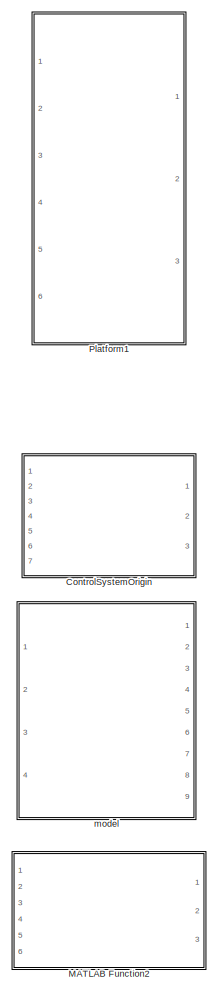
[diagram: root canvas - part 1/2, right side, full height]
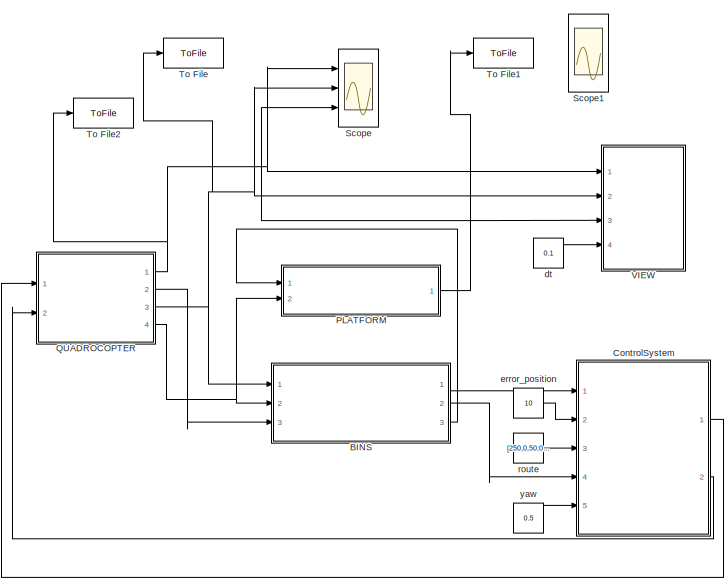
[diagram: root canvas - part 2/2, bottom left region]
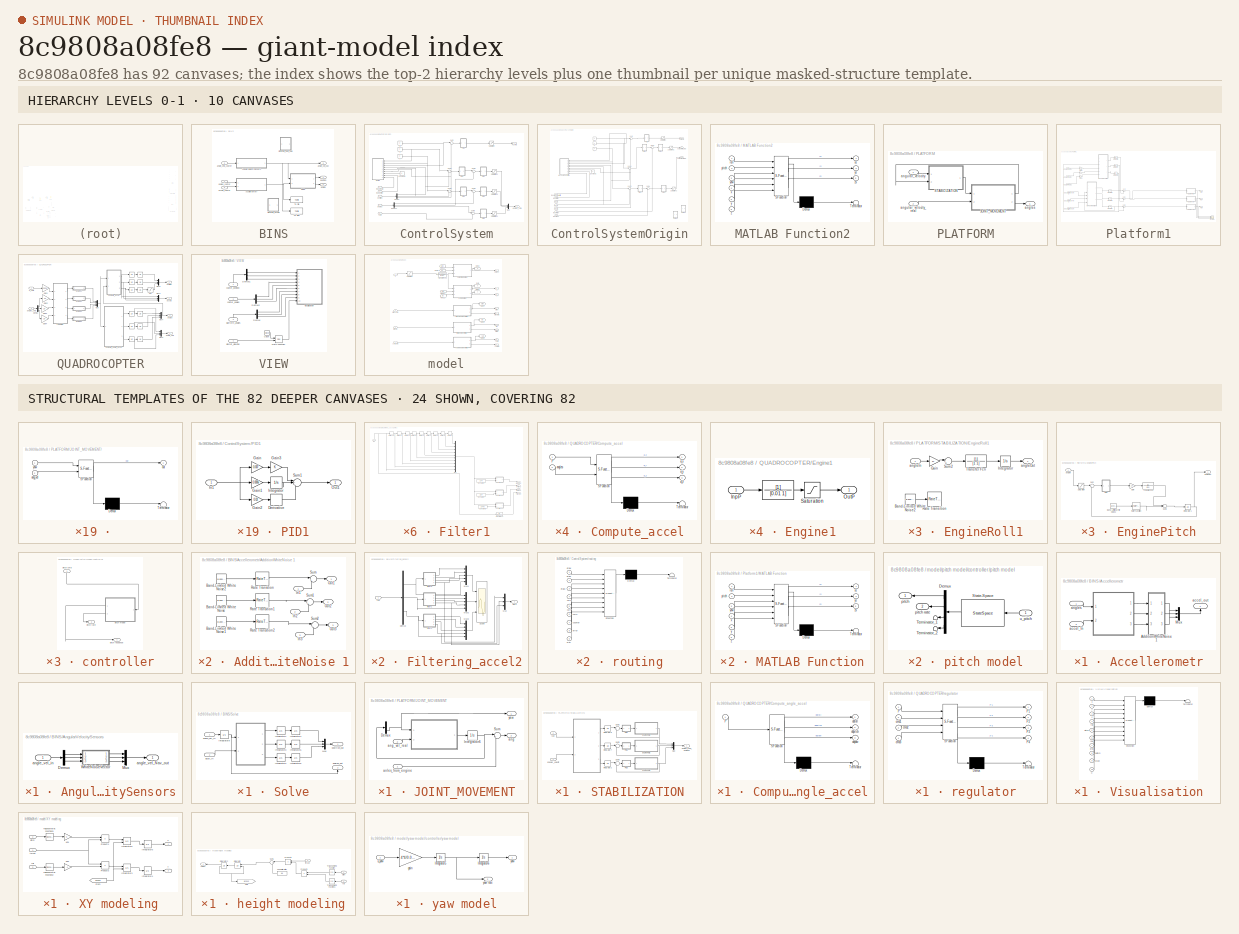
[diagram: thumbnail index - top-2 hierarchy levels (10 canvases) + 24 structural-template representatives of the remaining 82 canvases]
MODEL slx_8c9808a08fe8
KIND model
BLOCK [SubSystem] BINS
  FunctionWithSeparateData = off
  MaskHideContents = off
  MinAlgLoopOccurrences = off
  Opaque = off
  Ports = [3, 3]
  PropExecContextOutsideSubsystem = off
  RTWSystemCode = Auto
  RequestExecContextInheritance = off
BLOCK [SubSystem] BINS/Accellerometr
  FunctionWithSeparateData = off
  MaskHideContents = off
  MinAlgLoopOccurrences = off
  Opaque = off
  Ports = [2, 1]
  PropExecContextOutsideSubsystem = off
  RTWSystemCode = Auto
  RequestExecContextInheritance = off
BLOCK [SubSystem] BINS/Accellerometr/ 
  ErrorFcn = Stateflow.Translate.translate
  FunctionWithSeparateData = off
  MaskHideContents = off
  MinAlgLoopOccurrences = off
  Opaque = off
  PermitHierarchicalResolution = ExplicitOnly
  Ports = [2, 3]
  PropExecContextOutsideSubsystem = off
  RTWSystemCode = Auto
  RequestExecContextInheritance = off
  SFBlockType = MATLAB Function
  TreatAsAtomicUnit = on
BLOCK [Demux] BINS/Accellerometr/ / Demux 
  Outputs = 1
  Ports = [1, 1]
BLOCK [S-Function] BINS/Accellerometr/ / SFunction 
  EnableBusSupport = on
  FunctionName = sf_sfun
  PortCounts = [2 4]
  Ports = [2, 4]
  Tag = Stateflow S-Function lab2_next_level 10
BLOCK [Terminator] BINS/Accellerometr/ / Terminator 
BLOCK [Inport] BINS/Accellerometr/ /accel
  IconDisplay = Port number
  Port = 2
BLOCK [Inport] BINS/Accellerometr/ /angles
  IconDisplay = Port number
BLOCK [Outport] BINS/Accellerometr/ /xs
  IconDisplay = Port number
BLOCK [Outport] BINS/Accellerometr/ /ys
  IconDisplay = Port number
  Port = 2
BLOCK [Outport] BINS/Accellerometr/ /zs
  IconDisplay = Port number
  Port = 3
BLOCK [SubSystem] BINS/Accellerometr/AdditionWhiteNoise 1
  FunctionWithSeparateData = off
  MaskHideContents = off
  MinAlgLoopOccurrences = off
  Opaque = off
  Ports = [3, 3]
  PropExecContextOutsideSubsystem = off
  RTWSystemCode = Auto
  RequestExecContextInheritance = off
BLOCK [Reference] BINS/Accellerometr/AdditionWhiteNoise 1/Band-Limited White Noise  REF=simulink/Sources/Band-Limited
White Noise
  Cov = [1e-5]
  Ports = [0, 1]
  SourceBlock = simulink/Sources/Band-Limited\nWhite Noise
  SourceType = Band-Limited White Noise.
  Ts = 0.1
  VectorParams1D = on
  seed = [2323341]
BLOCK [Reference] BINS/Accellerometr/AdditionWhiteNoise 1/Band-Limited White Noise1  REF=simulink/Sources/Band-Limited
White Noise
  Cov = [1e-5]
  Ports = [0, 1]
  SourceBlock = simulink/Sources/Band-Limited\nWhite Noise
  SourceType = Band-Limited White Noise.
  Ts = 0.1
  VectorParams1D = on
  seed = [2324]
BLOCK [Reference] BINS/Accellerometr/AdditionWhiteNoise 1/Band-Limited White Noise2  REF=simulink/Sources/Band-Limited
White Noise
  Cov = [1e-5]
  Ports = [0, 1]
  SourceBlock = simulink/Sources/Band-Limited\nWhite Noise
  SourceType = Band-Limited White Noise.
  Ts = 0.1
  VectorParams1D = on
  seed = [23341]
BLOCK [Inport] BINS/Accellerometr/AdditionWhiteNoise 1/In1
  IconDisplay = Port number
BLOCK [Inport] BINS/Accellerometr/AdditionWhiteNoise 1/In2
  IconDisplay = Port number
  Port = 2
BLOCK [Inport] BINS/Accellerometr/AdditionWhiteNoise 1/In3
  IconDisplay = Port number
  Port = 3
BLOCK [Outport] BINS/Accellerometr/AdditionWhiteNoise 1/Out1
  IconDisplay = Port number
BLOCK [Outport] BINS/Accellerometr/AdditionWhiteNoise 1/Out2
  IconDisplay = Port number
  Port = 2
BLOCK [Outport] BINS/Accellerometr/AdditionWhiteNoise 1/Out3
  IconDisplay = Port number
  Port = 3
BLOCK [RateTransition] BINS/Accellerometr/AdditionWhiteNoise 1/Rate Transition
BLOCK [RateTransition] BINS/Accellerometr/AdditionWhiteNoise 1/Rate Transition1
BLOCK [RateTransition] BINS/Accellerometr/AdditionWhiteNoise 1/Rate Transition2
BLOCK [Sum] BINS/Accellerometr/AdditionWhiteNoise 1/Sum
  IconShape = round
  InputSameDT = off
  Inputs = |++
  OutDataTypeStr = Inherit: Inherit via internal rule
  Ports = [2, 1]
  SaturateOnIntegerOverflow = off
BLOCK [Sum] BINS/Accellerometr/AdditionWhiteNoise 1/Sum1
  IconShape = round
  InputSameDT = off
  Inputs = |++
  OutDataTypeStr = Inherit: Inherit via internal rule
  Ports = [2, 1]
  SaturateOnIntegerOverflow = off
BLOCK [Sum] BINS/Accellerometr/AdditionWhiteNoise 1/Sum2
  IconShape = round
  InputSameDT = off
  Inputs = |++
  OutDataTypeStr = Inherit: Inherit via internal rule
  Ports = [2, 1]
  SaturateOnIntegerOverflow = off
BLOCK [Mux] BINS/Accellerometr/Mux
  DisplayOption = bar
  Inputs = 3
  Ports = [3, 1]
BLOCK [Inport] BINS/Accellerometr/accel_In
  IconDisplay = Port number
  Port = 2
BLOCK [Outport] BINS/Accellerometr/accel_out
  IconDisplay = Port number
BLOCK [Inport] BINS/Accellerometr/angles
  IconDisplay = Port number
BLOCK [SubSystem] BINS/AngularVelocitySensors
  FunctionWithSeparateData = off
  MaskHideContents = off
  MinAlgLoopOccurrences = off
  Opaque = off
  Ports = [1, 1]
  PropExecContextOutsideSubsystem = off
  RTWSystemCode = Auto
  RequestExecContextInheritance = off
BLOCK [Demux] BINS/AngularVelocitySensors/Demux
  DisplayOption = bar
  Outputs = 3
  Ports = [1, 3]
BLOCK [Mux] BINS/AngularVelocitySensors/Mux
  DisplayOption = bar
  Inputs = 3
  Ports = [3, 1]
BLOCK [SubSystem] BINS/AngularVelocitySensors/WhiteNoiseVector 
  FunctionWithSeparateData = off
  MaskHideContents = off
  MinAlgLoopOccurrences = off
  Opaque = off
  Ports = [3, 3]
  PropExecContextOutsideSubsystem = off
  RTWSystemCode = Auto
  RequestExecContextInheritance = off
BLOCK [Reference] BINS/AngularVelocitySensors/WhiteNoiseVector /Band-Limited White Noise  REF=simulink/Sources/Band-Limited
White Noise
  Cov = [1e-7]
  Ports = [0, 1]
  SourceBlock = simulink/Sources/Band-Limited\nWhite Noise
  SourceType = Band-Limited White Noise.
  Ts = 0.1
  VectorParams1D = on
  seed = [23361]
BLOCK [Reference] BINS/AngularVelocitySensors/WhiteNoiseVector /Band-Limited White Noise1  REF=simulink/Sources/Band-Limited
White Noise
  Cov = [1e-7]
  Ports = [0, 1]
  SourceBlock = simulink/Sources/Band-Limited\nWhite Noise
  SourceType = Band-Limited White Noise.
  Ts = 0.1
  VectorParams1D = on
  seed = [13341]
BLOCK [Reference] BINS/AngularVelocitySensors/WhiteNoiseVector /Band-Limited White Noise2  REF=simulink/Sources/Band-Limited
White Noise
  Cov = [1e-7]
  Ports = [0, 1]
  SourceBlock = simulink/Sources/Band-Limited\nWhite Noise
  SourceType = Band-Limited White Noise.
  Ts = 0.1
  VectorParams1D = on
  seed = [21341]
BLOCK [Inport] BINS/AngularVelocitySensors/WhiteNoiseVector /In1
  IconDisplay = Port number
BLOCK [Inport] BINS/AngularVelocitySensors/WhiteNoiseVector /In2
  IconDisplay = Port number
  Port = 2
BLOCK [Inport] BINS/AngularVelocitySensors/WhiteNoiseVector /In3
  IconDisplay = Port number
  Port = 3
BLOCK [Outport] BINS/AngularVelocitySensors/WhiteNoiseVector /Out1
  IconDisplay = Port number
BLOCK [Outport] BINS/AngularVelocitySensors/WhiteNoiseVector /Out2
  IconDisplay = Port number
  Port = 2
BLOCK [Outport] BINS/AngularVelocitySensors/WhiteNoiseVector /Out3
  IconDisplay = Port number
  Port = 3
BLOCK [RateTransition] BINS/AngularVelocitySensors/WhiteNoiseVector /Rate Transition
BLOCK [RateTransition] BINS/AngularVelocitySensors/WhiteNoiseVector /Rate Transition1
BLOCK [RateTransition] BINS/AngularVelocitySensors/WhiteNoiseVector /Rate Transition2
BLOCK [Sum] BINS/AngularVelocitySensors/WhiteNoiseVector /Sum
  IconShape = round
  InputSameDT = off
  Inputs = |++
  OutDataTypeStr = Inherit: Inherit via internal rule
  Ports = [2, 1]
  SaturateOnIntegerOverflow = off
BLOCK [Sum] BINS/AngularVelocitySensors/WhiteNoiseVector /Sum1
  IconShape = round
  InputSameDT = off
  Inputs = |++
  OutDataTypeStr = Inherit: Inherit via internal rule
  Ports = [2, 1]
  SaturateOnIntegerOverflow = off
BLOCK [Sum] BINS/AngularVelocitySensors/WhiteNoiseVector /Sum2
  IconShape = round
  InputSameDT = off
  Inputs = |++
  OutDataTypeStr = Inherit: Inherit via internal rule
  Ports = [2, 1]
  SaturateOnIntegerOverflow = off
BLOCK [Outport] BINS/AngularVelocitySensors/angle_vel_Nav_out
  IconDisplay = Port number
BLOCK [Inport] BINS/AngularVelocitySensors/angle_vel_in
  IconDisplay = Port number
BLOCK [SubSystem] BINS/Filtering_accel2
  FunctionWithSeparateData = off
  MaskHideContents = off
  MinAlgLoopOccurrences = off
  Opaque = off
  Ports = [1, 1]
  PropExecContextOutsideSubsystem = off
  RTWSystemCode = Auto
  RequestExecContextInheritance = off
BLOCK [Demux] BINS/Filtering_accel2/Demux
  DisplayOption = bar
  Outputs = 3
  Ports = [1, 3]
BLOCK [SubSystem] BINS/Filtering_accel2/Filter1
  FunctionWithSeparateData = off
  MaskHideContents = off
  MinAlgLoopOccurrences = off
  Opaque = off
  Ports = [1, 4]
  PropExecContextOutsideSubsystem = off
  RTWSystemCode = Auto
  RequestExecContextInheritance = off
BLOCK [Constant] BINS/Filtering_accel2/Filter1/Constant1
  Value = 2.74
BLOCK [Constant] BINS/Filtering_accel2/Filter1/Constant2
  Value = 1.57
  VectorParams1D = off
BLOCK [Constant] BINS/Filtering_accel2/Filter1/Constant3
  Value = 2.445
BLOCK [Delay] BINS/Filtering_accel2/Filter1/Delay10
  DelayLength = 1
  InputPortMap = u0
  Ports = [1, 1]
BLOCK [Delay] BINS/Filtering_accel2/Filter1/Delay11
  DelayLength = 1
  InputPortMap = u0
  Ports = [1, 1]
BLOCK [Delay] BINS/Filtering_accel2/Filter1/Delay12
  DelayLength = 1
  InputPortMap = u0
  Ports = [1, 1]
BLOCK [Delay] BINS/Filtering_accel2/Filter1/Delay3
  DelayLength = 1
  InputPortMap = u0
  Ports = [1, 1]
BLOCK [Delay] BINS/Filtering_accel2/Filter1/Delay5
  DelayLength = 1
  InputPortMap = u0
  Ports = [1, 1]
BLOCK [Delay] BINS/Filtering_accel2/Filter1/Delay6
  DelayLength = 1
  InputPortMap = u0
  Ports = [1, 1]
BLOCK [Delay] BINS/Filtering_accel2/Filter1/Delay7
  DelayLength = 1
  InputPortMap = u0
  Ports = [1, 1]
BLOCK [Delay] BINS/Filtering_accel2/Filter1/Delay8
  DelayLength = 1
  InputPortMap = u0
  Ports = [1, 1]
BLOCK [Delay] BINS/Filtering_accel2/Filter1/Delay9
  DelayLength = 1
  InputPortMap = u0
  Ports = [1, 1]
BLOCK [Inport] BINS/Filtering_accel2/Filter1/In1
  IconDisplay = Port number
BLOCK [Mux] BINS/Filtering_accel2/Filter1/Mux
  DisplayOption = bar
  Inputs = 10
  Ports = [10, 1]
BLOCK [Outport] BINS/Filtering_accel2/Filter1/Transfer
  IconDisplay = Port number
  Port = 4
BLOCK [TransferFcn] BINS/Filtering_accel2/Filter1/Transfer Fcn
  Denominator = [0.01 1]
BLOCK [SubSystem] BINS/Filtering_accel2/Filter1/w1
  ErrorFcn = Stateflow.Translate.translate
  FunctionWithSeparateData = off
  MaskHideContents = off
  MinAlgLoopOccurrences = off
  Opaque = off
  PermitHierarchicalResolution = ExplicitOnly
  Ports = [2, 1]
  PropExecContextOutsideSubsystem = off
  RTWSystemCode = Auto
  RequestExecContextInheritance = off
  SFBlockType = MATLAB Function
  TreatAsAtomicUnit = on
BLOCK [Demux] BINS/Filtering_accel2/Filter1/w1/ Demux 
  Outputs = 1
  Ports = [1, 1]
BLOCK [S-Function] BINS/Filtering_accel2/Filter1/w1/ SFunction 
  EnableBusSupport = on
  FunctionName = sf_sfun
  PortCounts = [2 2]
  Ports = [2, 2]
  Tag = Stateflow S-Function lab2_next_level 41
BLOCK [Terminator] BINS/Filtering_accel2/Filter1/w1/ Terminator 
BLOCK [Inport] BINS/Filtering_accel2/Filter1/w1/signal
  IconDisplay = Port number
BLOCK [Inport] BINS/Filtering_accel2/Filter1/w1/wc
  IconDisplay = Port number
  Port = 2
BLOCK [Outport] BINS/Filtering_accel2/Filter1/w1/y
  IconDisplay = Port number
BLOCK [SubSystem] BINS/Filtering_accel2/Filter1/wH
  ErrorFcn = Stateflow.Translate.translate
  FunctionWithSeparateData = off
  MaskHideContents = off
  MinAlgLoopOccurrences = off
  Opaque = off
  PermitHierarchicalResolution = ExplicitOnly
  Ports = [2, 1]
  PropExecContextOutsideSubsystem = off
  RTWSystemCode = Auto
  RequestExecContextInheritance = off
  SFBlockType = MATLAB Function
  TreatAsAtomicUnit = on
BLOCK [Demux] BINS/Filtering_accel2/Filter1/wH/ Demux 
  Outputs = 1
  Ports = [1, 1]
BLOCK [S-Function] BINS/Filtering_accel2/Filter1/wH/ SFunction 
  EnableBusSupport = on
  FunctionName = sf_sfun
  PortCounts = [2 2]
  Ports = [2, 2]
  Tag = Stateflow S-Function lab2_next_level 42
BLOCK [Terminator] BINS/Filtering_accel2/Filter1/wH/ Terminator 
BLOCK [Inport] BINS/Filtering_accel2/Filter1/wH/signal
  IconDisplay = Port number
BLOCK [Inport] BINS/Filtering_accel2/Filter1/wH/wc
  IconDisplay = Port number
  Port = 2
BLOCK [Outport] BINS/Filtering_accel2/Filter1/wH/y
  IconDisplay = Port number
BLOCK [Outport] BINS/Filtering_accel2/Filter1/wHann
  IconDisplay = Port number
  Port = 3
BLOCK [Outport] BINS/Filtering_accel2/Filter1/wLinear 
  IconDisplay = Port number
BLOCK [SubSystem] BINS/Filtering_accel2/Filter1/wT
  ErrorFcn = Stateflow.Translate.translate
  FunctionWithSeparateData = off
  MaskHideContents = off
  MinAlgLoopOccurrences = off
  Opaque = off
  PermitHierarchicalResolution = ExplicitOnly
  Ports = [2, 1]
  PropExecContextOutsideSubsystem = off
  RTWSystemCode = Auto
  RequestExecContextInheritance = off
  SFBlockType = MATLAB Function
  TreatAsAtomicUnit = on
BLOCK [Demux] BINS/Filtering_accel2/Filter1/wT/ Demux 
  Outputs = 1
  Ports = [1, 1]
BLOCK [S-Function] BINS/Filtering_accel2/Filter1/wT/ SFunction 
  EnableBusSupport = on
  FunctionName = sf_sfun
  PortCounts = [2 2]
  Ports = [2, 2]
  Tag = Stateflow S-Function lab2_next_level 43
BLOCK [Terminator] BINS/Filtering_accel2/Filter1/wT/ Terminator 
BLOCK [Inport] BINS/Filtering_accel2/Filter1/wT/signal
  IconDisplay = Port number
BLOCK [Inport] BINS/Filtering_accel2/Filter1/wT/wc
  IconDisplay = Port number
  Port = 2
BLOCK [Outport] BINS/Filtering_accel2/Filter1/wT/y
  IconDisplay = Port number
BLOCK [Outport] BINS/Filtering_accel2/Filter1/wTriang
  IconDisplay = Port number
  Port = 2
BLOCK [SubSystem] BINS/Filtering_accel2/Filter2
  FunctionWithSeparateData = off
  MaskHideContents = off
  MinAlgLoopOccurrences = off
  Opaque = off
  Ports = [1, 4]
  PropExecContextOutsideSubsystem = off
  RTWSystemCode = Auto
  RequestExecContextInheritance = off
BLOCK [Constant] BINS/Filtering_accel2/Filter2/Constant1
  Value = 2.74
BLOCK [Constant] BINS/Filtering_accel2/Filter2/Constant2
  Value = 1.57
  VectorParams1D = off
BLOCK [Constant] BINS/Filtering_accel2/Filter2/Constant3
  Value = 2.445
BLOCK [Delay] BINS/Filtering_accel2/Filter2/Delay10
  DelayLength = 1
  InputPortMap = u0
  Ports = [1, 1]
BLOCK [Delay] BINS/Filtering_accel2/Filter2/Delay11
  DelayLength = 1
  InputPortMap = u0
  Ports = [1, 1]
BLOCK [Delay] BINS/Filtering_accel2/Filter2/Delay12
  DelayLength = 1
  InputPortMap = u0
  Ports = [1, 1]
BLOCK [Delay] BINS/Filtering_accel2/Filter2/Delay3
  DelayLength = 1
  InputPortMap = u0
  Ports = [1, 1]
BLOCK [Delay] BINS/Filtering_accel2/Filter2/Delay5
  DelayLength = 1
  InputPortMap = u0
  Ports = [1, 1]
BLOCK [Delay] BINS/Filtering_accel2/Filter2/Delay6
  DelayLength = 1
  InputPortMap = u0
  Ports = [1, 1]
BLOCK [Delay] BINS/Filtering_accel2/Filter2/Delay7
  DelayLength = 1
  InputPortMap = u0
  Ports = [1, 1]
BLOCK [Delay] BINS/Filtering_accel2/Filter2/Delay8
  DelayLength = 1
  InputPortMap = u0
  Ports = [1, 1]
BLOCK [Delay] BINS/Filtering_accel2/Filter2/Delay9
  DelayLength = 1
  InputPortMap = u0
  Ports = [1, 1]
BLOCK [Inport] BINS/Filtering_accel2/Filter2/In1
  IconDisplay = Port number
BLOCK [Mux] BINS/Filtering_accel2/Filter2/Mux
  DisplayOption = bar
  Inputs = 10
  Ports = [10, 1]
BLOCK [Outport] BINS/Filtering_accel2/Filter2/Transfer
  IconDisplay = Port number
  Port = 4
BLOCK [TransferFcn] BINS/Filtering_accel2/Filter2/Transfer Fcn
  Denominator = [0.01 1]
BLOCK [SubSystem] BINS/Filtering_accel2/Filter2/w1
  ErrorFcn = Stateflow.Translate.translate
  FunctionWithSeparateData = off
  MaskHideContents = off
  MinAlgLoopOccurrences = off
  Opaque = off
  PermitHierarchicalResolution = ExplicitOnly
  Ports = [2, 1]
  PropExecContextOutsideSubsystem = off
  RTWSystemCode = Auto
  RequestExecContextInheritance = off
  SFBlockType = MATLAB Function
  TreatAsAtomicUnit = on
BLOCK [Demux] BINS/Filtering_accel2/Filter2/w1/ Demux 
  Outputs = 1
  Ports = [1, 1]
BLOCK [S-Function] BINS/Filtering_accel2/Filter2/w1/ SFunction 
  EnableBusSupport = on
  FunctionName = sf_sfun
  PortCounts = [2 2]
  Ports = [2, 2]
  Tag = Stateflow S-Function lab2_next_level 44
BLOCK [Terminator] BINS/Filtering_accel2/Filter2/w1/ Terminator 
BLOCK [Inport] BINS/Filtering_accel2/Filter2/w1/signal
  IconDisplay = Port number
BLOCK [Inport] BINS/Filtering_accel2/Filter2/w1/wc
  IconDisplay = Port number
  Port = 2
BLOCK [Outport] BINS/Filtering_accel2/Filter2/w1/y
  IconDisplay = Port number
BLOCK [SubSystem] BINS/Filtering_accel2/Filter2/wH
  ErrorFcn = Stateflow.Translate.translate
  FunctionWithSeparateData = off
  MaskHideContents = off
  MinAlgLoopOccurrences = off
  Opaque = off
  PermitHierarchicalResolution = ExplicitOnly
  Ports = [2, 1]
  PropExecContextOutsideSubsystem = off
  RTWSystemCode = Auto
  RequestExecContextInheritance = off
  SFBlockType = MATLAB Function
  TreatAsAtomicUnit = on
BLOCK [Demux] BINS/Filtering_accel2/Filter2/wH/ Demux 
  Outputs = 1
  Ports = [1, 1]
BLOCK [S-Function] BINS/Filtering_accel2/Filter2/wH/ SFunction 
  EnableBusSupport = on
  FunctionName = sf_sfun
  PortCounts = [2 2]
  Ports = [2, 2]
  Tag = Stateflow S-Function lab2_next_level 45
BLOCK [Terminator] BINS/Filtering_accel2/Filter2/wH/ Terminator 
BLOCK [Inport] BINS/Filtering_accel2/Filter2/wH/signal
  IconDisplay = Port number
BLOCK [Inport] BINS/Filtering_accel2/Filter2/wH/wc
  IconDisplay = Port number
  Port = 2
BLOCK [Outport] BINS/Filtering_accel2/Filter2/wH/y
  IconDisplay = Port number
BLOCK [Outport] BINS/Filtering_accel2/Filter2/wHann
  IconDisplay = Port number
  Port = 3
BLOCK [Outport] BINS/Filtering_accel2/Filter2/wLinear 
  IconDisplay = Port number
BLOCK [SubSystem] BINS/Filtering_accel2/Filter2/wT
  ErrorFcn = Stateflow.Translate.translate
  FunctionWithSeparateData = off
  MaskHideContents = off
  MinAlgLoopOccurrences = off
  Opaque = off
  PermitHierarchicalResolution = ExplicitOnly
  Ports = [2, 1]
  PropExecContextOutsideSubsystem = off
  RTWSystemCode = Auto
  RequestExecContextInheritance = off
  SFBlockType = MATLAB Function
  TreatAsAtomicUnit = on
BLOCK [Demux] BINS/Filtering_accel2/Filter2/wT/ Demux 
  Outputs = 1
  Ports = [1, 1]
BLOCK [S-Function] BINS/Filtering_accel2/Filter2/wT/ SFunction 
  EnableBusSupport = on
  FunctionName = sf_sfun
  PortCounts = [2 2]
  Ports = [2, 2]
  Tag = Stateflow S-Function lab2_next_level 46
BLOCK [Terminator] BINS/Filtering_accel2/Filter2/wT/ Terminator 
BLOCK [Inport] BINS/Filtering_accel2/Filter2/wT/signal
  IconDisplay = Port number
BLOCK [Inport] BINS/Filtering_accel2/Filter2/wT/wc
  IconDisplay = Port number
  Port = 2
BLOCK [Outport] BINS/Filtering_accel2/Filter2/wT/y
  IconDisplay = Port number
BLOCK [Outport] BINS/Filtering_accel2/Filter2/wTriang
  IconDisplay = Port number
  Port = 2
BLOCK [SubSystem] BINS/Filtering_accel2/Filter3
  FunctionWithSeparateData = off
  MaskHideContents = off
  MinAlgLoopOccurrences = off
  Opaque = off
  Ports = [1, 4]
  PropExecContextOutsideSubsystem = off
  RTWSystemCode = Auto
  RequestExecContextInheritance = off
BLOCK [Constant] BINS/Filtering_accel2/Filter3/Constant1
  Value = 2.74
BLOCK [Constant] BINS/Filtering_accel2/Filter3/Constant2
  Value = 1.57
  VectorParams1D = off
BLOCK [Constant] BINS/Filtering_accel2/Filter3/Constant3
  Value = 2.445
BLOCK [Delay] BINS/Filtering_accel2/Filter3/Delay10
  DelayLength = 1
  InputPortMap = u0
  Ports = [1, 1]
BLOCK [Delay] BINS/Filtering_accel2/Filter3/Delay11
  DelayLength = 1
  InputPortMap = u0
  Ports = [1, 1]
BLOCK [Delay] BINS/Filtering_accel2/Filter3/Delay12
  DelayLength = 1
  InputPortMap = u0
  Ports = [1, 1]
BLOCK [Delay] BINS/Filtering_accel2/Filter3/Delay3
  DelayLength = 1
  InputPortMap = u0
  Ports = [1, 1]
BLOCK [Delay] BINS/Filtering_accel2/Filter3/Delay5
  DelayLength = 1
  InputPortMap = u0
  Ports = [1, 1]
BLOCK [Delay] BINS/Filtering_accel2/Filter3/Delay6
  DelayLength = 1
  InputPortMap = u0
  Ports = [1, 1]
BLOCK [Delay] BINS/Filtering_accel2/Filter3/Delay7
  DelayLength = 1
  InputPortMap = u0
  Ports = [1, 1]
BLOCK [Delay] BINS/Filtering_accel2/Filter3/Delay8
  DelayLength = 1
  InputPortMap = u0
  Ports = [1, 1]
BLOCK [Delay] BINS/Filtering_accel2/Filter3/Delay9
  DelayLength = 1
  InputPortMap = u0
  Ports = [1, 1]
BLOCK [Inport] BINS/Filtering_accel2/Filter3/In1
  IconDisplay = Port number
BLOCK [Mux] BINS/Filtering_accel2/Filter3/Mux
  DisplayOption = bar
  Inputs = 10
  Ports = [10, 1]
BLOCK [Outport] BINS/Filtering_accel2/Filter3/Transfer
  IconDisplay = Port number
  Port = 4
BLOCK [TransferFcn] BINS/Filtering_accel2/Filter3/Transfer Fcn
  Denominator = [0.01 1]
BLOCK [SubSystem] BINS/Filtering_accel2/Filter3/w1
  ErrorFcn = Stateflow.Translate.translate
  FunctionWithSeparateData = off
  MaskHideContents = off
  MinAlgLoopOccurrences = off
  Opaque = off
  PermitHierarchicalResolution = ExplicitOnly
  Ports = [2, 1]
  PropExecContextOutsideSubsystem = off
  RTWSystemCode = Auto
  RequestExecContextInheritance = off
  SFBlockType = MATLAB Function
  TreatAsAtomicUnit = on
BLOCK [Demux] BINS/Filtering_accel2/Filter3/w1/ Demux 
  Outputs = 1
  Ports = [1, 1]
BLOCK [S-Function] BINS/Filtering_accel2/Filter3/w1/ SFunction 
  EnableBusSupport = on
  FunctionName = sf_sfun
  PortCounts = [2 2]
  Ports = [2, 2]
  Tag = Stateflow S-Function lab2_next_level 47
BLOCK [Terminator] BINS/Filtering_accel2/Filter3/w1/ Terminator 
BLOCK [Inport] BINS/Filtering_accel2/Filter3/w1/signal
  IconDisplay = Port number
BLOCK [Inport] BINS/Filtering_accel2/Filter3/w1/wc
  IconDisplay = Port number
  Port = 2
BLOCK [Outport] BINS/Filtering_accel2/Filter3/w1/y
  IconDisplay = Port number
BLOCK [SubSystem] BINS/Filtering_accel2/Filter3/wH
  ErrorFcn = Stateflow.Translate.translate
  FunctionWithSeparateData = off
  MaskHideContents = off
  MinAlgLoopOccurrences = off
  Opaque = off
  PermitHierarchicalResolution = ExplicitOnly
  Ports = [2, 1]
  PropExecContextOutsideSubsystem = off
  RTWSystemCode = Auto
  RequestExecContextInheritance = off
  SFBlockType = MATLAB Function
  TreatAsAtomicUnit = on
BLOCK [Demux] BINS/Filtering_accel2/Filter3/wH/ Demux 
  Outputs = 1
  Ports = [1, 1]
BLOCK [S-Function] BINS/Filtering_accel2/Filter3/wH/ SFunction 
  EnableBusSupport = on
  FunctionName = sf_sfun
  PortCounts = [2 2]
  Ports = [2, 2]
  Tag = Stateflow S-Function lab2_next_level 48
BLOCK [Terminator] BINS/Filtering_accel2/Filter3/wH/ Terminator 
BLOCK [Inport] BINS/Filtering_accel2/Filter3/wH/signal
  IconDisplay = Port number
BLOCK [Inport] BINS/Filtering_accel2/Filter3/wH/wc
  IconDisplay = Port number
  Port = 2
BLOCK [Outport] BINS/Filtering_accel2/Filter3/wH/y
  IconDisplay = Port number
BLOCK [Outport] BINS/Filtering_accel2/Filter3/wHann
  IconDisplay = Port number
  Port = 3
BLOCK [Outport] BINS/Filtering_accel2/Filter3/wLinear 
  IconDisplay = Port number
BLOCK [SubSystem] BINS/Filtering_accel2/Filter3/wT
  ErrorFcn = Stateflow.Translate.translate
  FunctionWithSeparateData = off
  MaskHideContents = off
  MinAlgLoopOccurrences = off
  Opaque = off
  PermitHierarchicalResolution = ExplicitOnly
  Ports = [2, 1]
  PropExecContextOutsideSubsystem = off
  RTWSystemCode = Auto
  RequestExecContextInheritance = off
  SFBlockType = MATLAB Function
  TreatAsAtomicUnit = on
BLOCK [Demux] BINS/Filtering_accel2/Filter3/wT/ Demux 
  Outputs = 1
  Ports = [1, 1]
BLOCK [S-Function] BINS/Filtering_accel2/Filter3/wT/ SFunction 
  EnableBusSupport = on
  FunctionName = sf_sfun
  PortCounts = [2 2]
  Ports = [2, 2]
  Tag = Stateflow S-Function lab2_next_level 49
BLOCK [Terminator] BINS/Filtering_accel2/Filter3/wT/ Terminator 
BLOCK [Inport] BINS/Filtering_accel2/Filter3/wT/signal
  IconDisplay = Port number
BLOCK [Inport] BINS/Filtering_accel2/Filter3/wT/wc
  IconDisplay = Port number
  Port = 2
BLOCK [Outport] BINS/Filtering_accel2/Filter3/wT/y
  IconDisplay = Port number
BLOCK [Outport] BINS/Filtering_accel2/Filter3/wTriang
  IconDisplay = Port number
  Port = 2
BLOCK [Inport] BINS/Filtering_accel2/In1
  IconDisplay = Port number
BLOCK [Mux] BINS/Filtering_accel2/Mux
  DisplayOption = bar
  Inputs = 3
  Ports = [3, 1]
BLOCK [Mux] BINS/Filtering_accel2/Mux1
  DisplayOption = bar
  Inputs = 5
  Ports = [5, 1]
BLOCK [Mux] BINS/Filtering_accel2/Mux2
  DisplayOption = bar
  Inputs = 5
  Ports = [5, 1]
BLOCK [Mux] BINS/Filtering_accel2/Mux3
  DisplayOption = bar
  Inputs = 5
  Ports = [5, 1]
BLOCK [Outport] BINS/Filtering_accel2/Out1
  IconDisplay = Port number
BLOCK [Scope] BINS/Filtering_accel2/Scope
  DataFormat = StructureWithTime
  Floating = off
  LegendLocations = 0.90296     0.82302     0.07489     0.12224\n0.90296     0.51227     0.07489     0.12224\n0.90296     0.20299     0.07489     0.12224
  LimitDataPoints = off
  NumInputPorts = 3
  Ports = [3]
  SampleTime = 0
  SaveName = ScopeData2
  ShowLegends = on
  TimeRange = 0.07686395080708053
  YMax = 0.074~-0.213~-0.0019
  YMin = 0.069~-0.221~-0.00215
  ZoomMode = xonly
BLOCK [SubSystem] BINS/Filtering_ang_vel2
  FunctionWithSeparateData = off
  MaskHideContents = off
  MinAlgLoopOccurrences = off
  Opaque = off
  Ports = [1, 1]
  PropExecContextOutsideSubsystem = off
  RTWSystemCode = Auto
  RequestExecContextInheritance = off
BLOCK [Demux] BINS/Filtering_ang_vel2/Demux
  DisplayOption = bar
  Outputs = 3
  Ports = [1, 3]
BLOCK [SubSystem] BINS/Filtering_ang_vel2/Filter
  FunctionWithSeparateData = off
  MaskHideContents = off
  MinAlgLoopOccurrences = off
  Opaque = off
  Ports = [1, 4]
  PropExecContextOutsideSubsystem = off
  RTWSystemCode = Auto
  RequestExecContextInheritance = off
BLOCK [Constant] BINS/Filtering_ang_vel2/Filter/Constant1
  Value = 2.7465
BLOCK [Constant] BINS/Filtering_ang_vel2/Filter/Constant2
  Value = 2.463
BLOCK [Constant] BINS/Filtering_ang_vel2/Filter/Constant3
  Value = 2.450
BLOCK [Delay] BINS/Filtering_ang_vel2/Filter/Delay10
  DelayLength = 1
  InputPortMap = u0
  Ports = [1, 1]
BLOCK [Delay] BINS/Filtering_ang_vel2/Filter/Delay11
  DelayLength = 1
  InputPortMap = u0
  Ports = [1, 1]
BLOCK [Delay] BINS/Filtering_ang_vel2/Filter/Delay12
  DelayLength = 1
  InputPortMap = u0
  Ports = [1, 1]
BLOCK [Delay] BINS/Filtering_ang_vel2/Filter/Delay3
  DelayLength = 1
  InputPortMap = u0
  Ports = [1, 1]
BLOCK [Delay] BINS/Filtering_ang_vel2/Filter/Delay5
  DelayLength = 1
  InputPortMap = u0
  Ports = [1, 1]
BLOCK [Delay] BINS/Filtering_ang_vel2/Filter/Delay6
  DelayLength = 1
  InputPortMap = u0
  Ports = [1, 1]
BLOCK [Delay] BINS/Filtering_ang_vel2/Filter/Delay7
  DelayLength = 1
  InputPortMap = u0
  Ports = [1, 1]
BLOCK [Delay] BINS/Filtering_ang_vel2/Filter/Delay8
  DelayLength = 1
  InputPortMap = u0
  Ports = [1, 1]
BLOCK [Delay] BINS/Filtering_ang_vel2/Filter/Delay9
  DelayLength = 1
  InputPortMap = u0
  Ports = [1, 1]
BLOCK [Inport] BINS/Filtering_ang_vel2/Filter/In1
  IconDisplay = Port number
BLOCK [Mux] BINS/Filtering_ang_vel2/Filter/Mux
  DisplayOption = bar
  Inputs = 10
  Ports = [10, 1]
BLOCK [Outport] BINS/Filtering_ang_vel2/Filter/Transfer
  IconDisplay = Port number
  Port = 4
BLOCK [TransferFcn] BINS/Filtering_ang_vel2/Filter/Transfer Fcn
  Denominator = [0.05 1]
BLOCK [SubSystem] BINS/Filtering_ang_vel2/Filter/w1
  ErrorFcn = Stateflow.Translate.translate
  FunctionWithSeparateData = off
  MaskHideContents = off
  MinAlgLoopOccurrences = off
  Opaque = off
  PermitHierarchicalResolution = ExplicitOnly
  Ports = [2, 1]
  PropExecContextOutsideSubsystem = off
  RTWSystemCode = Auto
  RequestExecContextInheritance = off
  SFBlockType = MATLAB Function
  TreatAsAtomicUnit = on
BLOCK [Demux] BINS/Filtering_ang_vel2/Filter/w1/ Demux 
  Outputs = 1
  Ports = [1, 1]
BLOCK [S-Function] BINS/Filtering_ang_vel2/Filter/w1/ SFunction 
  EnableBusSupport = on
  FunctionName = sf_sfun
  PortCounts = [2 2]
  Ports = [2, 2]
  Tag = Stateflow S-Function lab2_next_level 26
BLOCK [Terminator] BINS/Filtering_ang_vel2/Filter/w1/ Terminator 
BLOCK [Inport] BINS/Filtering_ang_vel2/Filter/w1/signal
  IconDisplay = Port number
BLOCK [Inport] BINS/Filtering_ang_vel2/Filter/w1/wc
  IconDisplay = Port number
  Port = 2
BLOCK [Outport] BINS/Filtering_ang_vel2/Filter/w1/y
  IconDisplay = Port number
BLOCK [SubSystem] BINS/Filtering_ang_vel2/Filter/wH
  ErrorFcn = Stateflow.Translate.translate
  FunctionWithSeparateData = off
  MaskHideContents = off
  MinAlgLoopOccurrences = off
  Opaque = off
  PermitHierarchicalResolution = ExplicitOnly
  Ports = [2, 1]
  PropExecContextOutsideSubsystem = off
  RTWSystemCode = Auto
  RequestExecContextInheritance = off
  SFBlockType = MATLAB Function
  TreatAsAtomicUnit = on
BLOCK [Demux] BINS/Filtering_ang_vel2/Filter/wH/ Demux 
  Outputs = 1
  Ports = [1, 1]
BLOCK [S-Function] BINS/Filtering_ang_vel2/Filter/wH/ SFunction 
  EnableBusSupport = on
  FunctionName = sf_sfun
  PortCounts = [2 2]
  Ports = [2, 2]
  Tag = Stateflow S-Function lab2_next_level 27
BLOCK [Terminator] BINS/Filtering_ang_vel2/Filter/wH/ Terminator 
BLOCK [Inport] BINS/Filtering_ang_vel2/Filter/wH/signal
  IconDisplay = Port number
BLOCK [Inport] BINS/Filtering_ang_vel2/Filter/wH/wc
  IconDisplay = Port number
  Port = 2
BLOCK [Outport] BINS/Filtering_ang_vel2/Filter/wH/y
  IconDisplay = Port number
BLOCK [Outport] BINS/Filtering_ang_vel2/Filter/wHann
  IconDisplay = Port number
  Port = 3
BLOCK [Outport] BINS/Filtering_ang_vel2/Filter/wLinear 
  IconDisplay = Port number
BLOCK [SubSystem] BINS/Filtering_ang_vel2/Filter/wT
  ErrorFcn = Stateflow.Translate.translate
  FunctionWithSeparateData = off
  MaskHideContents = off
  MinAlgLoopOccurrences = off
  Opaque = off
  PermitHierarchicalResolution = ExplicitOnly
  Ports = [2, 1]
  PropExecContextOutsideSubsystem = off
  RTWSystemCode = Auto
  RequestExecContextInheritance = off
  SFBlockType = MATLAB Function
  TreatAsAtomicUnit = on
BLOCK [Demux] BINS/Filtering_ang_vel2/Filter/wT/ Demux 
  Outputs = 1
  Ports = [1, 1]
BLOCK [S-Function] BINS/Filtering_ang_vel2/Filter/wT/ SFunction 
  EnableBusSupport = on
  FunctionName = sf_sfun
  PortCounts = [2 2]
  Ports = [2, 2]
  Tag = Stateflow S-Function lab2_next_level 28
BLOCK [Terminator] BINS/Filtering_ang_vel2/Filter/wT/ Terminator 
BLOCK [Inport] BINS/Filtering_ang_vel2/Filter/wT/signal
  IconDisplay = Port number
BLOCK [Inport] BINS/Filtering_ang_vel2/Filter/wT/wc
  IconDisplay = Port number
  Port = 2
BLOCK [Outport] BINS/Filtering_ang_vel2/Filter/wT/y
  IconDisplay = Port number
BLOCK [Outport] BINS/Filtering_ang_vel2/Filter/wTriang
  IconDisplay = Port number
  Port = 2
BLOCK [SubSystem] BINS/Filtering_ang_vel2/Filter1
  FunctionWithSeparateData = off
  MaskHideContents = off
  MinAlgLoopOccurrences = off
  Opaque = off
  Ports = [1, 4]
  PropExecContextOutsideSubsystem = off
  RTWSystemCode = Auto
  RequestExecContextInheritance = off
BLOCK [Constant] BINS/Filtering_ang_vel2/Filter1/Constant1
  Value = 2.7465
BLOCK [Constant] BINS/Filtering_ang_vel2/Filter1/Constant2
  Value = 2.463
BLOCK [Constant] BINS/Filtering_ang_vel2/Filter1/Constant3
  Value = 2.450
BLOCK [Delay] BINS/Filtering_ang_vel2/Filter1/Delay10
  DelayLength = 1
  InputPortMap = u0
  Ports = [1, 1]
BLOCK [Delay] BINS/Filtering_ang_vel2/Filter1/Delay11
  DelayLength = 1
  InputPortMap = u0
  Ports = [1, 1]
BLOCK [Delay] BINS/Filtering_ang_vel2/Filter1/Delay12
  DelayLength = 1
  InputPortMap = u0
  Ports = [1, 1]
BLOCK [Delay] BINS/Filtering_ang_vel2/Filter1/Delay3
  DelayLength = 1
  InputPortMap = u0
  Ports = [1, 1]
BLOCK [Delay] BINS/Filtering_ang_vel2/Filter1/Delay5
  DelayLength = 1
  InputPortMap = u0
  Ports = [1, 1]
BLOCK [Delay] BINS/Filtering_ang_vel2/Filter1/Delay6
  DelayLength = 1
  InputPortMap = u0
  Ports = [1, 1]
BLOCK [Delay] BINS/Filtering_ang_vel2/Filter1/Delay7
  DelayLength = 1
  InputPortMap = u0
  Ports = [1, 1]
BLOCK [Delay] BINS/Filtering_ang_vel2/Filter1/Delay8
  DelayLength = 1
  InputPortMap = u0
  Ports = [1, 1]
BLOCK [Delay] BINS/Filtering_ang_vel2/Filter1/Delay9
  DelayLength = 1
  InputPortMap = u0
  Ports = [1, 1]
BLOCK [Inport] BINS/Filtering_ang_vel2/Filter1/In1
  IconDisplay = Port number
BLOCK [Mux] BINS/Filtering_ang_vel2/Filter1/Mux
  DisplayOption = bar
  Inputs = 10
  Ports = [10, 1]
BLOCK [Outport] BINS/Filtering_ang_vel2/Filter1/Transfer
  IconDisplay = Port number
  Port = 4
BLOCK [TransferFcn] BINS/Filtering_ang_vel2/Filter1/Transfer Fcn
  Denominator = [0.05 1]
BLOCK [SubSystem] BINS/Filtering_ang_vel2/Filter1/w1
  ErrorFcn = Stateflow.Translate.translate
  FunctionWithSeparateData = off
  MaskHideContents = off
  MinAlgLoopOccurrences = off
  Opaque = off
  PermitHierarchicalResolution = ExplicitOnly
  Ports = [2, 1]
  PropExecContextOutsideSubsystem = off
  RTWSystemCode = Auto
  RequestExecContextInheritance = off
  SFBlockType = MATLAB Function
  TreatAsAtomicUnit = on
BLOCK [Demux] BINS/Filtering_ang_vel2/Filter1/w1/ Demux 
  Outputs = 1
  Ports = [1, 1]
BLOCK [S-Function] BINS/Filtering_ang_vel2/Filter1/w1/ SFunction 
  EnableBusSupport = on
  FunctionName = sf_sfun
  PortCounts = [2 2]
  Ports = [2, 2]
  Tag = Stateflow S-Function lab2_next_level 29
BLOCK [Terminator] BINS/Filtering_ang_vel2/Filter1/w1/ Terminator 
BLOCK [Inport] BINS/Filtering_ang_vel2/Filter1/w1/signal
  IconDisplay = Port number
BLOCK [Inport] BINS/Filtering_ang_vel2/Filter1/w1/wc
  IconDisplay = Port number
  Port = 2
BLOCK [Outport] BINS/Filtering_ang_vel2/Filter1/w1/y
  IconDisplay = Port number
BLOCK [SubSystem] BINS/Filtering_ang_vel2/Filter1/wH
  ErrorFcn = Stateflow.Translate.translate
  FunctionWithSeparateData = off
  MaskHideContents = off
  MinAlgLoopOccurrences = off
  Opaque = off
  PermitHierarchicalResolution = ExplicitOnly
  Ports = [2, 1]
  PropExecContextOutsideSubsystem = off
  RTWSystemCode = Auto
  RequestExecContextInheritance = off
  SFBlockType = MATLAB Function
  TreatAsAtomicUnit = on
BLOCK [Demux] BINS/Filtering_ang_vel2/Filter1/wH/ Demux 
  Outputs = 1
  Ports = [1, 1]
BLOCK [S-Function] BINS/Filtering_ang_vel2/Filter1/wH/ SFunction 
  EnableBusSupport = on
  FunctionName = sf_sfun
  PortCounts = [2 2]
  Ports = [2, 2]
  Tag = Stateflow S-Function lab2_next_level 30
BLOCK [Terminator] BINS/Filtering_ang_vel2/Filter1/wH/ Terminator 
BLOCK [Inport] BINS/Filtering_ang_vel2/Filter1/wH/signal
  IconDisplay = Port number
BLOCK [Inport] BINS/Filtering_ang_vel2/Filter1/wH/wc
  IconDisplay = Port number
  Port = 2
BLOCK [Outport] BINS/Filtering_ang_vel2/Filter1/wH/y
  IconDisplay = Port number
BLOCK [Outport] BINS/Filtering_ang_vel2/Filter1/wHann
  IconDisplay = Port number
  Port = 3
BLOCK [Outport] BINS/Filtering_ang_vel2/Filter1/wLinear 
  IconDisplay = Port number
BLOCK [SubSystem] BINS/Filtering_ang_vel2/Filter1/wT
  ErrorFcn = Stateflow.Translate.translate
  FunctionWithSeparateData = off
  MaskHideContents = off
  MinAlgLoopOccurrences = off
  Opaque = off
  PermitHierarchicalResolution = ExplicitOnly
  Ports = [2, 1]
  PropExecContextOutsideSubsystem = off
  RTWSystemCode = Auto
  RequestExecContextInheritance = off
  SFBlockType = MATLAB Function
  TreatAsAtomicUnit = on
BLOCK [Demux] BINS/Filtering_ang_vel2/Filter1/wT/ Demux 
  Outputs = 1
  Ports = [1, 1]
BLOCK [S-Function] BINS/Filtering_ang_vel2/Filter1/wT/ SFunction 
  EnableBusSupport = on
  FunctionName = sf_sfun
  PortCounts = [2 2]
  Ports = [2, 2]
  Tag = Stateflow S-Function lab2_next_level 31
BLOCK [Terminator] BINS/Filtering_ang_vel2/Filter1/wT/ Terminator 
BLOCK [Inport] BINS/Filtering_ang_vel2/Filter1/wT/signal
  IconDisplay = Port number
BLOCK [Inport] BINS/Filtering_ang_vel2/Filter1/wT/wc
  IconDisplay = Port number
  Port = 2
BLOCK [Outport] BINS/Filtering_ang_vel2/Filter1/wT/y
  IconDisplay = Port number
BLOCK [Outport] BINS/Filtering_ang_vel2/Filter1/wTriang
  IconDisplay = Port number
  Port = 2
BLOCK [SubSystem] BINS/Filtering_ang_vel2/Filter2
  FunctionWithSeparateData = off
  MaskHideContents = off
  MinAlgLoopOccurrences = off
  Opaque = off
  Ports = [1, 4]
  PropExecContextOutsideSubsystem = off
  RTWSystemCode = Auto
  RequestExecContextInheritance = off
BLOCK [Constant] BINS/Filtering_ang_vel2/Filter2/Constant1
  Value = 2.7465
BLOCK [Constant] BINS/Filtering_ang_vel2/Filter2/Constant2
  Value = 2.463
BLOCK [Constant] BINS/Filtering_ang_vel2/Filter2/Constant3
  Value = 2.450
BLOCK [Delay] BINS/Filtering_ang_vel2/Filter2/Delay10
  DelayLength = 1
  InputPortMap = u0
  Ports = [1, 1]
BLOCK [Delay] BINS/Filtering_ang_vel2/Filter2/Delay11
  DelayLength = 1
  InputPortMap = u0
  Ports = [1, 1]
BLOCK [Delay] BINS/Filtering_ang_vel2/Filter2/Delay12
  DelayLength = 1
  InputPortMap = u0
  Ports = [1, 1]
BLOCK [Delay] BINS/Filtering_ang_vel2/Filter2/Delay3
  DelayLength = 1
  InputPortMap = u0
  Ports = [1, 1]
BLOCK [Delay] BINS/Filtering_ang_vel2/Filter2/Delay5
  DelayLength = 1
  InputPortMap = u0
  Ports = [1, 1]
BLOCK [Delay] BINS/Filtering_ang_vel2/Filter2/Delay6
  DelayLength = 1
  InputPortMap = u0
  Ports = [1, 1]
BLOCK [Delay] BINS/Filtering_ang_vel2/Filter2/Delay7
  DelayLength = 1
  InputPortMap = u0
  Ports = [1, 1]
BLOCK [Delay] BINS/Filtering_ang_vel2/Filter2/Delay8
  DelayLength = 1
  InputPortMap = u0
  Ports = [1, 1]
BLOCK [Delay] BINS/Filtering_ang_vel2/Filter2/Delay9
  DelayLength = 1
  InputPortMap = u0
  Ports = [1, 1]
BLOCK [Inport] BINS/Filtering_ang_vel2/Filter2/In1
  IconDisplay = Port number
BLOCK [Mux] BINS/Filtering_ang_vel2/Filter2/Mux
  DisplayOption = bar
  Inputs = 10
  Ports = [10, 1]
BLOCK [Outport] BINS/Filtering_ang_vel2/Filter2/Transfer
  IconDisplay = Port number
  Port = 4
BLOCK [TransferFcn] BINS/Filtering_ang_vel2/Filter2/Transfer Fcn
  Denominator = [0.05 1]
BLOCK [SubSystem] BINS/Filtering_ang_vel2/Filter2/w1
  ErrorFcn = Stateflow.Translate.translate
  FunctionWithSeparateData = off
  MaskHideContents = off
  MinAlgLoopOccurrences = off
  Opaque = off
  PermitHierarchicalResolution = ExplicitOnly
  Ports = [2, 1]
  PropExecContextOutsideSubsystem = off
  RTWSystemCode = Auto
  RequestExecContextInheritance = off
  SFBlockType = MATLAB Function
  TreatAsAtomicUnit = on
BLOCK [Demux] BINS/Filtering_ang_vel2/Filter2/w1/ Demux 
  Outputs = 1
  Ports = [1, 1]
BLOCK [S-Function] BINS/Filtering_ang_vel2/Filter2/w1/ SFunction 
  EnableBusSupport = on
  FunctionName = sf_sfun
  PortCounts = [2 2]
  Ports = [2, 2]
  Tag = Stateflow S-Function lab2_next_level 32
BLOCK [Terminator] BINS/Filtering_ang_vel2/Filter2/w1/ Terminator 
BLOCK [Inport] BINS/Filtering_ang_vel2/Filter2/w1/signal
  IconDisplay = Port number
BLOCK [Inport] BINS/Filtering_ang_vel2/Filter2/w1/wc
  IconDisplay = Port number
  Port = 2
BLOCK [Outport] BINS/Filtering_ang_vel2/Filter2/w1/y
  IconDisplay = Port number
BLOCK [SubSystem] BINS/Filtering_ang_vel2/Filter2/wH
  ErrorFcn = Stateflow.Translate.translate
  FunctionWithSeparateData = off
  MaskHideContents = off
  MinAlgLoopOccurrences = off
  Opaque = off
  PermitHierarchicalResolution = ExplicitOnly
  Ports = [2, 1]
  PropExecContextOutsideSubsystem = off
  RTWSystemCode = Auto
  RequestExecContextInheritance = off
  SFBlockType = MATLAB Function
  TreatAsAtomicUnit = on
BLOCK [Demux] BINS/Filtering_ang_vel2/Filter2/wH/ Demux 
  Outputs = 1
  Ports = [1, 1]
BLOCK [S-Function] BINS/Filtering_ang_vel2/Filter2/wH/ SFunction 
  EnableBusSupport = on
  FunctionName = sf_sfun
  PortCounts = [2 2]
  Ports = [2, 2]
  Tag = Stateflow S-Function lab2_next_level 33
BLOCK [Terminator] BINS/Filtering_ang_vel2/Filter2/wH/ Terminator 
BLOCK [Inport] BINS/Filtering_ang_vel2/Filter2/wH/signal
  IconDisplay = Port number
BLOCK [Inport] BINS/Filtering_ang_vel2/Filter2/wH/wc
  IconDisplay = Port number
  Port = 2
BLOCK [Outport] BINS/Filtering_ang_vel2/Filter2/wH/y
  IconDisplay = Port number
BLOCK [Outport] BINS/Filtering_ang_vel2/Filter2/wHann
  IconDisplay = Port number
  Port = 3
BLOCK [Outport] BINS/Filtering_ang_vel2/Filter2/wLinear 
  IconDisplay = Port number
BLOCK [SubSystem] BINS/Filtering_ang_vel2/Filter2/wT
  ErrorFcn = Stateflow.Translate.translate
  FunctionWithSeparateData = off
  MaskHideContents = off
  MinAlgLoopOccurrences = off
  Opaque = off
  PermitHierarchicalResolution = ExplicitOnly
  Ports = [2, 1]
  PropExecContextOutsideSubsystem = off
  RTWSystemCode = Auto
  RequestExecContextInheritance = off
  SFBlockType = MATLAB Function
  TreatAsAtomicUnit = on
BLOCK [Demux] BINS/Filtering_ang_vel2/Filter2/wT/ Demux 
  Outputs = 1
  Ports = [1, 1]
BLOCK [S-Function] BINS/Filtering_ang_vel2/Filter2/wT/ SFunction 
  EnableBusSupport = on
  FunctionName = sf_sfun
  PortCounts = [2 2]
  Ports = [2, 2]
  Tag = Stateflow S-Function lab2_next_level 34
BLOCK [Terminator] BINS/Filtering_ang_vel2/Filter2/wT/ Terminator 
BLOCK [Inport] BINS/Filtering_ang_vel2/Filter2/wT/signal
  IconDisplay = Port number
BLOCK [Inport] BINS/Filtering_ang_vel2/Filter2/wT/wc
  IconDisplay = Port number
  Port = 2
BLOCK [Outport] BINS/Filtering_ang_vel2/Filter2/wT/y
  IconDisplay = Port number
BLOCK [Outport] BINS/Filtering_ang_vel2/Filter2/wTriang
  IconDisplay = Port number
  Port = 2
BLOCK [Inport] BINS/Filtering_ang_vel2/In1
  IconDisplay = Port number
BLOCK [Mux] BINS/Filtering_ang_vel2/Mux
  DisplayOption = bar
  Inputs = 3
  Ports = [3, 1]
BLOCK [Mux] BINS/Filtering_ang_vel2/Mux1
  DisplayOption = bar
  Inputs = 5
  Ports = [5, 1]
BLOCK [Mux] BINS/Filtering_ang_vel2/Mux2
  DisplayOption = bar
  Inputs = 5
  Ports = [5, 1]
BLOCK [Mux] BINS/Filtering_ang_vel2/Mux3
  DisplayOption = bar
  Inputs = 5
  Ports = [5, 1]
BLOCK [Outport] BINS/Filtering_ang_vel2/Out1
  IconDisplay = Port number
BLOCK [Scope] BINS/Filtering_ang_vel2/Scope
  DataFormat = StructureWithTime
  Floating = off
  LegendLocations = 0.90325     0.82302     0.07489     0.12224\n0.90325     0.51227     0.07489     0.12224\n0.90325     0.20299     0.07489     0.12224
  LimitDataPoints = off
  NumInputPorts = 3
  Ports = [3]
  SampleTime = 0
  SaveName = ScopeData2
  ShowLegends = on
  YMax = -0.225~0.175~0.025
  YMin = -0.425~0.12~-0.225
  ZoomMode = yonly
BLOCK [SubSystem] BINS/Solve
  FunctionWithSeparateData = off
  MaskHideContents = off
  MinAlgLoopOccurrences = off
  Opaque = off
  Ports = [2, 2]
  PropExecContextOutsideSubsystem = off
  RTWSystemCode = Auto
  RequestExecContextInheritance = off
BLOCK [SubSystem] BINS/Solve/  
  ErrorFcn = Stateflow.Translate.translate
  FunctionWithSeparateData = off
  MaskHideContents = off
  MinAlgLoopOccurrences = off
  Opaque = off
  PermitHierarchicalResolution = ExplicitOnly
  Ports = [2, 3]
  PropExecContextOutsideSubsystem = off
  RTWSystemCode = Auto
  RequestExecContextInheritance = off
  SFBlockType = MATLAB Function
  TreatAsAtomicUnit = on
BLOCK [Demux] BINS/Solve/  / Demux 
  Outputs = 1
  Ports = [1, 1]
BLOCK [S-Function] BINS/Solve/  / SFunction 
  EnableBusSupport = on
  FunctionName = sf_sfun
  PortCounts = [2 4]
  Ports = [2, 4]
  Tag = Stateflow S-Function lab2_next_level 3
BLOCK [Terminator] BINS/Solve/  / Terminator 
BLOCK [Inport] BINS/Solve/  /accel
  IconDisplay = Port number
  Port = 2
BLOCK [Inport] BINS/Solve/  /angles
  IconDisplay = Port number
BLOCK [Outport] BINS/Solve/  /xs
  IconDisplay = Port number
BLOCK [Outport] BINS/Solve/  /ys
  IconDisplay = Port number
  Port = 2
BLOCK [Outport] BINS/Solve/  /zs
  IconDisplay = Port number
  Port = 3
BLOCK [Integrator] BINS/Solve/Integrator1
  Ports = [1, 1]
BLOCK [Integrator] BINS/Solve/Integrator2
  Ports = [1, 1]
BLOCK [Integrator] BINS/Solve/Integrator3
  Ports = [1, 1]
BLOCK [Integrator] BINS/Solve/Integrator4
  Ports = [1, 1]
BLOCK [Integrator] BINS/Solve/Integrator5
  Ports = [1, 1]
BLOCK [Integrator] BINS/Solve/Integrator6
  Ports = [1, 1]
BLOCK [Integrator] BINS/Solve/Integrator9
  LowerSaturationLimit = -1
  Ports = [1, 1]
  UpperSaturationLimit = 1
BLOCK [Mux] BINS/Solve/Mux
  DisplayOption = bar
  Inputs = 3
  Ports = [3, 1]
BLOCK [Inport] BINS/Solve/accel_in
  IconDisplay = Port number
  Port = 2
BLOCK [Inport] BINS/Solve/angle_vel_in
  IconDisplay = Port number
BLOCK [Outport] BINS/Solve/angles_out
  IconDisplay = Port number
  Port = 2
BLOCK [Outport] BINS/Solve/position_out
  IconDisplay = Port number
BLOCK [ToFile] BINS/To File
  Filename = accel.mat
  Ports = [1]
  SaveFormat = Timeseries
BLOCK [ToFile] BINS/To File1
  Filename = angvel.mat
  Ports = [1]
  SaveFormat = Timeseries
BLOCK [Inport] BINS/accels_copter
  IconDisplay = Port number
  Port = 3
BLOCK [Outport] BINS/angle_vel_nav
  IconDisplay = Port number
  Port = 3
BLOCK [Inport] BINS/angle_vels_copter
  IconDisplay = Port number
  Port = 2
BLOCK [Outport] BINS/angles
  IconDisplay = Port number
  Port = 2
BLOCK [Inport] BINS/angles_copter
  IconDisplay = Port number
BLOCK [Outport] BINS/position
  IconDisplay = Port number
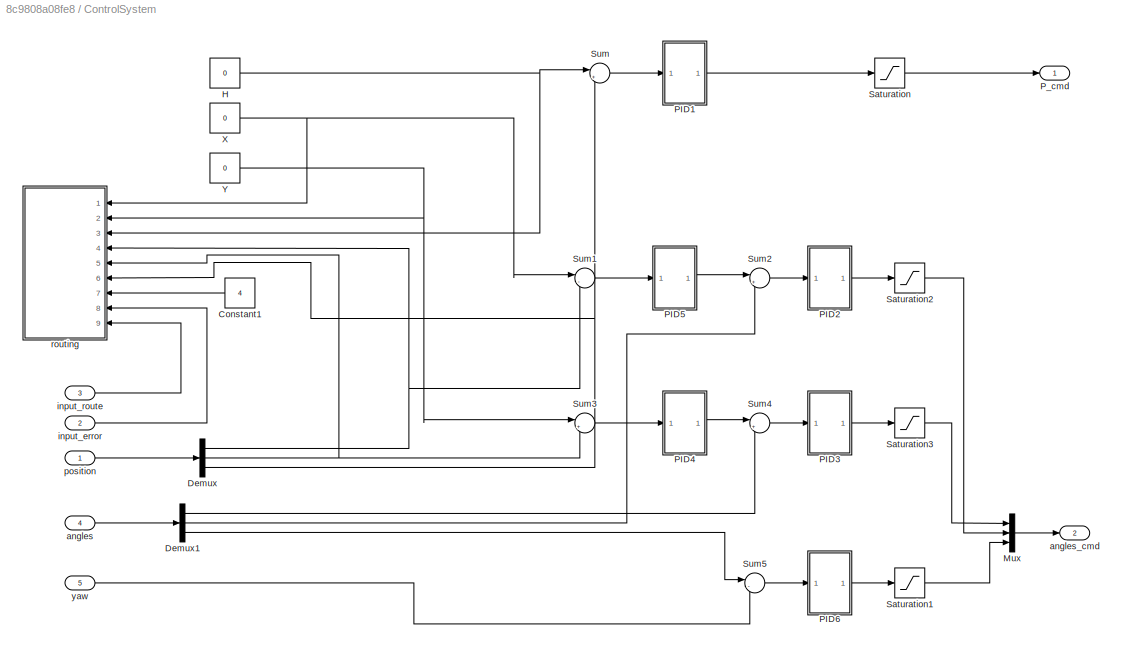
BLOCK [SubSystem] ControlSystem
  FunctionWithSeparateData = off
  MaskHideContents = off
  MinAlgLoopOccurrences = off
  Opaque = off
  Ports = [5, 2]
  PropExecContextOutsideSubsystem = off
  RTWSystemCode = Auto
  RequestExecContextInheritance = off
BLOCK [Constant] ControlSystem/Constant1
  InitFcn = coder.extrinsic('set_param');                                    \nset_param('lab2_next_level/ControlSystem/Constant1','Value','0');
  Value = 4
BLOCK [Demux] ControlSystem/Demux
  DisplayOption = bar
  Outputs = 3
  Ports = [1, 3]
BLOCK [Demux] ControlSystem/Demux1
  DisplayOption = bar
  Outputs = 3
  Ports = [1, 3]
BLOCK [Constant] ControlSystem/H
  InitFcn = coder.extrinsic('set_param');                            \nset_param('lab2_next_level/ControlSystem/H','Value','0');
  Value = 0
BLOCK [Mux] ControlSystem/Mux
  DisplayOption = bar
  Inputs = 3
  Ports = [3, 1]
BLOCK [SubSystem] ControlSystem/PID1
  FunctionWithSeparateData = off
  MaskHideContents = off
  MinAlgLoopOccurrences = off
  Opaque = off
  Ports = [1, 1]
  PropExecContextOutsideSubsystem = off
  RTWSystemCode = Auto
  RequestExecContextInheritance = off
BLOCK [Derivative] ControlSystem/PID1/Derivative
BLOCK [Gain] ControlSystem/PID1/Gain
  Gain = 0.007
  OutDataTypeStr = Inherit: Inherit via internal rule
  ParamDataTypeStr = Inherit: Inherit via internal rule
  SaturateOnIntegerOverflow = off
BLOCK [Gain] ControlSystem/PID1/Gain1
  Gain = 0.0006
  OutDataTypeStr = Inherit: Inherit via internal rule
  ParamDataTypeStr = Inherit: Inherit via internal rule
  SaturateOnIntegerOverflow = off
BLOCK [Gain] ControlSystem/PID1/Gain2
  Gain = 0.02
  OutDataTypeStr = Inherit: Inherit via internal rule
  ParamDataTypeStr = Inherit: Inherit via internal rule
  SaturateOnIntegerOverflow = off
BLOCK [Gain] ControlSystem/PID1/Gain3
  OutDataTypeStr = Inherit: Inherit via internal rule
  ParamDataTypeStr = Inherit: Inherit via internal rule
  SaturateOnIntegerOverflow = off
BLOCK [Inport] ControlSystem/PID1/In1
  IconDisplay = Port number
BLOCK [Integrator] ControlSystem/PID1/Integrator
  Ports = [1, 1]
BLOCK [Outport] ControlSystem/PID1/Out1
  IconDisplay = Port number
BLOCK [Sum] ControlSystem/PID1/Sum1
  IconShape = round
  InputSameDT = off
  Inputs = |+++
  OutDataTypeStr = Inherit: Inherit via internal rule
  Ports = [3, 1]
  SaturateOnIntegerOverflow = off
BLOCK [SubSystem] ControlSystem/PID2
  FunctionWithSeparateData = off
  MaskHideContents = off
  MinAlgLoopOccurrences = off
  Opaque = off
  Ports = [1, 1]
  PropExecContextOutsideSubsystem = off
  RTWSystemCode = Auto
  RequestExecContextInheritance = off
BLOCK [Derivative] ControlSystem/PID2/Derivative
BLOCK [Gain] ControlSystem/PID2/Gain
  Gain = 0.01
  OutDataTypeStr = Inherit: Inherit via internal rule
  ParamDataTypeStr = Inherit: Inherit via internal rule
  SaturateOnIntegerOverflow = off
BLOCK [Gain] ControlSystem/PID2/Gain1
  Gain = 1e-9
  OutDataTypeStr = Inherit: Inherit via internal rule
  ParamDataTypeStr = Inherit: Inherit via internal rule
  SaturateOnIntegerOverflow = off
BLOCK [Gain] ControlSystem/PID2/Gain2
  Gain = 0.2
  OutDataTypeStr = Inherit: Inherit via internal rule
  ParamDataTypeStr = Inherit: Inherit via internal rule
  SaturateOnIntegerOverflow = off
BLOCK [Gain] ControlSystem/PID2/Gain3
  OutDataTypeStr = Inherit: Inherit via internal rule
  ParamDataTypeStr = Inherit: Inherit via internal rule
  SaturateOnIntegerOverflow = off
BLOCK [Inport] ControlSystem/PID2/In1
  IconDisplay = Port number
BLOCK [Integrator] ControlSystem/PID2/Integrator
  Ports = [1, 1]
BLOCK [Outport] ControlSystem/PID2/Out1
  IconDisplay = Port number
BLOCK [Sum] ControlSystem/PID2/Sum1
  IconShape = round
  InputSameDT = off
  Inputs = |+++
  OutDataTypeStr = Inherit: Inherit via internal rule
  Ports = [3, 1]
  SaturateOnIntegerOverflow = off
BLOCK [SubSystem] ControlSystem/PID3
  FunctionWithSeparateData = off
  MaskHideContents = off
  MinAlgLoopOccurrences = off
  Opaque = off
  Ports = [1, 1]
  PropExecContextOutsideSubsystem = off
  RTWSystemCode = Auto
  RequestExecContextInheritance = off
BLOCK [Derivative] ControlSystem/PID3/Derivative
BLOCK [Gain] ControlSystem/PID3/Gain
  Gain = 0.01
  OutDataTypeStr = Inherit: Inherit via internal rule
  ParamDataTypeStr = Inherit: Inherit via internal rule
  SaturateOnIntegerOverflow = off
BLOCK [Gain] ControlSystem/PID3/Gain1
  Gain = 1e-9
  OutDataTypeStr = Inherit: Inherit via internal rule
  ParamDataTypeStr = Inherit: Inherit via internal rule
  SaturateOnIntegerOverflow = off
BLOCK [Gain] ControlSystem/PID3/Gain2
  Gain = 0.2
  OutDataTypeStr = Inherit: Inherit via internal rule
  ParamDataTypeStr = Inherit: Inherit via internal rule
  SaturateOnIntegerOverflow = off
BLOCK [Gain] ControlSystem/PID3/Gain3
  OutDataTypeStr = Inherit: Inherit via internal rule
  ParamDataTypeStr = Inherit: Inherit via internal rule
  SaturateOnIntegerOverflow = off
BLOCK [Inport] ControlSystem/PID3/In1
  IconDisplay = Port number
BLOCK [Integrator] ControlSystem/PID3/Integrator
  Ports = [1, 1]
BLOCK [Outport] ControlSystem/PID3/Out1
  IconDisplay = Port number
BLOCK [Sum] ControlSystem/PID3/Sum1
  IconShape = round
  InputSameDT = off
  Inputs = |+++
  OutDataTypeStr = Inherit: Inherit via internal rule
  Ports = [3, 1]
  SaturateOnIntegerOverflow = off
BLOCK [SubSystem] ControlSystem/PID4
  FunctionWithSeparateData = off
  MaskHideContents = off
  MinAlgLoopOccurrences = off
  Opaque = off
  Ports = [1, 1]
  PropExecContextOutsideSubsystem = off
  RTWSystemCode = Auto
  RequestExecContextInheritance = off
BLOCK [Derivative] ControlSystem/PID4/Derivative
BLOCK [Gain] ControlSystem/PID4/Gain
  Gain = 0.05
  OutDataTypeStr = Inherit: Inherit via internal rule
  ParamDataTypeStr = Inherit: Inherit via internal rule
  SaturateOnIntegerOverflow = off
BLOCK [Gain] ControlSystem/PID4/Gain1
  Gain = 1e-9
  OutDataTypeStr = Inherit: Inherit via internal rule
  ParamDataTypeStr = Inherit: Inherit via internal rule
  SaturateOnIntegerOverflow = off
BLOCK [Gain] ControlSystem/PID4/Gain2
  Gain = 0.15
  OutDataTypeStr = Inherit: Inherit via internal rule
  ParamDataTypeStr = Inherit: Inherit via internal rule
  SaturateOnIntegerOverflow = off
BLOCK [Gain] ControlSystem/PID4/Gain3
  OutDataTypeStr = Inherit: Inherit via internal rule
  ParamDataTypeStr = Inherit: Inherit via internal rule
  SaturateOnIntegerOverflow = off
BLOCK [Inport] ControlSystem/PID4/In1
  IconDisplay = Port number
BLOCK [Integrator] ControlSystem/PID4/Integrator
  Ports = [1, 1]
BLOCK [Outport] ControlSystem/PID4/Out1
  IconDisplay = Port number
BLOCK [Sum] ControlSystem/PID4/Sum1
  IconShape = round
  InputSameDT = off
  Inputs = |+++
  OutDataTypeStr = Inherit: Inherit via internal rule
  Ports = [3, 1]
  SaturateOnIntegerOverflow = off
BLOCK [SubSystem] ControlSystem/PID5
  FunctionWithSeparateData = off
  MaskHideContents = off
  MinAlgLoopOccurrences = off
  Opaque = off
  Ports = [1, 1]
  PropExecContextOutsideSubsystem = off
  RTWSystemCode = Auto
  RequestExecContextInheritance = off
BLOCK [Derivative] ControlSystem/PID5/Derivative
BLOCK [Gain] ControlSystem/PID5/Gain
  Gain = 0.05
  OutDataTypeStr = Inherit: Inherit via internal rule
  ParamDataTypeStr = Inherit: Inherit via internal rule
  SaturateOnIntegerOverflow = off
BLOCK [Gain] ControlSystem/PID5/Gain1
  Gain = 1e-9
  OutDataTypeStr = Inherit: Inherit via internal rule
  ParamDataTypeStr = Inherit: Inherit via internal rule
  SaturateOnIntegerOverflow = off
BLOCK [Gain] ControlSystem/PID5/Gain2
  Gain = 0.2
  OutDataTypeStr = Inherit: Inherit via internal rule
  ParamDataTypeStr = Inherit: Inherit via internal rule
  SaturateOnIntegerOverflow = off
BLOCK [Gain] ControlSystem/PID5/Gain3
  OutDataTypeStr = Inherit: Inherit via internal rule
  ParamDataTypeStr = Inherit: Inherit via internal rule
  SaturateOnIntegerOverflow = off
BLOCK [Inport] ControlSystem/PID5/In1
  IconDisplay = Port number
BLOCK [Integrator] ControlSystem/PID5/Integrator
  Ports = [1, 1]
BLOCK [Outport] ControlSystem/PID5/Out1
  IconDisplay = Port number
BLOCK [Sum] ControlSystem/PID5/Sum1
  IconShape = round
  InputSameDT = off
  Inputs = |+++
  OutDataTypeStr = Inherit: Inherit via internal rule
  Ports = [3, 1]
  SaturateOnIntegerOverflow = off
BLOCK [SubSystem] ControlSystem/PID6
  FunctionWithSeparateData = off
  MaskHideContents = off
  MinAlgLoopOccurrences = off
  Opaque = off
  Ports = [1, 1]
  PropExecContextOutsideSubsystem = off
  RTWSystemCode = Auto
  RequestExecContextInheritance = off
BLOCK [Derivative] ControlSystem/PID6/Derivative
BLOCK [Gain] ControlSystem/PID6/Gain
  Gain = 0.05
  OutDataTypeStr = Inherit: Inherit via internal rule
  ParamDataTypeStr = Inherit: Inherit via internal rule
  SaturateOnIntegerOverflow = off
BLOCK [Gain] ControlSystem/PID6/Gain1
  Gain = 0.00048
  OutDataTypeStr = Inherit: Inherit via internal rule
  ParamDataTypeStr = Inherit: Inherit via internal rule
  SaturateOnIntegerOverflow = off
BLOCK [Gain] ControlSystem/PID6/Gain2
  Gain = 0.075
  OutDataTypeStr = Inherit: Inherit via internal rule
  ParamDataTypeStr = Inherit: Inherit via internal rule
  SaturateOnIntegerOverflow = off
BLOCK [Gain] ControlSystem/PID6/Gain3
  OutDataTypeStr = Inherit: Inherit via internal rule
  ParamDataTypeStr = Inherit: Inherit via internal rule
  SaturateOnIntegerOverflow = off
BLOCK [Inport] ControlSystem/PID6/In1
  IconDisplay = Port number
BLOCK [Integrator] ControlSystem/PID6/Integrator
  Ports = [1, 1]
BLOCK [Outport] ControlSystem/PID6/Out1
  IconDisplay = Port number
BLOCK [Sum] ControlSystem/PID6/Sum1
  IconShape = round
  InputSameDT = off
  Inputs = |+++
  OutDataTypeStr = Inherit: Inherit via internal rule
  Ports = [3, 1]
  SaturateOnIntegerOverflow = off
BLOCK [Outport] ControlSystem/P_cmd
  IconDisplay = Port number
BLOCK [Saturate] ControlSystem/Saturation
  InputPortMap = u0
  LowerLimit = 0
  Ports = [1, 1]
  UpperLimit = 0.1
BLOCK [Saturate] ControlSystem/Saturation1
  InputPortMap = u0
  LowerLimit = -0.1
  Ports = [1, 1]
  UpperLimit = 0.1
BLOCK [Saturate] ControlSystem/Saturation2
  InputPortMap = u0
  LowerLimit = -0.1
  Ports = [1, 1]
  UpperLimit = 0.1
BLOCK [Saturate] ControlSystem/Saturation3
  InputPortMap = u0
  LowerLimit = -0.1
  Ports = [1, 1]
  UpperLimit = 0.1
BLOCK [Sum] ControlSystem/Sum
  IconShape = round
  InputSameDT = off
  Inputs = |+-
  OutDataTypeStr = Inherit: Inherit via internal rule
  Ports = [2, 1]
  SaturateOnIntegerOverflow = off
BLOCK [Sum] ControlSystem/Sum1
  IconShape = round
  InputSameDT = off
  Inputs = |-+
  OutDataTypeStr = Inherit: Inherit via internal rule
  Ports = [2, 1]
  SaturateOnIntegerOverflow = off
BLOCK [Sum] ControlSystem/Sum2
  IconShape = round
  InputSameDT = off
  Inputs = |+-
  OutDataTypeStr = Inherit: Inherit via internal rule
  Ports = [2, 1]
  SaturateOnIntegerOverflow = off
BLOCK [Sum] ControlSystem/Sum3
  IconShape = round
  InputSameDT = off
  Inputs = |+-
  OutDataTypeStr = Inherit: Inherit via internal rule
  Ports = [2, 1]
  SaturateOnIntegerOverflow = off
BLOCK [Sum] ControlSystem/Sum4
  IconShape = round
  InputSameDT = off
  Inputs = |+-
  OutDataTypeStr = Inherit: Inherit via internal rule
  Ports = [2, 1]
  SaturateOnIntegerOverflow = off
BLOCK [Sum] ControlSystem/Sum5
  IconShape = round
  InputSameDT = off
  Inputs = |-+
  OutDataTypeStr = Inherit: Inherit via internal rule
  Ports = [2, 1]
  SaturateOnIntegerOverflow = off
BLOCK [Constant] ControlSystem/X
  InitFcn = coder.extrinsic('set_param');                            \nset_param('lab2_next_level/ControlSystem/X','Value','0');
  Value = 0
BLOCK [Constant] ControlSystem/Y
  InitFcn = coder.extrinsic('set_param');                            \nset_param('lab2_next_level/ControlSystem/Y','Value','0');
  Value = 0
BLOCK [Inport] ControlSystem/angles
  IconDisplay = Port number
  Port = 4
BLOCK [Outport] ControlSystem/angles_cmd
  IconDisplay = Port number
  Port = 2
BLOCK [Inport] ControlSystem/input_error
  IconDisplay = Port number
  Port = 2
BLOCK [Inport] ControlSystem/input_route
  IconDisplay = Port number
  Port = 3
BLOCK [Inport] ControlSystem/position 
  IconDisplay = Port number
BLOCK [SubSystem] ControlSystem/routing
  ErrorFcn = Stateflow.Translate.translate
  FunctionWithSeparateData = off
  MaskHideContents = off
  MinAlgLoopOccurrences = off
  Opaque = off
  PermitHierarchicalResolution = ExplicitOnly
  Ports = [9]
  PropExecContextOutsideSubsystem = off
  RTWSystemCode = Auto
  RequestExecContextInheritance = off
  SFBlockType = MATLAB Function
  TreatAsAtomicUnit = on
BLOCK [Demux] ControlSystem/routing/ Demux 
  Outputs = 1
  Ports = [1, 1]
BLOCK [S-Function] ControlSystem/routing/ SFunction 
  EnableBusSupport = on
  FunctionName = sf_sfun
  PortCounts = [9 1]
  Ports = [9, 1]
  Tag = Stateflow S-Function lab2_next_level 1
BLOCK [Terminator] ControlSystem/routing/ Terminator 
BLOCK [Inport] ControlSystem/routing/counter
  IconDisplay = Port number
  Port = 7
BLOCK [Inport] ControlSystem/routing/curH
  IconDisplay = Port number
  Port = 6
BLOCK [Inport] ControlSystem/routing/curX
  IconDisplay = Port number
  Port = 4
BLOCK [Inport] ControlSystem/routing/curY
  IconDisplay = Port number
  Port = 5
BLOCK [Inport] ControlSystem/routing/error
  IconDisplay = Port number
  Port = 8
BLOCK [Inport] ControlSystem/routing/etalH
  IconDisplay = Port number
  Port = 3
BLOCK [Inport] ControlSystem/routing/etalX
  IconDisplay = Port number
BLOCK [Inport] ControlSystem/routing/etalY
  IconDisplay = Port number
  Port = 2
BLOCK [Inport] ControlSystem/routing/way
  IconDisplay = Port number
  Port = 9
BLOCK [Inport] ControlSystem/yaw
  IconDisplay = Port number
  Port = 5
BLOCK [SubSystem] ControlSystemOrigin
  Commented = on
  FunctionWithSeparateData = off
  MaskHideContents = off
  MinAlgLoopOccurrences = off
  Opaque = off
  Ports = [7, 3]
  PropExecContextOutsideSubsystem = off
  RTWSystemCode = Auto
  RequestExecContextInheritance = off
BLOCK [Constant] ControlSystemOrigin/Constant1
  InitFcn = coder.extrinsic('set_param');                                    \nset_param('lab2_next_level/ControlSystem/Constant1','Value','0');
  Value = 0
BLOCK [Constant] ControlSystemOrigin/H
  InitFcn = coder.extrinsic('set_param');                            \nset_param('lab2_next_level/ControlSystem/H','Value','0');
  Value = 0
BLOCK [SubSystem] ControlSystemOrigin/MATLAB Function
  ErrorFcn = Stateflow.Translate.translate
  FunctionWithSeparateData = off
  MaskHideContents = off
  MinAlgLoopOccurrences = off
  Opaque = off
  PermitHierarchicalResolution = ExplicitOnly
  Ports = [9]
  PropExecContextOutsideSubsystem = off
  RTWSystemCode = Auto
  RequestExecContextInheritance = off
  SFBlockType = MATLAB Function
  TreatAsAtomicUnit = on
BLOCK [Demux] ControlSystemOrigin/MATLAB Function/ Demux 
  Outputs = 1
  Ports = [1, 1]
BLOCK [S-Function] ControlSystemOrigin/MATLAB Function/ SFunction 
  EnableBusSupport = on
  FunctionName = sf_sfun
  PortCounts = [9 1]
  Ports = [9, 1]
  Tag = Stateflow S-Function lab2_next_level 8
BLOCK [Terminator] ControlSystemOrigin/MATLAB Function/ Terminator 
BLOCK [Inport] ControlSystemOrigin/MATLAB Function/counter
  IconDisplay = Port number
  Port = 7
BLOCK [Inport] ControlSystemOrigin/MATLAB Function/curH
  IconDisplay = Port number
  Port = 6
BLOCK [Inport] ControlSystemOrigin/MATLAB Function/curX
  IconDisplay = Port number
  Port = 4
BLOCK [Inport] ControlSystemOrigin/MATLAB Function/curY
  IconDisplay = Port number
  Port = 5
BLOCK [Inport] ControlSystemOrigin/MATLAB Function/error
  IconDisplay = Port number
  Port = 8
BLOCK [Inport] ControlSystemOrigin/MATLAB Function/etalH
  IconDisplay = Port number
  Port = 3
BLOCK [Inport] ControlSystemOrigin/MATLAB Function/etalX
  IconDisplay = Port number
BLOCK [Inport] ControlSystemOrigin/MATLAB Function/etalY
  IconDisplay = Port number
  Port = 2
BLOCK [Inport] ControlSystemOrigin/MATLAB Function/way
  IconDisplay = Port number
  Port = 9
BLOCK [SubSystem] ControlSystemOrigin/PID
  FunctionWithSeparateData = off
  MaskHideContents = off
  MinAlgLoopOccurrences = off
  Opaque = off
  Ports = [1, 1]
  PropExecContextOutsideSubsystem = off
  RTWSystemCode = Auto
  RequestExecContextInheritance = off
BLOCK [Derivative] ControlSystemOrigin/PID/Derivative
BLOCK [Gain] ControlSystemOrigin/PID/Gain
  Gain = 0.006
  OutDataTypeStr = Inherit: Inherit via internal rule
  ParamDataTypeStr = Inherit: Inherit via internal rule
  SaturateOnIntegerOverflow = off
BLOCK [Gain] ControlSystemOrigin/PID/Gain1
  Gain = 3.831578947e-04
  OutDataTypeStr = Inherit: Inherit via internal rule
  ParamDataTypeStr = Inherit: Inherit via internal rule
  SaturateOnIntegerOverflow = off
BLOCK [Gain] ControlSystemOrigin/PID/Gain2
  Gain = 0.0361325
  OutDataTypeStr = Inherit: Inherit via internal rule
  ParamDataTypeStr = Inherit: Inherit via internal rule
  SaturateOnIntegerOverflow = off
BLOCK [Gain] ControlSystemOrigin/PID/Gain3
  OutDataTypeStr = Inherit: Inherit via internal rule
  ParamDataTypeStr = Inherit: Inherit via internal rule
  SaturateOnIntegerOverflow = off
BLOCK [Inport] ControlSystemOrigin/PID/In1
  IconDisplay = Port number
BLOCK [Integrator] ControlSystemOrigin/PID/Integrator
  Ports = [1, 1]
BLOCK [Outport] ControlSystemOrigin/PID/Out1
  IconDisplay = Port number
BLOCK [Sum] ControlSystemOrigin/PID/Sum1
  IconShape = round
  InputSameDT = off
  Inputs = |+++
  OutDataTypeStr = Inherit: Inherit via internal rule
  Ports = [3, 1]
  SaturateOnIntegerOverflow = off
BLOCK [SubSystem] ControlSystemOrigin/PID1
  FunctionWithSeparateData = off
  MaskHideContents = off
  MinAlgLoopOccurrences = off
  Opaque = off
  Ports = [1, 1]
  PropExecContextOutsideSubsystem = off
  RTWSystemCode = Auto
  RequestExecContextInheritance = off
BLOCK [Derivative] ControlSystemOrigin/PID1/Derivative
BLOCK [Gain] ControlSystemOrigin/PID1/Gain
  Gain = 6e-03
  OutDataTypeStr = Inherit: Inherit via internal rule
  ParamDataTypeStr = Inherit: Inherit via internal rule
  SaturateOnIntegerOverflow = off
BLOCK [Gain] ControlSystemOrigin/PID1/Gain1
  Gain = 6e-9
  OutDataTypeStr = Inherit: Inherit via internal rule
  ParamDataTypeStr = Inherit: Inherit via internal rule
  SaturateOnIntegerOverflow = off
BLOCK [Gain] ControlSystemOrigin/PID1/Gain2
  Gain = 0.0255
  OutDataTypeStr = Inherit: Inherit via internal rule
  ParamDataTypeStr = Inherit: Inherit via internal rule
  SaturateOnIntegerOverflow = off
BLOCK [Gain] ControlSystemOrigin/PID1/Gain3
  OutDataTypeStr = Inherit: Inherit via internal rule
  ParamDataTypeStr = Inherit: Inherit via internal rule
  SaturateOnIntegerOverflow = off
BLOCK [Inport] ControlSystemOrigin/PID1/In1
  IconDisplay = Port number
BLOCK [Integrator] ControlSystemOrigin/PID1/Integrator
  Ports = [1, 1]
BLOCK [Outport] ControlSystemOrigin/PID1/Out1
  IconDisplay = Port number
BLOCK [Sum] ControlSystemOrigin/PID1/Sum1
  IconShape = round
  InputSameDT = off
  Inputs = |+++
  OutDataTypeStr = Inherit: Inherit via internal rule
  Ports = [3, 1]
  SaturateOnIntegerOverflow = off
BLOCK [SubSystem] ControlSystemOrigin/PID2
  FunctionWithSeparateData = off
  MaskHideContents = off
  MinAlgLoopOccurrences = off
  Opaque = off
  Ports = [1, 1]
  PropExecContextOutsideSubsystem = off
  RTWSystemCode = Auto
  RequestExecContextInheritance = off
BLOCK [Derivative] ControlSystemOrigin/PID2/Derivative
BLOCK [Gain] ControlSystemOrigin/PID2/Gain
  Gain = 0.010
  OutDataTypeStr = Inherit: Inherit via internal rule
  ParamDataTypeStr = Inherit: Inherit via internal rule
  SaturateOnIntegerOverflow = off
BLOCK [Gain] ControlSystemOrigin/PID2/Gain1
  Gain = 7.058823529e-09
  OutDataTypeStr = Inherit: Inherit via internal rule
  ParamDataTypeStr = Inherit: Inherit via internal rule
  SaturateOnIntegerOverflow = off
BLOCK [Gain] ControlSystemOrigin/PID2/Gain2
  Gain = 0.141875
  OutDataTypeStr = Inherit: Inherit via internal rule
  ParamDataTypeStr = Inherit: Inherit via internal rule
  SaturateOnIntegerOverflow = off
BLOCK [Gain] ControlSystemOrigin/PID2/Gain3
  OutDataTypeStr = Inherit: Inherit via internal rule
  ParamDataTypeStr = Inherit: Inherit via internal rule
  SaturateOnIntegerOverflow = off
BLOCK [Inport] ControlSystemOrigin/PID2/In1
  IconDisplay = Port number
BLOCK [Integrator] ControlSystemOrigin/PID2/Integrator
  Ports = [1, 1]
BLOCK [Outport] ControlSystemOrigin/PID2/Out1
  IconDisplay = Port number
BLOCK [Sum] ControlSystemOrigin/PID2/Sum1
  IconShape = round
  InputSameDT = off
  Inputs = |+++
  OutDataTypeStr = Inherit: Inherit via internal rule
  Ports = [3, 1]
  SaturateOnIntegerOverflow = off
BLOCK [SubSystem] ControlSystemOrigin/PID3
  FunctionWithSeparateData = off
  MaskHideContents = off
  MinAlgLoopOccurrences = off
  Opaque = off
  Ports = [1, 1]
  PropExecContextOutsideSubsystem = off
  RTWSystemCode = Auto
  RequestExecContextInheritance = off
BLOCK [Derivative] ControlSystemOrigin/PID3/Derivative
BLOCK [Gain] ControlSystemOrigin/PID3/Gain
  Gain = 5e-03
  OutDataTypeStr = Inherit: Inherit via internal rule
  ParamDataTypeStr = Inherit: Inherit via internal rule
  SaturateOnIntegerOverflow = off
BLOCK [Gain] ControlSystemOrigin/PID3/Gain1
  Gain = 6e-9
  OutDataTypeStr = Inherit: Inherit via internal rule
  ParamDataTypeStr = Inherit: Inherit via internal rule
  SaturateOnIntegerOverflow = off
BLOCK [Gain] ControlSystemOrigin/PID3/Gain2
  Gain = 0.035
  OutDataTypeStr = Inherit: Inherit via internal rule
  ParamDataTypeStr = Inherit: Inherit via internal rule
  SaturateOnIntegerOverflow = off
BLOCK [Gain] ControlSystemOrigin/PID3/Gain3
  OutDataTypeStr = Inherit: Inherit via internal rule
  ParamDataTypeStr = Inherit: Inherit via internal rule
  SaturateOnIntegerOverflow = off
BLOCK [Inport] ControlSystemOrigin/PID3/In1
  IconDisplay = Port number
BLOCK [Integrator] ControlSystemOrigin/PID3/Integrator
  Ports = [1, 1]
BLOCK [Outport] ControlSystemOrigin/PID3/Out1
  IconDisplay = Port number
BLOCK [Sum] ControlSystemOrigin/PID3/Sum1
  IconShape = round
  InputSameDT = off
  Inputs = |+++
  OutDataTypeStr = Inherit: Inherit via internal rule
  Ports = [3, 1]
  SaturateOnIntegerOverflow = off
BLOCK [SubSystem] ControlSystemOrigin/PID5
  FunctionWithSeparateData = off
  MaskHideContents = off
  MinAlgLoopOccurrences = off
  Opaque = off
  Ports = [1, 1]
  PropExecContextOutsideSubsystem = off
  RTWSystemCode = Auto
  RequestExecContextInheritance = off
BLOCK [Derivative] ControlSystemOrigin/PID5/Derivative
BLOCK [Gain] ControlSystemOrigin/PID5/Gain
  Gain = 0.0005
  OutDataTypeStr = Inherit: Inherit via internal rule
  ParamDataTypeStr = Inherit: Inherit via internal rule
  SaturateOnIntegerOverflow = off
BLOCK [Gain] ControlSystemOrigin/PID5/Gain1
  Gain = 2e-09
  OutDataTypeStr = Inherit: Inherit via internal rule
  ParamDataTypeStr = Inherit: Inherit via internal rule
  SaturateOnIntegerOverflow = off
BLOCK [Gain] ControlSystemOrigin/PID5/Gain2
  Gain = 0.0545
  OutDataTypeStr = Inherit: Inherit via internal rule
  ParamDataTypeStr = Inherit: Inherit via internal rule
  SaturateOnIntegerOverflow = off
BLOCK [Gain] ControlSystemOrigin/PID5/Gain3
  OutDataTypeStr = Inherit: Inherit via internal rule
  ParamDataTypeStr = Inherit: Inherit via internal rule
  SaturateOnIntegerOverflow = off
BLOCK [Inport] ControlSystemOrigin/PID5/In1
  IconDisplay = Port number
BLOCK [Integrator] ControlSystemOrigin/PID5/Integrator
  Ports = [1, 1]
BLOCK [Outport] ControlSystemOrigin/PID5/Out1
  IconDisplay = Port number
BLOCK [Sum] ControlSystemOrigin/PID5/Sum1
  IconShape = round
  InputSameDT = off
  Inputs = |+++
  OutDataTypeStr = Inherit: Inherit via internal rule
  Ports = [3, 1]
  SaturateOnIntegerOverflow = off
BLOCK [SubSystem] ControlSystemOrigin/PID6
  FunctionWithSeparateData = off
  MaskHideContents = off
  MinAlgLoopOccurrences = off
  Opaque = off
  Ports = [1, 1]
  PropExecContextOutsideSubsystem = off
  RTWSystemCode = Auto
  RequestExecContextInheritance = off
BLOCK [Derivative] ControlSystemOrigin/PID6/Derivative
BLOCK [Gain] ControlSystemOrigin/PID6/Gain
  Gain = 1e-03
  OutDataTypeStr = Inherit: Inherit via internal rule
  ParamDataTypeStr = Inherit: Inherit via internal rule
  SaturateOnIntegerOverflow = off
BLOCK [Gain] ControlSystemOrigin/PID6/Gain1
  Gain = 2.4e-07
  OutDataTypeStr = Inherit: Inherit via internal rule
  ParamDataTypeStr = Inherit: Inherit via internal rule
  SaturateOnIntegerOverflow = off
BLOCK [Gain] ControlSystemOrigin/PID6/Gain2
  Gain = 9e-05
  OutDataTypeStr = Inherit: Inherit via internal rule
  ParamDataTypeStr = Inherit: Inherit via internal rule
  SaturateOnIntegerOverflow = off
BLOCK [Gain] ControlSystemOrigin/PID6/Gain3
  OutDataTypeStr = Inherit: Inherit via internal rule
  ParamDataTypeStr = Inherit: Inherit via internal rule
  SaturateOnIntegerOverflow = off
BLOCK [Inport] ControlSystemOrigin/PID6/In1
  IconDisplay = Port number
BLOCK [Integrator] ControlSystemOrigin/PID6/Integrator
  Ports = [1, 1]
BLOCK [Outport] ControlSystemOrigin/PID6/Out1
  IconDisplay = Port number
BLOCK [Sum] ControlSystemOrigin/PID6/Sum1
  IconShape = round
  InputSameDT = off
  Inputs = |+++
  OutDataTypeStr = Inherit: Inherit via internal rule
  Ports = [3, 1]
  SaturateOnIntegerOverflow = off
BLOCK [SubSystem] ControlSystemOrigin/PID7
  FunctionWithSeparateData = off
  MaskHideContents = off
  MinAlgLoopOccurrences = off
  Opaque = off
  Ports = [1, 1]
  PropExecContextOutsideSubsystem = off
  RTWSystemCode = Auto
  RequestExecContextInheritance = off
BLOCK [Derivative] ControlSystemOrigin/PID7/Derivative
BLOCK [Gain] ControlSystemOrigin/PID7/Gain
  Gain = 0.013
  OutDataTypeStr = Inherit: Inherit via internal rule
  ParamDataTypeStr = Inherit: Inherit via internal rule
  SaturateOnIntegerOverflow = off
BLOCK [Gain] ControlSystemOrigin/PID7/Gain1
  Gain = 7.058823529e-08
  OutDataTypeStr = Inherit: Inherit via internal rule
  ParamDataTypeStr = Inherit: Inherit via internal rule
  SaturateOnIntegerOverflow = off
BLOCK [Gain] ControlSystemOrigin/PID7/Gain2
  Gain = 0.171875
  OutDataTypeStr = Inherit: Inherit via internal rule
  ParamDataTypeStr = Inherit: Inherit via internal rule
  SaturateOnIntegerOverflow = off
BLOCK [Gain] ControlSystemOrigin/PID7/Gain3
  OutDataTypeStr = Inherit: Inherit via internal rule
  ParamDataTypeStr = Inherit: Inherit via internal rule
  SaturateOnIntegerOverflow = off
BLOCK [Inport] ControlSystemOrigin/PID7/In1
  IconDisplay = Port number
BLOCK [Integrator] ControlSystemOrigin/PID7/Integrator
  Ports = [1, 1]
BLOCK [Outport] ControlSystemOrigin/PID7/Out1
  IconDisplay = Port number
BLOCK [Sum] ControlSystemOrigin/PID7/Sum1
  IconShape = round
  InputSameDT = off
  Inputs = |+++
  OutDataTypeStr = Inherit: Inherit via internal rule
  Ports = [3, 1]
  SaturateOnIntegerOverflow = off
BLOCK [Saturate] ControlSystemOrigin/Saturation
  InputPortMap = u0
  LowerLimit = 0
  Ports = [1, 1]
  UpperLimit = 0.1
BLOCK [Saturate] ControlSystemOrigin/Saturation2
  InputPortMap = u0
  LowerLimit = -0.1
  Ports = [1, 1]
  UpperLimit = 0.1
BLOCK [Saturate] ControlSystemOrigin/Saturation3
  InputPortMap = u0
  LowerLimit = -0.01
  Ports = [1, 1]
  UpperLimit = 0.01
BLOCK [Sum] ControlSystemOrigin/Sum
  IconShape = round
  InputSameDT = off
  Inputs = |+-
  OutDataTypeStr = Inherit: Inherit via internal rule
  Ports = [2, 1]
  SaturateOnIntegerOverflow = off
BLOCK [Sum] ControlSystemOrigin/Sum1
  IconShape = round
  InputSameDT = off
  Inputs = |+-
  OutDataTypeStr = Inherit: Inherit via internal rule
  Ports = [2, 1]
  SaturateOnIntegerOverflow = off
BLOCK [Sum] ControlSystemOrigin/Sum2
  IconShape = round
  InputSameDT = off
  Inputs = |+-
  OutDataTypeStr = Inherit: Inherit via internal rule
  Ports = [2, 1]
  SaturateOnIntegerOverflow = off
BLOCK [Sum] ControlSystemOrigin/Sum3
  IconShape = round
  InputSameDT = off
  Inputs = |-+
  OutDataTypeStr = Inherit: Inherit via internal rule
  Ports = [2, 1]
  SaturateOnIntegerOverflow = off
BLOCK [Sum] ControlSystemOrigin/Sum4
  IconShape = round
  InputSameDT = off
  Inputs = |+-
  OutDataTypeStr = Inherit: Inherit via internal rule
  Ports = [2, 1]
  SaturateOnIntegerOverflow = off
BLOCK [Constant] ControlSystemOrigin/X
  InitFcn = coder.extrinsic('set_param');                            \nset_param('lab2_next_level/ControlSystem/X','Value','0');
  Value = 0
BLOCK [Constant] ControlSystemOrigin/Y
  InitFcn = coder.extrinsic('set_param');                            \nset_param('lab2_next_level/ControlSystem/Y','Value','0');
  Value = 0
BLOCK [Inport] ControlSystemOrigin/inputError
  IconDisplay = Port number
  Port = 4
BLOCK [Inport] ControlSystemOrigin/inputH
  IconDisplay = Port number
  Port = 3
BLOCK [Inport] ControlSystemOrigin/inputPitch
  IconDisplay = Port number
  Port = 6
BLOCK [Inport] ControlSystemOrigin/inputRoll
  IconDisplay = Port number
  Port = 7
BLOCK [Inport] ControlSystemOrigin/inputRouteMatrix
  IconDisplay = Port number
  Port = 5
BLOCK [Inport] ControlSystemOrigin/inputX
  IconDisplay = Port number
BLOCK [Inport] ControlSystemOrigin/inputY
  IconDisplay = Port number
  Port = 2
BLOCK [Outport] ControlSystemOrigin/outputP
  IconDisplay = Port number
  Port = 3
BLOCK [Outport] ControlSystemOrigin/outputPithCmd
  IconDisplay = Port number
BLOCK [Outport] ControlSystemOrigin/outputRollCmd
  IconDisplay = Port number
  Port = 2
BLOCK [SubSystem] MATLAB Function2
  Commented = on
  ErrorFcn = Stateflow.Translate.translate
  FunctionWithSeparateData = off
  MaskHideContents = off
  MinAlgLoopOccurrences = off
  Opaque = off
  PermitHierarchicalResolution = ExplicitOnly
  Ports = [6, 3]
  PropExecContextOutsideSubsystem = off
  RTWSystemCode = Auto
  RequestExecContextInheritance = off
  SFBlockType = MATLAB Function
  TreatAsAtomicUnit = on
BLOCK [Demux] MATLAB Function2/ Demux 
  Outputs = 1
  Ports = [1, 1]
BLOCK [S-Function] MATLAB Function2/ SFunction 
  EnableBusSupport = on
  FunctionName = sf_sfun
  PortCounts = [6 4]
  Ports = [6, 4]
  Tag = Stateflow S-Function lab2_next_level 4
BLOCK [Terminator] MATLAB Function2/ Terminator 
BLOCK [Inport] MATLAB Function2/pitch
  IconDisplay = Port number
  Port = 2
BLOCK [Inport] MATLAB Function2/roll
  IconDisplay = Port number
BLOCK [Inport] MATLAB Function2/x
  IconDisplay = Port number
  Port = 4
BLOCK [Outport] MATLAB Function2/xs
  IconDisplay = Port number
BLOCK [Inport] MATLAB Function2/y
  IconDisplay = Port number
  Port = 5
BLOCK [Inport] MATLAB Function2/yaw
  IconDisplay = Port number
  Port = 3
BLOCK [Outport] MATLAB Function2/ys
  IconDisplay = Port number
  Port = 2
BLOCK [Inport] MATLAB Function2/z
  IconDisplay = Port number
  Port = 6
BLOCK [Outport] MATLAB Function2/zs
  IconDisplay = Port number
  Port = 3
BLOCK [SubSystem] PLATFORM
  FunctionWithSeparateData = off
  MaskHideContents = off
  MinAlgLoopOccurrences = off
  Opaque = off
  Ports = [2, 1]
  PropExecContextOutsideSubsystem = off
  RTWSystemCode = Auto
  RequestExecContextInheritance = off
BLOCK [SubSystem] PLATFORM/JOINT_MOVEMENT
  FunctionWithSeparateData = off
  MaskHideContents = off
  MinAlgLoopOccurrences = off
  Opaque = off
  Ports = [2, 2]
  PropExecContextOutsideSubsystem = off
  RTWSystemCode = Auto
  RequestExecContextInheritance = off
BLOCK [SubSystem] PLATFORM/JOINT_MOVEMENT/ 
  ErrorFcn = Stateflow.Translate.translate
  FunctionWithSeparateData = off
  MaskHideContents = off
  MinAlgLoopOccurrences = off
  Opaque = off
  PermitHierarchicalResolution = ExplicitOnly
  Ports = [2, 1]
  PropExecContextOutsideSubsystem = off
  RTWSystemCode = Auto
  RequestExecContextInheritance = off
  SFBlockType = MATLAB Function
  TreatAsAtomicUnit = on
BLOCK [Demux] PLATFORM/JOINT_MOVEMENT/ / Demux 
  Outputs = 1
  Ports = [1, 1]
BLOCK [S-Function] PLATFORM/JOINT_MOVEMENT/ / SFunction 
  EnableBusSupport = on
  FunctionName = sf_sfun
  PortCounts = [2 2]
  Ports = [2, 2]
  Tag = Stateflow S-Function lab2_next_level 11
BLOCK [Terminator] PLATFORM/JOINT_MOVEMENT/ / Terminator 
BLOCK [Inport] PLATFORM/JOINT_MOVEMENT/ /ang_vel
  IconDisplay = Port number
  Port = 2
BLOCK [Outport] PLATFORM/JOINT_MOVEMENT/ /out
  IconDisplay = Port number
BLOCK [Inport] PLATFORM/JOINT_MOVEMENT/ /yaw
  IconDisplay = Port number
BLOCK [Demux] PLATFORM/JOINT_MOVEMENT/Demux
  DisplayOption = bar
  Outputs = 3
  Ports = [1, 3]
BLOCK [Integrator] PLATFORM/JOINT_MOVEMENT/Integrator6
  LowerSaturationLimit = -1
  Ports = [1, 1]
  UpperSaturationLimit = 1
BLOCK [Sum] PLATFORM/JOINT_MOVEMENT/Sum
  IconShape = round
  InputSameDT = off
  Inputs = |+-
  OutDataTypeStr = Inherit: Inherit via internal rule
  Ports = [2, 1]
  SaturateOnIntegerOverflow = off
BLOCK [Outport] PLATFORM/JOINT_MOVEMENT/ang
  IconDisplay = Port number
  Port = 2
BLOCK [Inport] PLATFORM/JOINT_MOVEMENT/ang_vel_real
  IconDisplay = Port number
  Port = 2
BLOCK [Inport] PLATFORM/JOINT_MOVEMENT/anles_from_engine
  IconDisplay = Port number
BLOCK [Outport] PLATFORM/JOINT_MOVEMENT/yaw
  IconDisplay = Port number
BLOCK [SubSystem] PLATFORM/STABILIZATION
  FunctionWithSeparateData = off
  MaskHideContents = off
  MinAlgLoopOccurrences = off
  Opaque = off
  Ports = [2, 1]
  PropExecContextOutsideSubsystem = off
  RTWSystemCode = Auto
  RequestExecContextInheritance = off
BLOCK [SubSystem] PLATFORM/STABILIZATION/ 
  ErrorFcn = Stateflow.Translate.translate
  FunctionWithSeparateData = off
  MaskHideContents = off
  MinAlgLoopOccurrences = off
  Opaque = off
  PermitHierarchicalResolution = ExplicitOnly
  Ports = [2, 3]
  PropExecContextOutsideSubsystem = off
  RTWSystemCode = Auto
  RequestExecContextInheritance = off
  SFBlockType = MATLAB Function
  TreatAsAtomicUnit = on
BLOCK [Demux] PLATFORM/STABILIZATION/ / Demux 
  Outputs = 1
  Ports = [1, 1]
BLOCK [S-Function] PLATFORM/STABILIZATION/ / SFunction 
  EnableBusSupport = on
  FunctionName = sf_sfun
  PortCounts = [2 4]
  Ports = [2, 4]
  Tag = Stateflow S-Function lab2_next_level 9
BLOCK [Terminator] PLATFORM/STABILIZATION/ / Terminator 
BLOCK [Inport] PLATFORM/STABILIZATION/ /angle_vel
  IconDisplay = Port number
  Port = 2
BLOCK [Outport] PLATFORM/STABILIZATION/ /xs
  IconDisplay = Port number
BLOCK [Inport] PLATFORM/STABILIZATION/ /yaw
  IconDisplay = Port number
BLOCK [Outport] PLATFORM/STABILIZATION/ /ys
  IconDisplay = Port number
  Port = 2
BLOCK [Outport] PLATFORM/STABILIZATION/ /zs
  IconDisplay = Port number
  Port = 3
BLOCK [SubSystem] PLATFORM/STABILIZATION/EngineRoll1
  FunctionWithSeparateData = off
  MaskHideContents = off
  MinAlgLoopOccurrences = off
  Opaque = off
  Ports = [1, 1]
  PropExecContextOutsideSubsystem = off
  RTWSystemCode = Auto
  RequestExecContextInheritance = off
BLOCK [Reference] PLATFORM/STABILIZATION/EngineRoll1/Band-Limited White Noise2  REF=simulink/Sources/Band-Limited
White Noise
  Cov = [0.00001]
  Ports = [0, 1]
  SourceBlock = simulink/Sources/Band-Limited\nWhite Noise
  SourceType = Band-Limited White Noise.
  Ts = 0.1
  VectorParams1D = on
  seed = [23341]
BLOCK [Gain] PLATFORM/STABILIZATION/EngineRoll1/Gain
  Gain = 10
  OutDataTypeStr = Inherit: Inherit via internal rule
  ParamDataTypeStr = Inherit: Inherit via internal rule
  SaturateOnIntegerOverflow = off
BLOCK [Integrator] PLATFORM/STABILIZATION/EngineRoll1/Integrator
  Ports = [1, 1]
BLOCK [RateTransition] PLATFORM/STABILIZATION/EngineRoll1/Rate Transition
BLOCK [Sum] PLATFORM/STABILIZATION/EngineRoll1/Sum2
  IconShape = round
  InputSameDT = off
  Inputs = |++
  OutDataTypeStr = Inherit: Inherit via internal rule
  Ports = [2, 1]
  SaturateOnIntegerOverflow = off
BLOCK [TransferFcn] PLATFORM/STABILIZATION/EngineRoll1/Transfer Fcn
  Denominator = [1 1]
BLOCK [Inport] PLATFORM/STABILIZATION/EngineRoll1/angleIn
  IconDisplay = Port number
BLOCK [Outport] PLATFORM/STABILIZATION/EngineRoll1/angleOut
  IconDisplay = Port number
BLOCK [SubSystem] PLATFORM/STABILIZATION/EngineRoll2
  FunctionWithSeparateData = off
  MaskHideContents = off
  MinAlgLoopOccurrences = off
  Opaque = off
  Ports = [1, 1]
  PropExecContextOutsideSubsystem = off
  RTWSystemCode = Auto
  RequestExecContextInheritance = off
BLOCK [Reference] PLATFORM/STABILIZATION/EngineRoll2/Band-Limited White Noise2  REF=simulink/Sources/Band-Limited
White Noise
  Cov = [0.00001]
  Ports = [0, 1]
  SourceBlock = simulink/Sources/Band-Limited\nWhite Noise
  SourceType = Band-Limited White Noise.
  Ts = 0.1
  VectorParams1D = on
  seed = [23341]
BLOCK [Gain] PLATFORM/STABILIZATION/EngineRoll2/Gain
  Gain = 10
  OutDataTypeStr = Inherit: Inherit via internal rule
  ParamDataTypeStr = Inherit: Inherit via internal rule
  SaturateOnIntegerOverflow = off
BLOCK [Integrator] PLATFORM/STABILIZATION/EngineRoll2/Integrator
  Ports = [1, 1]
BLOCK [RateTransition] PLATFORM/STABILIZATION/EngineRoll2/Rate Transition
BLOCK [Sum] PLATFORM/STABILIZATION/EngineRoll2/Sum2
  IconShape = round
  InputSameDT = off
  Inputs = |++
  OutDataTypeStr = Inherit: Inherit via internal rule
  Ports = [2, 1]
  SaturateOnIntegerOverflow = off
BLOCK [TransferFcn] PLATFORM/STABILIZATION/EngineRoll2/Transfer Fcn
  Denominator = [1 1]
BLOCK [Inport] PLATFORM/STABILIZATION/EngineRoll2/angleIn
  IconDisplay = Port number
BLOCK [Outport] PLATFORM/STABILIZATION/EngineRoll2/angleOut
  IconDisplay = Port number
BLOCK [SubSystem] PLATFORM/STABILIZATION/EngineRoll3
  FunctionWithSeparateData = off
  MaskHideContents = off
  MinAlgLoopOccurrences = off
  Opaque = off
  Ports = [1, 1]
  PropExecContextOutsideSubsystem = off
  RTWSystemCode = Auto
  RequestExecContextInheritance = off
BLOCK [Reference] PLATFORM/STABILIZATION/EngineRoll3/Band-Limited White Noise2  REF=simulink/Sources/Band-Limited
White Noise
  Cov = [0.00001]
  Ports = [0, 1]
  SourceBlock = simulink/Sources/Band-Limited\nWhite Noise
  SourceType = Band-Limited White Noise.
  Ts = 0.1
  VectorParams1D = on
  seed = [23341]
BLOCK [Gain] PLATFORM/STABILIZATION/EngineRoll3/Gain
  Gain = 10
  OutDataTypeStr = Inherit: Inherit via internal rule
  ParamDataTypeStr = Inherit: Inherit via internal rule
  SaturateOnIntegerOverflow = off
BLOCK [Integrator] PLATFORM/STABILIZATION/EngineRoll3/Integrator
  Ports = [1, 1]
BLOCK [RateTransition] PLATFORM/STABILIZATION/EngineRoll3/Rate Transition
BLOCK [Sum] PLATFORM/STABILIZATION/EngineRoll3/Sum2
  IconShape = round
  InputSameDT = off
  Inputs = |++
  OutDataTypeStr = Inherit: Inherit via internal rule
  Ports = [2, 1]
  SaturateOnIntegerOverflow = off
BLOCK [TransferFcn] PLATFORM/STABILIZATION/EngineRoll3/Transfer Fcn
  Denominator = [1 1]
BLOCK [Inport] PLATFORM/STABILIZATION/EngineRoll3/angleIn
  IconDisplay = Port number
BLOCK [Outport] PLATFORM/STABILIZATION/EngineRoll3/angleOut
  IconDisplay = Port number
BLOCK [Integrator] PLATFORM/STABILIZATION/Integrator2
  LimitOutput = on
  LowerSaturationLimit = -1
  Ports = [1, 1]
  UpperSaturationLimit = 1
BLOCK [Integrator] PLATFORM/STABILIZATION/Integrator7
  LimitOutput = on
  LowerSaturationLimit = -1
  Ports = [1, 1]
  UpperSaturationLimit = 1
BLOCK [Integrator] PLATFORM/STABILIZATION/Integrator8
  LimitOutput = on
  LowerSaturationLimit = -1
  Ports = [1, 1]
  UpperSaturationLimit = 1
BLOCK [Mux] PLATFORM/STABILIZATION/Mux
  DisplayOption = bar
  Inputs = 3
  Ports = [3, 1]
BLOCK [SubSystem] PLATFORM/STABILIZATION/PID1
  FunctionWithSeparateData = off
  MaskHideContents = off
  MinAlgLoopOccurrences = off
  Opaque = off
  Ports = [1, 1]
  PropExecContextOutsideSubsystem = off
  RTWSystemCode = Auto
  RequestExecContextInheritance = off
BLOCK [Derivative] PLATFORM/STABILIZATION/PID1/Derivative
BLOCK [Gain] PLATFORM/STABILIZATION/PID1/Gain
  Gain = 0.2
  OutDataTypeStr = Inherit: Inherit via internal rule
  ParamDataTypeStr = Inherit: Inherit via internal rule
  SaturateOnIntegerOverflow = off
BLOCK [Gain] PLATFORM/STABILIZATION/PID1/Gain1
  Gain = 1e-4
  OutDataTypeStr = Inherit: Inherit via internal rule
  ParamDataTypeStr = Inherit: Inherit via internal rule
  SaturateOnIntegerOverflow = off
BLOCK [Gain] PLATFORM/STABILIZATION/PID1/Gain3
  OutDataTypeStr = Inherit: Inherit via internal rule
  ParamDataTypeStr = Inherit: Inherit via internal rule
  SaturateOnIntegerOverflow = off
BLOCK [Gain] PLATFORM/STABILIZATION/PID1/Gain4
  Gain = 1.65
  OutDataTypeStr = Inherit: Inherit via internal rule
  ParamDataTypeStr = Inherit: Inherit via internal rule
  SaturateOnIntegerOverflow = off
BLOCK [Inport] PLATFORM/STABILIZATION/PID1/In1
  IconDisplay = Port number
BLOCK [Integrator] PLATFORM/STABILIZATION/PID1/Integrator
  Ports = [1, 1]
BLOCK [Outport] PLATFORM/STABILIZATION/PID1/Out1
  IconDisplay = Port number
BLOCK [Sum] PLATFORM/STABILIZATION/PID1/Sum1
  IconShape = round
  InputSameDT = off
  Inputs = |+++
  OutDataTypeStr = Inherit: Inherit via internal rule
  Ports = [3, 1]
  SaturateOnIntegerOverflow = off
BLOCK [SubSystem] PLATFORM/STABILIZATION/PID2
  FunctionWithSeparateData = off
  MaskHideContents = off
  MinAlgLoopOccurrences = off
  Opaque = off
  Ports = [1, 1]
  PropExecContextOutsideSubsystem = off
  RTWSystemCode = Auto
  RequestExecContextInheritance = off
BLOCK [Derivative] PLATFORM/STABILIZATION/PID2/Derivative
BLOCK [Gain] PLATFORM/STABILIZATION/PID2/Gain
  Gain = 0.2
  OutDataTypeStr = Inherit: Inherit via internal rule
  ParamDataTypeStr = Inherit: Inherit via internal rule
  SaturateOnIntegerOverflow = off
BLOCK [Gain] PLATFORM/STABILIZATION/PID2/Gain1
  Gain = 1e-4
  OutDataTypeStr = Inherit: Inherit via internal rule
  ParamDataTypeStr = Inherit: Inherit via internal rule
  SaturateOnIntegerOverflow = off
BLOCK [Gain] PLATFORM/STABILIZATION/PID2/Gain3
  OutDataTypeStr = Inherit: Inherit via internal rule
  ParamDataTypeStr = Inherit: Inherit via internal rule
  SaturateOnIntegerOverflow = off
BLOCK [Gain] PLATFORM/STABILIZATION/PID2/Gain4
  Gain = 1.65
  OutDataTypeStr = Inherit: Inherit via internal rule
  ParamDataTypeStr = Inherit: Inherit via internal rule
  SaturateOnIntegerOverflow = off
BLOCK [Inport] PLATFORM/STABILIZATION/PID2/In1
  IconDisplay = Port number
BLOCK [Integrator] PLATFORM/STABILIZATION/PID2/Integrator
  Ports = [1, 1]
BLOCK [Outport] PLATFORM/STABILIZATION/PID2/Out1
  IconDisplay = Port number
BLOCK [Sum] PLATFORM/STABILIZATION/PID2/Sum1
  IconShape = round
  InputSameDT = off
  Inputs = |+++
  OutDataTypeStr = Inherit: Inherit via internal rule
  Ports = [3, 1]
  SaturateOnIntegerOverflow = off
BLOCK [SubSystem] PLATFORM/STABILIZATION/PID3
  FunctionWithSeparateData = off
  MaskHideContents = off
  MinAlgLoopOccurrences = off
  Opaque = off
  Ports = [1, 1]
  PropExecContextOutsideSubsystem = off
  RTWSystemCode = Auto
  RequestExecContextInheritance = off
BLOCK [Derivative] PLATFORM/STABILIZATION/PID3/Derivative
BLOCK [Gain] PLATFORM/STABILIZATION/PID3/Gain
  Gain = 0.2
  OutDataTypeStr = Inherit: Inherit via internal rule
  ParamDataTypeStr = Inherit: Inherit via internal rule
  SaturateOnIntegerOverflow = off
BLOCK [Gain] PLATFORM/STABILIZATION/PID3/Gain1
  Gain = 1e-4
  OutDataTypeStr = Inherit: Inherit via internal rule
  ParamDataTypeStr = Inherit: Inherit via internal rule
  SaturateOnIntegerOverflow = off
BLOCK [Gain] PLATFORM/STABILIZATION/PID3/Gain3
  OutDataTypeStr = Inherit: Inherit via internal rule
  ParamDataTypeStr = Inherit: Inherit via internal rule
  SaturateOnIntegerOverflow = off
BLOCK [Gain] PLATFORM/STABILIZATION/PID3/Gain4
  Gain = 1.65
  OutDataTypeStr = Inherit: Inherit via internal rule
  ParamDataTypeStr = Inherit: Inherit via internal rule
  SaturateOnIntegerOverflow = off
BLOCK [Inport] PLATFORM/STABILIZATION/PID3/In1
  IconDisplay = Port number
BLOCK [Integrator] PLATFORM/STABILIZATION/PID3/Integrator
  Ports = [1, 1]
BLOCK [Outport] PLATFORM/STABILIZATION/PID3/Out1
  IconDisplay = Port number
BLOCK [Sum] PLATFORM/STABILIZATION/PID3/Sum1
  IconShape = round
  InputSameDT = off
  Inputs = |+++
  OutDataTypeStr = Inherit: Inherit via internal rule
  Ports = [3, 1]
  SaturateOnIntegerOverflow = off
BLOCK [Sum] PLATFORM/STABILIZATION/Sum1
  IconShape = round
  InputSameDT = off
  Inputs = |+-
  OutDataTypeStr = Inherit: Inherit via internal rule
  Ports = [2, 1]
  SaturateOnIntegerOverflow = off
BLOCK [Sum] PLATFORM/STABILIZATION/Sum2
  IconShape = round
  InputSameDT = off
  Inputs = |+-
  OutDataTypeStr = Inherit: Inherit via internal rule
  Ports = [2, 1]
  SaturateOnIntegerOverflow = off
BLOCK [Sum] PLATFORM/STABILIZATION/Sum3
  IconShape = round
  InputSameDT = off
  Inputs = |+-
  OutDataTypeStr = Inherit: Inherit via internal rule
  Ports = [2, 1]
  SaturateOnIntegerOverflow = off
BLOCK [Outport] PLATFORM/STABILIZATION/angles_from_engines
  IconDisplay = Port number
BLOCK [Inport] PLATFORM/STABILIZATION/angular_velocity
  IconDisplay = Port number
BLOCK [Inport] PLATFORM/STABILIZATION/yaw
  IconDisplay = Port number
  Port = 2
BLOCK [Outport] PLATFORM/angles
  IconDisplay = Port number
BLOCK [Inport] PLATFORM/angular_velocity
  IconDisplay = Port number
BLOCK [Inport] PLATFORM/angular_velocity_real
  IconDisplay = Port number
  Port = 2
BLOCK [SubSystem] Platform1
  Commented = on
  FunctionWithSeparateData = off
  MaskHideContents = off
  MinAlgLoopOccurrences = off
  Opaque = off
  Ports = [6, 3]
  PropExecContextOutsideSubsystem = off
  RTWSystemCode = Auto
  RequestExecContextInheritance = off
BLOCK [SubSystem] Platform1/EnginePitch
  FunctionWithSeparateData = off
  MaskHideContents = off
  MinAlgLoopOccurrences = off
  Opaque = off
  Ports = [1, 1]
  PropExecContextOutsideSubsystem = off
  RTWSystemCode = Auto
  RequestExecContextInheritance = off
BLOCK [Reference] Platform1/EnginePitch/Band-Limited White Noise2  REF=simulink/Sources/Band-Limited
White Noise
  Cov = [0.00001]
  Ports = [0, 1]
  SourceBlock = simulink/Sources/Band-Limited\nWhite Noise
  SourceType = Band-Limited White Noise.
  Ts = 0.1
  VectorParams1D = on
  seed = [23341]
BLOCK [Gain] Platform1/EnginePitch/Gain
  Gain = 10
  OutDataTypeStr = Inherit: Inherit via internal rule
  ParamDataTypeStr = Inherit: Inherit via internal rule
  SaturateOnIntegerOverflow = off
BLOCK [Integrator] Platform1/EnginePitch/Integrator1
  Ports = [1, 1]
BLOCK [SubSystem] Platform1/EnginePitch/PID2
  FunctionWithSeparateData = off
  MaskHideContents = off
  MinAlgLoopOccurrences = off
  Opaque = off
  Ports = [1, 1]
  PropExecContextOutsideSubsystem = off
  RTWSystemCode = Auto
  RequestExecContextInheritance = off
BLOCK [Derivative] Platform1/EnginePitch/PID2/Derivative
BLOCK [Gain] Platform1/EnginePitch/PID2/Gain
  Gain = 2
  OutDataTypeStr = Inherit: Inherit via internal rule
  ParamDataTypeStr = Inherit: Inherit via internal rule
  SaturateOnIntegerOverflow = off
BLOCK [Gain] Platform1/EnginePitch/PID2/Gain1
  Gain = 7.058823529e-07
  OutDataTypeStr = Inherit: Inherit via internal rule
  ParamDataTypeStr = Inherit: Inherit via internal rule
  SaturateOnIntegerOverflow = off
BLOCK [Gain] Platform1/EnginePitch/PID2/Gain2
  Gain = 0.51875
  OutDataTypeStr = Inherit: Inherit via internal rule
  ParamDataTypeStr = Inherit: Inherit via internal rule
  SaturateOnIntegerOverflow = off
BLOCK [Gain] Platform1/EnginePitch/PID2/Gain3
  OutDataTypeStr = Inherit: Inherit via internal rule
  ParamDataTypeStr = Inherit: Inherit via internal rule
  SaturateOnIntegerOverflow = off
BLOCK [Inport] Platform1/EnginePitch/PID2/In1
  IconDisplay = Port number
BLOCK [Integrator] Platform1/EnginePitch/PID2/Integrator
  Ports = [1, 1]
BLOCK [Outport] Platform1/EnginePitch/PID2/Out1
  IconDisplay = Port number
BLOCK [Sum] Platform1/EnginePitch/PID2/Sum1
  IconShape = round
  InputSameDT = off
  Inputs = |+++
  OutDataTypeStr = Inherit: Inherit via internal rule
  Ports = [3, 1]
  SaturateOnIntegerOverflow = off
BLOCK [RateTransition] Platform1/EnginePitch/Rate Transition
BLOCK [Saturate] Platform1/EnginePitch/Saturation
  InputPortMap = u0
  LowerLimit = -1
  Ports = [1, 1]
  UpperLimit = 1
BLOCK [Sum] Platform1/EnginePitch/Sum
  IconShape = round
  InputSameDT = off
  Inputs = |+-
  OutDataTypeStr = Inherit: Inherit via internal rule
  Ports = [2, 1]
  SaturateOnIntegerOverflow = off
BLOCK [Sum] Platform1/EnginePitch/Sum2
  IconShape = round
  InputSameDT = off
  Inputs = |++
  OutDataTypeStr = Inherit: Inherit via internal rule
  Ports = [2, 1]
  SaturateOnIntegerOverflow = off
BLOCK [TransferFcn] Platform1/EnginePitch/Transfer Fcn
  Denominator = [1 1]
BLOCK [Inport] Platform1/EnginePitch/angleIn
  IconDisplay = Port number
BLOCK [Outport] Platform1/EnginePitch/angleOut
  IconDisplay = Port number
BLOCK [SubSystem] Platform1/EngineRoll
  FunctionWithSeparateData = off
  MaskHideContents = off
  MinAlgLoopOccurrences = off
  Opaque = off
  Ports = [1, 1]
  PropExecContextOutsideSubsystem = off
  RTWSystemCode = Auto
  RequestExecContextInheritance = off
BLOCK [Reference] Platform1/EngineRoll/Band-Limited White Noise2  REF=simulink/Sources/Band-Limited
White Noise
  Cov = [0.00001]
  Ports = [0, 1]
  SourceBlock = simulink/Sources/Band-Limited\nWhite Noise
  SourceType = Band-Limited White Noise.
  Ts = 0.1
  VectorParams1D = on
  seed = [23341]
BLOCK [Gain] Platform1/EngineRoll/Gain
  Gain = 100
  OutDataTypeStr = Inherit: Inherit via internal rule
  ParamDataTypeStr = Inherit: Inherit via internal rule
  SaturateOnIntegerOverflow = off
BLOCK [Integrator] Platform1/EngineRoll/Integrator1
  Ports = [1, 1]
BLOCK [SubSystem] Platform1/EngineRoll/PID2
  FunctionWithSeparateData = off
  MaskHideContents = off
  MinAlgLoopOccurrences = off
  Opaque = off
  Ports = [1, 1]
  PropExecContextOutsideSubsystem = off
  RTWSystemCode = Auto
  RequestExecContextInheritance = off
BLOCK [Derivative] Platform1/EngineRoll/PID2/Derivative
BLOCK [Gain] Platform1/EngineRoll/PID2/Gain
  Gain = 2
  OutDataTypeStr = Inherit: Inherit via internal rule
  ParamDataTypeStr = Inherit: Inherit via internal rule
  SaturateOnIntegerOverflow = off
BLOCK [Gain] Platform1/EngineRoll/PID2/Gain1
  Gain = 7.058823529e-07
  OutDataTypeStr = Inherit: Inherit via internal rule
  ParamDataTypeStr = Inherit: Inherit via internal rule
  SaturateOnIntegerOverflow = off
BLOCK [Gain] Platform1/EngineRoll/PID2/Gain2
  Gain = 0.51875
  OutDataTypeStr = Inherit: Inherit via internal rule
  ParamDataTypeStr = Inherit: Inherit via internal rule
  SaturateOnIntegerOverflow = off
BLOCK [Gain] Platform1/EngineRoll/PID2/Gain3
  OutDataTypeStr = Inherit: Inherit via internal rule
  ParamDataTypeStr = Inherit: Inherit via internal rule
  SaturateOnIntegerOverflow = off
BLOCK [Inport] Platform1/EngineRoll/PID2/In1
  IconDisplay = Port number
BLOCK [Integrator] Platform1/EngineRoll/PID2/Integrator
  Ports = [1, 1]
BLOCK [Outport] Platform1/EngineRoll/PID2/Out1
  IconDisplay = Port number
BLOCK [Sum] Platform1/EngineRoll/PID2/Sum1
  IconShape = round
  InputSameDT = off
  Inputs = |+++
  OutDataTypeStr = Inherit: Inherit via internal rule
  Ports = [3, 1]
  SaturateOnIntegerOverflow = off
BLOCK [RateTransition] Platform1/EngineRoll/Rate Transition
BLOCK [Saturate] Platform1/EngineRoll/Saturation
  InputPortMap = u0
  LowerLimit = -1
  Ports = [1, 1]
  UpperLimit = 1
BLOCK [Sum] Platform1/EngineRoll/Sum
  IconShape = round
  InputSameDT = off
  Inputs = |+-
  OutDataTypeStr = Inherit: Inherit via internal rule
  Ports = [2, 1]
  SaturateOnIntegerOverflow = off
BLOCK [Sum] Platform1/EngineRoll/Sum2
  IconShape = round
  InputSameDT = off
  Inputs = |++
  OutDataTypeStr = Inherit: Inherit via internal rule
  Ports = [2, 1]
  SaturateOnIntegerOverflow = off
BLOCK [TransferFcn] Platform1/EngineRoll/Transfer Fcn
  Denominator = [1 1]
BLOCK [Inport] Platform1/EngineRoll/angleIn
  IconDisplay = Port number
BLOCK [Outport] Platform1/EngineRoll/angleOut
  IconDisplay = Port number
BLOCK [SubSystem] Platform1/EngineYaw
  FunctionWithSeparateData = off
  MaskHideContents = off
  MinAlgLoopOccurrences = off
  Opaque = off
  Ports = [1, 1]
  PropExecContextOutsideSubsystem = off
  RTWSystemCode = Auto
  RequestExecContextInheritance = off
BLOCK [Reference] Platform1/EngineYaw/Band-Limited White Noise2  REF=simulink/Sources/Band-Limited
White Noise
  Cov = [0.00001]
  Ports = [0, 1]
  SourceBlock = simulink/Sources/Band-Limited\nWhite Noise
  SourceType = Band-Limited White Noise.
  Ts = 0.1
  VectorParams1D = on
  seed = [23341]
BLOCK [Gain] Platform1/EngineYaw/Gain
  Gain = 10
  OutDataTypeStr = Inherit: Inherit via internal rule
  ParamDataTypeStr = Inherit: Inherit via internal rule
  SaturateOnIntegerOverflow = off
BLOCK [Integrator] Platform1/EngineYaw/Integrator1
  Ports = [1, 1]
BLOCK [SubSystem] Platform1/EngineYaw/PID2
  FunctionWithSeparateData = off
  MaskHideContents = off
  MinAlgLoopOccurrences = off
  Opaque = off
  Ports = [1, 1]
  PropExecContextOutsideSubsystem = off
  RTWSystemCode = Auto
  RequestExecContextInheritance = off
BLOCK [Derivative] Platform1/EngineYaw/PID2/Derivative
BLOCK [Gain] Platform1/EngineYaw/PID2/Gain
  Gain = 2
  OutDataTypeStr = Inherit: Inherit via internal rule
  ParamDataTypeStr = Inherit: Inherit via internal rule
  SaturateOnIntegerOverflow = off
BLOCK [Gain] Platform1/EngineYaw/PID2/Gain1
  Gain = 7.058823529e-07
  OutDataTypeStr = Inherit: Inherit via internal rule
  ParamDataTypeStr = Inherit: Inherit via internal rule
  SaturateOnIntegerOverflow = off
BLOCK [Gain] Platform1/EngineYaw/PID2/Gain2
  Gain = 0.51875
  OutDataTypeStr = Inherit: Inherit via internal rule
  ParamDataTypeStr = Inherit: Inherit via internal rule
  SaturateOnIntegerOverflow = off
BLOCK [Gain] Platform1/EngineYaw/PID2/Gain3
  OutDataTypeStr = Inherit: Inherit via internal rule
  ParamDataTypeStr = Inherit: Inherit via internal rule
  SaturateOnIntegerOverflow = off
BLOCK [Inport] Platform1/EngineYaw/PID2/In1
  IconDisplay = Port number
BLOCK [Integrator] Platform1/EngineYaw/PID2/Integrator
  Ports = [1, 1]
BLOCK [Outport] Platform1/EngineYaw/PID2/Out1
  IconDisplay = Port number
BLOCK [Sum] Platform1/EngineYaw/PID2/Sum1
  IconShape = round
  InputSameDT = off
  Inputs = |+++
  OutDataTypeStr = Inherit: Inherit via internal rule
  Ports = [3, 1]
  SaturateOnIntegerOverflow = off
BLOCK [RateTransition] Platform1/EngineYaw/Rate Transition
BLOCK [Saturate] Platform1/EngineYaw/Saturation
  InputPortMap = u0
  LowerLimit = -1
  Ports = [1, 1]
  UpperLimit = 1
BLOCK [Sum] Platform1/EngineYaw/Sum
  IconShape = round
  InputSameDT = off
  Inputs = |+-
  OutDataTypeStr = Inherit: Inherit via internal rule
  Ports = [2, 1]
  SaturateOnIntegerOverflow = off
BLOCK [Sum] Platform1/EngineYaw/Sum2
  IconShape = round
  InputSameDT = off
  Inputs = |++
  OutDataTypeStr = Inherit: Inherit via internal rule
  Ports = [2, 1]
  SaturateOnIntegerOverflow = off
BLOCK [TransferFcn] Platform1/EngineYaw/Transfer Fcn
  Denominator = [1 1]
BLOCK [Inport] Platform1/EngineYaw/angleIn
  IconDisplay = Port number
BLOCK [Outport] Platform1/EngineYaw/angleOut
  IconDisplay = Port number
BLOCK [Gain] Platform1/Gain
  Gain = -1
  OutDataTypeStr = Inherit: Inherit via internal rule
  ParamDataTypeStr = Inherit: Inherit via internal rule
  SaturateOnIntegerOverflow = off
BLOCK [Gain] Platform1/Gain3
  Gain = -1
  OutDataTypeStr = Inherit: Inherit via internal rule
  ParamDataTypeStr = Inherit: Inherit via internal rule
  SaturateOnIntegerOverflow = off
BLOCK [Gain] Platform1/Gain4
  Gain = -1
  OutDataTypeStr = Inherit: Inherit via internal rule
  ParamDataTypeStr = Inherit: Inherit via internal rule
  SaturateOnIntegerOverflow = off
BLOCK [Integrator] Platform1/Integrator2
  LimitOutput = on
  LowerSaturationLimit = -1
  Ports = [1, 1]
  UpperSaturationLimit = 1
BLOCK [Integrator] Platform1/Integrator4
  LimitOutput = on
  LowerSaturationLimit = -1
  Ports = [1, 1]
  UpperSaturationLimit = 1
BLOCK [Integrator] Platform1/Integrator5
  LimitOutput = on
  LowerSaturationLimit = -1
  Ports = [1, 1]
  UpperSaturationLimit = 1
BLOCK [Integrator] Platform1/Integrator6
  LimitOutput = on
  LowerSaturationLimit = -1
  Ports = [1, 1]
  UpperSaturationLimit = 1
BLOCK [Integrator] Platform1/Integrator7
  LimitOutput = on
  LowerSaturationLimit = -1
  Ports = [1, 1]
  UpperSaturationLimit = 1
BLOCK [Integrator] Platform1/Integrator8
  LimitOutput = on
  LowerSaturationLimit = -1
  Ports = [1, 1]
  UpperSaturationLimit = 1
BLOCK [SubSystem] Platform1/MATLAB Function
  ErrorFcn = Stateflow.Translate.translate
  FunctionWithSeparateData = off
  MaskHideContents = off
  MinAlgLoopOccurrences = off
  Opaque = off
  PermitHierarchicalResolution = ExplicitOnly
  Ports = [6, 3]
  PropExecContextOutsideSubsystem = off
  RTWSystemCode = Auto
  RequestExecContextInheritance = off
  SFBlockType = MATLAB Function
  TreatAsAtomicUnit = on
BLOCK [Demux] Platform1/MATLAB Function/ Demux 
  Outputs = 1
  Ports = [1, 1]
BLOCK [S-Function] Platform1/MATLAB Function/ SFunction 
  EnableBusSupport = on
  FunctionName = sf_sfun
  PortCounts = [6 4]
  Ports = [6, 4]
  Tag = Stateflow S-Function lab2_next_level 12
BLOCK [Terminator] Platform1/MATLAB Function/ Terminator 
BLOCK [Inport] Platform1/MATLAB Function/pitch
  IconDisplay = Port number
  Port = 2
BLOCK [Inport] Platform1/MATLAB Function/roll
  IconDisplay = Port number
BLOCK [Inport] Platform1/MATLAB Function/x
  IconDisplay = Port number
  Port = 4
BLOCK [Outport] Platform1/MATLAB Function/xs
  IconDisplay = Port number
BLOCK [Inport] Platform1/MATLAB Function/y
  IconDisplay = Port number
  Port = 5
BLOCK [Inport] Platform1/MATLAB Function/yaw
  IconDisplay = Port number
  Port = 3
BLOCK [Outport] Platform1/MATLAB Function/ys
  IconDisplay = Port number
  Port = 2
BLOCK [Inport] Platform1/MATLAB Function/z
  IconDisplay = Port number
  Port = 6
BLOCK [Outport] Platform1/MATLAB Function/zs
  IconDisplay = Port number
  Port = 3
BLOCK [SubSystem] Platform1/MATLAB Function1
  ErrorFcn = Stateflow.Translate.translate
  FunctionWithSeparateData = off
  MaskHideContents = off
  MinAlgLoopOccurrences = off
  Opaque = off
  PermitHierarchicalResolution = ExplicitOnly
  Ports = [6, 3]
  PropExecContextOutsideSubsystem = off
  RTWSystemCode = Auto
  RequestExecContextInheritance = off
  SFBlockType = MATLAB Function
  TreatAsAtomicUnit = on
BLOCK [Demux] Platform1/MATLAB Function1/ Demux 
  Outputs = 1
  Ports = [1, 1]
BLOCK [S-Function] Platform1/MATLAB Function1/ SFunction 
  EnableBusSupport = on
  FunctionName = sf_sfun
  PortCounts = [6 4]
  Ports = [6, 4]
  Tag = Stateflow S-Function lab2_next_level 13
BLOCK [Terminator] Platform1/MATLAB Function1/ Terminator 
BLOCK [Inport] Platform1/MATLAB Function1/pitch
  IconDisplay = Port number
  Port = 2
BLOCK [Inport] Platform1/MATLAB Function1/roll
  IconDisplay = Port number
BLOCK [Inport] Platform1/MATLAB Function1/x
  IconDisplay = Port number
  Port = 4
BLOCK [Outport] Platform1/MATLAB Function1/xs
  IconDisplay = Port number
BLOCK [Inport] Platform1/MATLAB Function1/y
  IconDisplay = Port number
  Port = 5
BLOCK [Inport] Platform1/MATLAB Function1/yaw
  IconDisplay = Port number
  Port = 3
BLOCK [Outport] Platform1/MATLAB Function1/ys
  IconDisplay = Port number
  Port = 2
BLOCK [Inport] Platform1/MATLAB Function1/z
  IconDisplay = Port number
  Port = 6
BLOCK [Outport] Platform1/MATLAB Function1/zs
  IconDisplay = Port number
  Port = 3
BLOCK [Outport] Platform1/Pitch
  IconDisplay = Port number
BLOCK [Outport] Platform1/Roll
  IconDisplay = Port number
  Port = 2
BLOCK [Scope] Platform1/Scope1
  DataFormat = StructureWithTime
  Floating = off
  LimitDataPoints = off
  NumInputPorts = 3
  Ports = [3]
  SampleTime = 0
  SaveName = ScopeData4
  ShowLegends = off
  TimeRange = 10
  YMax = 0.12~0.09~0.5925
  YMin = -0.02~-0.08~0.5725
BLOCK [Sum] Platform1/Sum
  IconShape = round
  InputSameDT = off
  Inputs = |++
  OutDataTypeStr = Inherit: Inherit via internal rule
  Ports = [2, 1]
  SaturateOnIntegerOverflow = off
BLOCK [Sum] Platform1/Sum1
  IconShape = round
  InputSameDT = off
  Inputs = |++
  OutDataTypeStr = Inherit: Inherit via internal rule
  Ports = [2, 1]
  SaturateOnIntegerOverflow = off
BLOCK [Sum] Platform1/Sum2
  IconShape = round
  InputSameDT = off
  Inputs = |++
  OutDataTypeStr = Inherit: Inherit via internal rule
  Ports = [2, 1]
  SaturateOnIntegerOverflow = off
BLOCK [Outport] Platform1/Yaw
  IconDisplay = Port number
  Port = 3
BLOCK [Inport] Platform1/angularVelocityX
  IconDisplay = Port number
BLOCK [Inport] Platform1/angularVelocityXReal
  IconDisplay = Port number
  Port = 4
BLOCK [Inport] Platform1/angularVelocityY
  IconDisplay = Port number
  Port = 2
BLOCK [Inport] Platform1/angularVelocityYReal
  IconDisplay = Port number
  Port = 5
BLOCK [Inport] Platform1/angularVelocityZ
  IconDisplay = Port number
  Port = 3
BLOCK [Inport] Platform1/angularVelocityZReal
  IconDisplay = Port number
  Port = 6
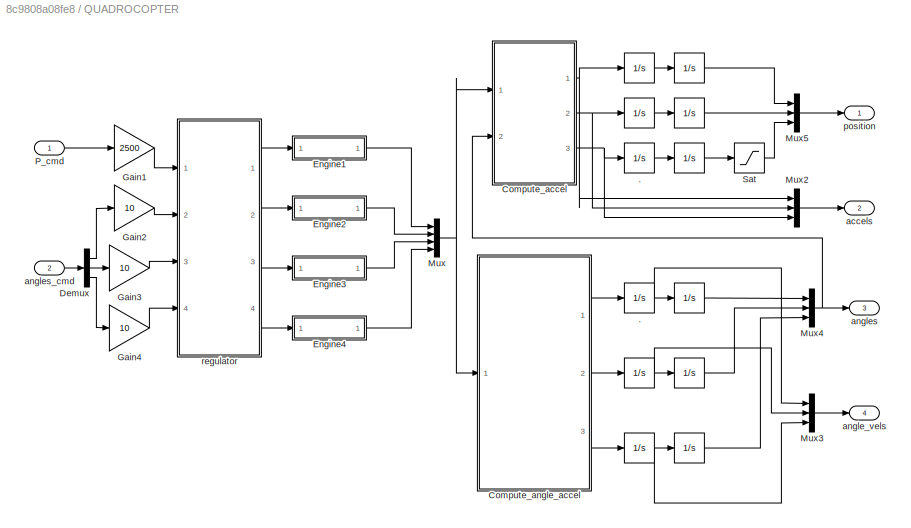
BLOCK [SubSystem] QUADROCOPTER
  FunctionWithSeparateData = off
  MaskHideContents = off
  MinAlgLoopOccurrences = off
  Opaque = off
  Ports = [2, 4]
  PropExecContextOutsideSubsystem = off
  RTWSystemCode = Auto
  RequestExecContextInheritance = off
BLOCK [Integrator] QUADROCOPTER/ 
  Ports = [1, 1]
BLOCK [Integrator] QUADROCOPTER/         
  Ports = [1, 1]
BLOCK [Integrator] QUADROCOPTER/          
  Ports = [1, 1]
BLOCK [Integrator] QUADROCOPTER/                          
  Ports = [1, 1]
BLOCK [Integrator] QUADROCOPTER/ .
  Ports = [1, 1]
BLOCK [Integrator] QUADROCOPTER/.
  Ports = [1, 1]
BLOCK [SubSystem] QUADROCOPTER/Compute_accel
  ErrorFcn = Stateflow.Translate.translate
  FunctionWithSeparateData = off
  MaskHideContents = off
  MinAlgLoopOccurrences = off
  Opaque = off
  PermitHierarchicalResolution = ExplicitOnly
  Ports = [2, 3]
  PropExecContextOutsideSubsystem = off
  RTWSystemCode = Auto
  RequestExecContextInheritance = off
  SFBlockType = MATLAB Function
  TreatAsAtomicUnit = on
BLOCK [Demux] QUADROCOPTER/Compute_accel/ Demux 
  Outputs = 1
  Ports = [1, 1]
BLOCK [S-Function] QUADROCOPTER/Compute_accel/ SFunction 
  EnableBusSupport = on
  FunctionName = sf_sfun
  PortCounts = [2 4]
  Ports = [2, 4]
  Tag = Stateflow S-Function lab2_next_level 6
BLOCK [Terminator] QUADROCOPTER/Compute_accel/ Terminator 
BLOCK [Inport] QUADROCOPTER/Compute_accel/P
  IconDisplay = Port number
BLOCK [Outport] QUADROCOPTER/Compute_accel/a_x
  IconDisplay = Port number
BLOCK [Outport] QUADROCOPTER/Compute_accel/a_y
  IconDisplay = Port number
  Port = 2
BLOCK [Outport] QUADROCOPTER/Compute_accel/a_z
  IconDisplay = Port number
  Port = 3
BLOCK [Inport] QUADROCOPTER/Compute_accel/angles
  IconDisplay = Port number
  Port = 2
BLOCK [SubSystem] QUADROCOPTER/Compute_angle_accel
  ErrorFcn = Stateflow.Translate.translate
  FunctionWithSeparateData = off
  MaskHideContents = off
  MinAlgLoopOccurrences = off
  Opaque = off
  PermitHierarchicalResolution = ExplicitOnly
  Ports = [1, 3]
  PropExecContextOutsideSubsystem = off
  RTWSystemCode = Auto
  RequestExecContextInheritance = off
  SFBlockType = MATLAB Function
  TreatAsAtomicUnit = on
BLOCK [Demux] QUADROCOPTER/Compute_angle_accel/ Demux 
  Outputs = 1
  Ports = [1, 1]
BLOCK [S-Function] QUADROCOPTER/Compute_angle_accel/ SFunction 
  EnableBusSupport = on
  FunctionName = sf_sfun
  PortCounts = [1 4]
  Ports = [1, 4]
  Tag = Stateflow S-Function lab2_next_level 7
BLOCK [Terminator] QUADROCOPTER/Compute_angle_accel/ Terminator 
BLOCK [Inport] QUADROCOPTER/Compute_angle_accel/P
  IconDisplay = Port number
BLOCK [Outport] QUADROCOPTER/Compute_angle_accel/ddpitch
  IconDisplay = Port number
  Port = 2
BLOCK [Outport] QUADROCOPTER/Compute_angle_accel/ddroll
  IconDisplay = Port number
BLOCK [Outport] QUADROCOPTER/Compute_angle_accel/ddyaw
  IconDisplay = Port number
  Port = 3
BLOCK [Demux] QUADROCOPTER/Demux
  DisplayOption = bar
  Outputs = 3
  Ports = [1, 3]
BLOCK [SubSystem] QUADROCOPTER/Engine1
  FunctionWithSeparateData = off
  MaskHideContents = off
  MinAlgLoopOccurrences = off
  Opaque = off
  Ports = [1, 1]
  PropExecContextOutsideSubsystem = off
  RTWSystemCode = Auto
  RequestExecContextInheritance = off
BLOCK [TransferFcn] QUADROCOPTER/Engine1/    
  Denominator = [0.01 1]
BLOCK [Inport] QUADROCOPTER/Engine1/InpP
  IconDisplay = Port number
BLOCK [Outport] QUADROCOPTER/Engine1/OutP
  IconDisplay = Port number
BLOCK [Saturate] QUADROCOPTER/Engine1/Saturation
  InputPortMap = u0
  LowerLimit = 0
  Ports = [1, 1]
  UpperLimit = 500
BLOCK [SubSystem] QUADROCOPTER/Engine2
  FunctionWithSeparateData = off
  MaskHideContents = off
  MinAlgLoopOccurrences = off
  Opaque = off
  Ports = [1, 1]
  PropExecContextOutsideSubsystem = off
  RTWSystemCode = Auto
  RequestExecContextInheritance = off
BLOCK [TransferFcn] QUADROCOPTER/Engine2/    
  Denominator = [0.01 1]
BLOCK [Inport] QUADROCOPTER/Engine2/InpP
  IconDisplay = Port number
BLOCK [Outport] QUADROCOPTER/Engine2/OutP
  IconDisplay = Port number
BLOCK [Saturate] QUADROCOPTER/Engine2/Saturation
  InputPortMap = u0
  LowerLimit = 0
  Ports = [1, 1]
  UpperLimit = 500
BLOCK [SubSystem] QUADROCOPTER/Engine3
  FunctionWithSeparateData = off
  MaskHideContents = off
  MinAlgLoopOccurrences = off
  Opaque = off
  Ports = [1, 1]
  PropExecContextOutsideSubsystem = off
  RTWSystemCode = Auto
  RequestExecContextInheritance = off
BLOCK [TransferFcn] QUADROCOPTER/Engine3/    
  Denominator = [0.01 1]
BLOCK [Inport] QUADROCOPTER/Engine3/InpP
  IconDisplay = Port number
BLOCK [Outport] QUADROCOPTER/Engine3/OutP
  IconDisplay = Port number
BLOCK [Saturate] QUADROCOPTER/Engine3/Saturation
  InputPortMap = u0
  LowerLimit = 0
  Ports = [1, 1]
  UpperLimit = 500
BLOCK [SubSystem] QUADROCOPTER/Engine4
  FunctionWithSeparateData = off
  MaskHideContents = off
  MinAlgLoopOccurrences = off
  Opaque = off
  Ports = [1, 1]
  PropExecContextOutsideSubsystem = off
  RTWSystemCode = Auto
  RequestExecContextInheritance = off
BLOCK [TransferFcn] QUADROCOPTER/Engine4/    
  Denominator = [0.01 1]
BLOCK [Inport] QUADROCOPTER/Engine4/InpP
  IconDisplay = Port number
BLOCK [Outport] QUADROCOPTER/Engine4/OutP
  IconDisplay = Port number
BLOCK [Saturate] QUADROCOPTER/Engine4/Saturation
  InputPortMap = u0
  LowerLimit = 0
  Ports = [1, 1]
  UpperLimit = 500
BLOCK [Gain] QUADROCOPTER/Gain1
  Gain = 2500
  OutDataTypeStr = Inherit: Inherit via internal rule
  ParamDataTypeStr = Inherit: Inherit via internal rule
  SaturateOnIntegerOverflow = off
BLOCK [Gain] QUADROCOPTER/Gain2
  Gain = 10
  OutDataTypeStr = Inherit: Inherit via internal rule
  ParamDataTypeStr = Inherit: Inherit via internal rule
  SaturateOnIntegerOverflow = off
BLOCK [Gain] QUADROCOPTER/Gain3
  Gain = 10
  OutDataTypeStr = Inherit: Inherit via internal rule
  ParamDataTypeStr = Inherit: Inherit via internal rule
  SaturateOnIntegerOverflow = off
BLOCK [Gain] QUADROCOPTER/Gain4
  Gain = 10
  OutDataTypeStr = Inherit: Inherit via internal rule
  ParamDataTypeStr = Inherit: Inherit via internal rule
  SaturateOnIntegerOverflow = off
BLOCK [Mux] QUADROCOPTER/Mux
  DisplayOption = bar
  Ports = [4, 1]
BLOCK [Mux] QUADROCOPTER/Mux2
  DisplayOption = bar
  Inputs = 3
  Ports = [3, 1]
BLOCK [Mux] QUADROCOPTER/Mux3
  DisplayOption = bar
  Inputs = 3
  Ports = [3, 1]
BLOCK [Mux] QUADROCOPTER/Mux4
  DisplayOption = bar
  Inputs = 3
  Ports = [3, 1]
BLOCK [Mux] QUADROCOPTER/Mux5
  DisplayOption = bar
  Inputs = 3
  Ports = [3, 1]
BLOCK [Inport] QUADROCOPTER/P_cmd
  IconDisplay = Port number
BLOCK [Saturate] QUADROCOPTER/Sat
  InputPortMap = u0
  LowerLimit = 0
  Ports = [1, 1]
  UpperLimit = 100000000
BLOCK [Outport] QUADROCOPTER/accels 
  IconDisplay = Port number
  Port = 2
BLOCK [Outport] QUADROCOPTER/angle_vels
  IconDisplay = Port number
  Port = 4
BLOCK [Outport] QUADROCOPTER/angles
  IconDisplay = Port number
  Port = 3
BLOCK [Inport] QUADROCOPTER/angles_cmd
  IconDisplay = Port number
  Port = 2
BLOCK [Outport] QUADROCOPTER/position 
  IconDisplay = Port number
BLOCK [SubSystem] QUADROCOPTER/regulator
  ErrorFcn = Stateflow.Translate.translate
  FunctionWithSeparateData = off
  MaskHideContents = off
  MinAlgLoopOccurrences = off
  Opaque = off
  PermitHierarchicalResolution = ExplicitOnly
  Ports = [4, 4]
  PropExecContextOutsideSubsystem = off
  RTWSystemCode = Auto
  RequestExecContextInheritance = off
  SFBlockType = MATLAB Function
  TreatAsAtomicUnit = on
BLOCK [Demux] QUADROCOPTER/regulator/ Demux 
  Outputs = 1
  Ports = [1, 1]
BLOCK [S-Function] QUADROCOPTER/regulator/ SFunction 
  EnableBusSupport = on
  FunctionName = sf_sfun
  PortCounts = [4 5]
  Ports = [4, 5]
  Tag = Stateflow S-Function lab2_next_level 2
BLOCK [Terminator] QUADROCOPTER/regulator/ Terminator 
BLOCK [Inport] QUADROCOPTER/regulator/P
  IconDisplay = Port number
BLOCK [Outport] QUADROCOPTER/regulator/P1
  IconDisplay = Port number
BLOCK [Outport] QUADROCOPTER/regulator/P2
  IconDisplay = Port number
  Port = 2
BLOCK [Outport] QUADROCOPTER/regulator/P3
  IconDisplay = Port number
  Port = 3
BLOCK [Outport] QUADROCOPTER/regulator/P4
  IconDisplay = Port number
  Port = 4
BLOCK [Inport] QUADROCOPTER/regulator/cmd1
  IconDisplay = Port number
  Port = 2
BLOCK [Inport] QUADROCOPTER/regulator/cmd2
  IconDisplay = Port number
  Port = 3
BLOCK [Inport] QUADROCOPTER/regulator/cmd3
  IconDisplay = Port number
  Port = 4
BLOCK [Scope] Scope
  DataFormat = StructureWithTime
  Floating = off
  LegendLocations = 0.83612      0.8222     0.26237    0.073495\n0.83612     0.51145     0.26237    0.073495\n0.86259     0.20267     0.18741    0.073495
  LimitDataPoints = off
  NumInputPorts = 3
  Ports = [3]
  SampleTime = 0
  SaveName = ScopeData5
  ShowLegends = on
  TimeRange = 4.335522661177009
  YMax = 55~0.55~-3.5e-05
  YMin = 0~2.77556e-17~-0.000125
  ZoomMode = yonly
BLOCK [Scope] Scope1
  DataFormat = StructureWithTime
  Floating = off
  LegendLocations = 0.83612      0.8222     0.15892    0.028924\n0.83612     0.51145     0.15892    0.028924\n0.86259     0.20267     0.15892    0.028924
  LimitDataPoints = off
  NumInputPorts = 3
  Ports = [3]
  SampleTime = 0
  ShowLegends = on
  YMax = 250~0.7~1
  YMin = -25~-0.5~-1
  ZoomMode = yonly
BLOCK [ToFile] To File
  Filename = angcop.mat
  Ports = [1]
  SaveFormat = Timeseries
BLOCK [ToFile] To File1
  Filename = angplat.mat
  Ports = [1]
  SaveFormat = Timeseries
BLOCK [ToFile] To File2
  Filename = poscop.mat
  Ports = [1]
  SaveFormat = Timeseries
BLOCK [SubSystem] VIEW
  FunctionWithSeparateData = off
  MaskHideContents = off
  MinAlgLoopOccurrences = off
  Opaque = off
  Ports = [4]
  PropExecContextOutsideSubsystem = off
  RTWSystemCode = Auto
  RequestExecContextInheritance = off
BLOCK [Clock] VIEW/Clock
BLOCK [Demux] VIEW/Demux
  DisplayOption = bar
  Outputs = 3
  Ports = [1, 3]
BLOCK [Demux] VIEW/Demux1
  DisplayOption = bar
  Outputs = 3
  Ports = [1, 3]
BLOCK [Demux] VIEW/Demux2
  DisplayOption = bar
  Outputs = 3
  Ports = [1, 3]
BLOCK [Math] VIEW/Math Function
  Operator = mod
  Ports = [2, 1]
BLOCK [SubSystem] VIEW/Visualisation
  ErrorFcn = Stateflow.Translate.translate
  FunctionWithSeparateData = off
  MaskHideContents = off
  MinAlgLoopOccurrences = off
  Opaque = off
  PermitHierarchicalResolution = ExplicitOnly
  Ports = [10]
  PropExecContextOutsideSubsystem = off
  RTWSystemCode = Auto
  RequestExecContextInheritance = off
  SFBlockType = MATLAB Function
  TreatAsAtomicUnit = on
BLOCK [Demux] VIEW/Visualisation/ Demux 
  Outputs = 1
  Ports = [1, 1]
BLOCK [S-Function] VIEW/Visualisation/ SFunction 
  EnableBusSupport = on
  FunctionName = sf_sfun
  PortCounts = [10 1]
  Ports = [10, 1]
  Tag = Stateflow S-Function lab2_next_level 5
BLOCK [Terminator] VIEW/Visualisation/ Terminator 
BLOCK [Inport] VIEW/Visualisation/C
  IconDisplay = Port number
  Port = 10
BLOCK [Inport] VIEW/Visualisation/pitch
  IconDisplay = Port number
  Port = 5
BLOCK [Inport] VIEW/Visualisation/ppitch
  IconDisplay = Port number
  Port = 8
BLOCK [Inport] VIEW/Visualisation/proll
  IconDisplay = Port number
  Port = 7
BLOCK [Inport] VIEW/Visualisation/pyaw
  IconDisplay = Port number
  Port = 9
BLOCK [Inport] VIEW/Visualisation/roll
  IconDisplay = Port number
  Port = 4
BLOCK [Inport] VIEW/Visualisation/x
  IconDisplay = Port number
BLOCK [Inport] VIEW/Visualisation/y
  IconDisplay = Port number
  Port = 2
BLOCK [Inport] VIEW/Visualisation/yaw
  IconDisplay = Port number
  Port = 6
BLOCK [Inport] VIEW/Visualisation/z
  IconDisplay = Port number
  Port = 3
BLOCK [Inport] VIEW/copter_angles
  IconDisplay = Port number
  Port = 2
BLOCK [Inport] VIEW/copter_position
  IconDisplay = Port number
BLOCK [Inport] VIEW/discret_viewing
  IconDisplay = Port number
  Port = 4
BLOCK [Inport] VIEW/platform_angles
  IconDisplay = Port number
  Port = 3
BLOCK [Constant] dt
  Value = 0.1
BLOCK [Constant] error_position
  Value = 10
BLOCK [SubSystem] model
  Commented = on
  FunctionWithSeparateData = off
  MaskHideContents = off
  MinAlgLoopOccurrences = off
  Opaque = off
  Ports = [4, 9]
  PropExecContextOutsideSubsystem = off
  RTWSystemCode = Auto
  RequestExecContextInheritance = off
BLOCK [From] model/From10
  CloseFcn = tagdialog Close
  GotoTag = pitch
  TagVisibility = global
BLOCK [From] model/From11
  CloseFcn = tagdialog Close
  GotoTag = pitch
  TagVisibility = global
BLOCK [From] model/From12
  CloseFcn = tagdialog Close
  GotoTag = roll
  TagVisibility = global
BLOCK [From] model/From9
  CloseFcn = tagdialog Close
  GotoTag = roll
  TagVisibility = global
BLOCK [Goto] model/Goto
  GotoTag = X
  TagVisibility = global
BLOCK [Goto] model/Goto1
  GotoTag = Y
  TagVisibility = global
BLOCK [Goto] model/Goto2
  GotoTag = Z
  TagVisibility = global
BLOCK [Goto] model/Goto3
  GotoTag = roll
  TagVisibility = global
BLOCK [Goto] model/Goto4
  GotoTag = pitch
  TagVisibility = global
BLOCK [Goto] model/Goto5
  GotoTag = yaw
  TagVisibility = global
BLOCK [Outport] model/Height 
  IconDisplay = Port number
BLOCK [Inport] model/P
  IconDisplay = Port number
BLOCK [Saturate] model/Saturation
  InputPortMap = u0
  LowerLimit = 0
  Ports = [1, 1]
  UpperLimit = 0.1
BLOCK [TransferFcn] model/Transfer Fcn3
  Denominator = [1 15]
  Numerator = [4*120*15/1.4]
BLOCK [Outport] model/X 
  IconDisplay = Port number
  Port = 2
BLOCK [SubSystem] model/XY modeling
  FunctionWithSeparateData = off
  MaskHideContents = off
  MinAlgLoopOccurrences = off
  Opaque = off
  Ports = [3, 2]
  PropExecContextOutsideSubsystem = off
  RTWSystemCode = Auto
  RequestExecContextInheritance = off
BLOCK [From] model/XY modeling/From
  GotoTag = landed
  TagVisibility = global
BLOCK [Integrator] model/XY modeling/Integrator3
  ExternalReset = level
  Ports = [2, 1]
BLOCK [Integrator] model/XY modeling/Integrator4
  LowerSaturationLimit = -0.5
  Ports = [1, 1]
BLOCK [Integrator] model/XY modeling/Integrator5
  ExternalReset = level
  Ports = [2, 1]
BLOCK [Integrator] model/XY modeling/Integrator6
  LowerSaturationLimit = -0.5
  Ports = [1, 1]
BLOCK [Gain] model/XY modeling/Kd1
  OutDataTypeStr = Inherit: Inherit via internal rule
  ParamDataTypeStr = Inherit: Inherit via internal rule
  SaturateOnIntegerOverflow = off
BLOCK [Gain] model/XY modeling/Kd2
  Gain = -1
  OutDataTypeStr = Inherit: Inherit via internal rule
  ParamDataTypeStr = Inherit: Inherit via internal rule
  SaturateOnIntegerOverflow = off
BLOCK [Product] model/XY modeling/Product3
  InputSameDT = off
  OutDataTypeStr = Inherit: Inherit via internal rule
  Ports = [2, 1]
  SaturateOnIntegerOverflow = off
BLOCK [Product] model/XY modeling/Product4
  InputSameDT = off
  OutDataTypeStr = Inherit: Inherit via internal rule
  Ports = [2, 1]
  SaturateOnIntegerOverflow = off
BLOCK [Trigonometry] model/XY modeling/Trigonometric Function2
  Ports = [1, 1]
BLOCK [Trigonometry] model/XY modeling/Trigonometric Function3
  Ports = [1, 1]
BLOCK [Outport] model/XY modeling/X
  IconDisplay = Port number
BLOCK [Outport] model/XY modeling/Y
  IconDisplay = Port number
  Port = 2
BLOCK [Inport] model/XY modeling/pitch
  IconDisplay = Port number
  Port = 2
BLOCK [Inport] model/XY modeling/roll
  IconDisplay = Port number
  Port = 3
BLOCK [Inport] model/XY modeling/thrust
  IconDisplay = Port number
BLOCK [Outport] model/Y 
  IconDisplay = Port number
  Port = 3
BLOCK [SubSystem] model/height modeling
  FunctionWithSeparateData = off
  MaskHideContents = off
  MinAlgLoopOccurrences = off
  Opaque = off
  Ports = [3, 1]
  PropExecContextOutsideSubsystem = off
  RTWSystemCode = Auto
  RequestExecContextInheritance = off
BLOCK [Goto] model/height modeling/Goto
  GotoTag = landed
  TagVisibility = global
BLOCK [Integrator] model/height modeling/Integrator
  ExternalReset = falling
  Ports = [2, 1]
BLOCK [Integrator] model/height modeling/Integrator2
  InitialCondition = 0.236
  LimitOutput = on
  LowerSaturationLimit = 0.236
  Ports = [1, 2]
  ShowSaturationPort = on
BLOCK [Product] model/height modeling/Product1
  InputSameDT = off
  OutDataTypeStr = Inherit: Inherit via internal rule
  Ports = [2, 1]
  SaturateOnIntegerOverflow = off
BLOCK [Product] model/height modeling/Product2
  InputSameDT = off
  OutDataTypeStr = Inherit: Inherit via internal rule
  Ports = [2, 1]
  SaturateOnIntegerOverflow = off
BLOCK [Sum] model/height modeling/Sum1
  IconShape = round
  InputSameDT = off
  Inputs = |++
  OutDataTypeStr = Inherit: Inherit via internal rule
  Ports = [2, 1]
  SaturateOnIntegerOverflow = off
BLOCK [Constant] model/height modeling/Takeoff throttle1
  Value = -9.8
BLOCK [Trigonometry] model/height modeling/Trigonometric Function
  Operator = cos
  Ports = [1, 1]
BLOCK [Trigonometry] model/height modeling/Trigonometric Function1
  Operator = cos
  Ports = [1, 1]
BLOCK [Outport] model/height modeling/height
  IconDisplay = Port number
BLOCK [Inport] model/height modeling/pitch
  IconDisplay = Port number
BLOCK [Inport] model/height modeling/roll
  IconDisplay = Port number
  Port = 2
BLOCK [Inport] model/height modeling/thrust
  IconDisplay = Port number
  Port = 3
BLOCK [Outport] model/pitch
  IconDisplay = Port number
  Port = 4
BLOCK [Inport] model/pitch cmd
  IconDisplay = Port number
  Port = 2
BLOCK [SubSystem] model/pitch model//controller
  FunctionWithSeparateData = off
  MaskHideContents = off
  MinAlgLoopOccurrences = off
  Opaque = off
  Ports = [1, 2]
  PropExecContextOutsideSubsystem = off
  RTWSystemCode = Auto
  RequestExecContextInheritance = off
BLOCK [Inport] model/pitch model//controller/pitch cmd
  IconDisplay = Port number
BLOCK [SubSystem] model/pitch model//controller/pitch model
  FunctionWithSeparateData = off
  MaskHideContents = off
  MinAlgLoopOccurrences = off
  Opaque = off
  Ports = [1, 2]
  PropExecContextOutsideSubsystem = off
  RTWSystemCode = Auto
  RequestExecContextInheritance = off
BLOCK [Demux] model/pitch model//controller/pitch model/Demux
  DisplayOption = bar
  Ports = [1, 4]
BLOCK [StateSpace] model/pitch model//controller/pitch model/State-Space
  A = [0 1 0 0; 0 0 1600 0; 0 0 -15 0; 1 0 0 0]
  B = [0;0;15;0]
  C = [1 0 0 0; 0 1 0 0; 0 0 1 0; 0 0 0 1]
  D = [0;0;0;0]
BLOCK [Terminator] model/pitch model//controller/pitch model/Terminator_1
BLOCK [Terminator] model/pitch model//controller/pitch model/Terminator_2
BLOCK [Outport] model/pitch model//controller/pitch model/pitch
  IconDisplay = Port number
BLOCK [Outport] model/pitch model//controller/pitch model/pitch rate
  IconDisplay = Port number
  Port = 2
BLOCK [Inport] model/pitch model//controller/pitch model/u_pitch
  IconDisplay = Port number
BLOCK [Outport] model/pitch model//controller/pitch rate
  IconDisplay = Port number
  Port = 2
BLOCK [Outport] model/pitch model//controller/pitch response
  IconDisplay = Port number
BLOCK [Outport] model/pitch rate
  IconDisplay = Port number
  Port = 5
BLOCK [Outport] model/roll
  IconDisplay = Port number
  Port = 6
BLOCK [Inport] model/roll cmd
  IconDisplay = Port number
  Port = 3
BLOCK [SubSystem] model/roll model//controller
  FunctionWithSeparateData = off
  MaskHideContents = off
  MinAlgLoopOccurrences = off
  Opaque = off
  Ports = [1, 2]
  PropExecContextOutsideSubsystem = off
  RTWSystemCode = Auto
  RequestExecContextInheritance = off
BLOCK [Inport] model/roll model//controller/roll cmd
  IconDisplay = Port number
BLOCK [SubSystem] model/roll model//controller/roll model
  FunctionWithSeparateData = off
  MaskHideContents = off
  MinAlgLoopOccurrences = off
  Opaque = off
  Ports = [1, 2]
  PropExecContextOutsideSubsystem = off
  RTWSystemCode = Auto
  RequestExecContextInheritance = off
BLOCK [Demux] model/roll model//controller/roll model/Demux
  DisplayOption = bar
  Ports = [1, 4]
BLOCK [StateSpace] model/roll model//controller/roll model/State-Space
  A = [0 1 0 0; 0 0 1600 0; 0 0 -15 0; 1 0 0 0]
  B = [0;0;15;0]
  C = [1 0 0 0; 0 1 0 0; 0 0 1 0; 0 0 0 1]
  D = [0;0;0;0]
BLOCK [Terminator] model/roll model//controller/roll model/Terminator_1
BLOCK [Terminator] model/roll model//controller/roll model/Terminator_2
BLOCK [Outport] model/roll model//controller/roll model/roll
  IconDisplay = Port number
BLOCK [Outport] model/roll model//controller/roll model/roll rate
  IconDisplay = Port number
  Port = 2
BLOCK [Inport] model/roll model//controller/roll model/u_roll
  IconDisplay = Port number
BLOCK [Outport] model/roll model//controller/roll rate
  IconDisplay = Port number
  Port = 2
BLOCK [Outport] model/roll model//controller/roll response
  IconDisplay = Port number
BLOCK [Outport] model/roll rate
  IconDisplay = Port number
  Port = 7
BLOCK [Outport] model/yaw
  IconDisplay = Port number
  Port = 8
BLOCK [Inport] model/yaw cmd
  IconDisplay = Port number
  Port = 4
BLOCK [SubSystem] model/yaw model//controller
  FunctionWithSeparateData = off
  MaskHideContents = off
  MinAlgLoopOccurrences = off
  Opaque = off
  Ports = [1, 2]
  PropExecContextOutsideSubsystem = off
  RTWSystemCode = Auto
  RequestExecContextInheritance = off
BLOCK [Inport] model/yaw model//controller/yaw cmd
  IconDisplay = Port number
BLOCK [SubSystem] model/yaw model//controller/yaw model
  FunctionWithSeparateData = off
  MaskHideContents = off
  MinAlgLoopOccurrences = off
  Opaque = off
  Ports = [1, 2]
  PropExecContextOutsideSubsystem = off
  RTWSystemCode = Auto
  RequestExecContextInheritance = off
BLOCK [Integrator] model/yaw model//controller/yaw model/Integrator5
  Ports = [1, 1]
BLOCK [Integrator] model/yaw model//controller/yaw model/Integrator6
  LowerSaturationLimit = -0.5
  Ports = [1, 1]
BLOCK [Gain] model/yaw model//controller/yaw model/gain
  Gain = 4*4/0.032
  OutDataTypeStr = Inherit: Inherit via internal rule
  ParamDataTypeStr = Inherit: Inherit via internal rule
  SaturateOnIntegerOverflow = off
BLOCK [Inport] model/yaw model//controller/yaw model/u_yaw
  IconDisplay = Port number
BLOCK [Outport] model/yaw model//controller/yaw model/yaw
  IconDisplay = Port number
BLOCK [Outport] model/yaw model//controller/yaw model/yaw rate
  IconDisplay = Port number
  Port = 2
BLOCK [Outport] model/yaw model//controller/yaw rate
  IconDisplay = Port number
  Port = 2
BLOCK [Outport] model/yaw model//controller/yaw response
  IconDisplay = Port number
BLOCK [Outport] model/yaw rate
  IconDisplay = Port number
  Port = 9
BLOCK [Constant] route
  SamplingMode = Frame based
  Value = [250,0,50;0,250,50;0,0,50;0,0,0]
  VectorParams1D = off
BLOCK [Constant] yaw
  Value = 0.5
LINE BINS/Accellerometr/ :1 -> BINS/Accellerometr/AdditionWhiteNoise 1:1
LINE BINS/Accellerometr/ :2 -> BINS/Accellerometr/AdditionWhiteNoise 1:2
LINE BINS/Accellerometr/ :3 -> BINS/Accellerometr/AdditionWhiteNoise 1:3
LINE BINS/Accellerometr/AdditionWhiteNoise 1/Band-Limited White Noise1:1 -> BINS/Accellerometr/AdditionWhiteNoise 1/Rate Transition2:1
LINE BINS/Accellerometr/AdditionWhiteNoise 1/Band-Limited White Noise2:1 -> BINS/Accellerometr/AdditionWhiteNoise 1/Rate Transition:1
LINE BINS/Accellerometr/AdditionWhiteNoise 1/Band-Limited White Noise:1 -> BINS/Accellerometr/AdditionWhiteNoise 1/Rate Transition1:1
LINE BINS/Accellerometr/AdditionWhiteNoise 1/In1:1 -> BINS/Accellerometr/AdditionWhiteNoise 1/Sum:2
LINE BINS/Accellerometr/AdditionWhiteNoise 1/In2:1 -> BINS/Accellerometr/AdditionWhiteNoise 1/Sum1:2
LINE BINS/Accellerometr/AdditionWhiteNoise 1/In3:1 -> BINS/Accellerometr/AdditionWhiteNoise 1/Sum2:2
LINE BINS/Accellerometr/AdditionWhiteNoise 1/Rate Transition1:1 -> BINS/Accellerometr/AdditionWhiteNoise 1/Sum1:1
LINE BINS/Accellerometr/AdditionWhiteNoise 1/Rate Transition2:1 -> BINS/Accellerometr/AdditionWhiteNoise 1/Sum2:1
LINE BINS/Accellerometr/AdditionWhiteNoise 1/Rate Transition:1 -> BINS/Accellerometr/AdditionWhiteNoise 1/Sum:1
LINE BINS/Accellerometr/AdditionWhiteNoise 1/Sum1:1 -> BINS/Accellerometr/AdditionWhiteNoise 1/Out2:1
LINE BINS/Accellerometr/AdditionWhiteNoise 1/Sum2:1 -> BINS/Accellerometr/AdditionWhiteNoise 1/Out3:1
LINE BINS/Accellerometr/AdditionWhiteNoise 1/Sum:1 -> BINS/Accellerometr/AdditionWhiteNoise 1/Out1:1
LINE BINS/Accellerometr/AdditionWhiteNoise 1:1 -> BINS/Accellerometr/Mux:1
LINE BINS/Accellerometr/AdditionWhiteNoise 1:2 -> BINS/Accellerometr/Mux:2
LINE BINS/Accellerometr/AdditionWhiteNoise 1:3 -> BINS/Accellerometr/Mux:3
LINE BINS/Accellerometr/Mux:1 -> BINS/Accellerometr/accel_out:1
LINE BINS/Accellerometr/accel_In:1 -> BINS/Accellerometr/ :2
LINE BINS/Accellerometr/angles:1 -> BINS/Accellerometr/ :1
NET BINS/Accellerometr:1 -> BINS/Solve:2, BINS/To File:1
LINE BINS/AngularVelocitySensors/Demux:1 -> BINS/AngularVelocitySensors/WhiteNoiseVector :1
LINE BINS/AngularVelocitySensors/Demux:2 -> BINS/AngularVelocitySensors/WhiteNoiseVector :2
LINE BINS/AngularVelocitySensors/Demux:3 -> BINS/AngularVelocitySensors/WhiteNoiseVector :3
LINE BINS/AngularVelocitySensors/Mux:1 -> BINS/AngularVelocitySensors/angle_vel_Nav_out:1
LINE BINS/AngularVelocitySensors/WhiteNoiseVector /Band-Limited White Noise1:1 -> BINS/AngularVelocitySensors/WhiteNoiseVector /Rate Transition2:1
LINE BINS/AngularVelocitySensors/WhiteNoiseVector /Band-Limited White Noise2:1 -> BINS/AngularVelocitySensors/WhiteNoiseVector /Rate Transition:1
LINE BINS/AngularVelocitySensors/WhiteNoiseVector /Band-Limited White Noise:1 -> BINS/AngularVelocitySensors/WhiteNoiseVector /Rate Transition1:1
LINE BINS/AngularVelocitySensors/WhiteNoiseVector /In1:1 -> BINS/AngularVelocitySensors/WhiteNoiseVector /Sum:2
LINE BINS/AngularVelocitySensors/WhiteNoiseVector /In2:1 -> BINS/AngularVelocitySensors/WhiteNoiseVector /Sum1:2
LINE BINS/AngularVelocitySensors/WhiteNoiseVector /In3:1 -> BINS/AngularVelocitySensors/WhiteNoiseVector /Sum2:2
LINE BINS/AngularVelocitySensors/WhiteNoiseVector /Rate Transition1:1 -> BINS/AngularVelocitySensors/WhiteNoiseVector /Sum1:1
LINE BINS/AngularVelocitySensors/WhiteNoiseVector /Rate Transition2:1 -> BINS/AngularVelocitySensors/WhiteNoiseVector /Sum2:1
LINE BINS/AngularVelocitySensors/WhiteNoiseVector /Rate Transition:1 -> BINS/AngularVelocitySensors/WhiteNoiseVector /Sum:1
LINE BINS/AngularVelocitySensors/WhiteNoiseVector /Sum1:1 -> BINS/AngularVelocitySensors/WhiteNoiseVector /Out2:1
LINE BINS/AngularVelocitySensors/WhiteNoiseVector /Sum2:1 -> BINS/AngularVelocitySensors/WhiteNoiseVector /Out3:1
LINE BINS/AngularVelocitySensors/WhiteNoiseVector /Sum:1 -> BINS/AngularVelocitySensors/WhiteNoiseVector /Out1:1
LINE BINS/AngularVelocitySensors/WhiteNoiseVector :1 -> BINS/AngularVelocitySensors/Mux:1
LINE BINS/AngularVelocitySensors/WhiteNoiseVector :2 -> BINS/AngularVelocitySensors/Mux:2
LINE BINS/AngularVelocitySensors/WhiteNoiseVector :3 -> BINS/AngularVelocitySensors/Mux:3
LINE BINS/AngularVelocitySensors/angle_vel_in:1 -> BINS/AngularVelocitySensors/Demux:1
NET BINS/AngularVelocitySensors:1 -> BINS/Solve:1, BINS/To File1:1, BINS/angle_vel_nav:1
NET BINS/Filtering_accel2/Demux:1 -> BINS/Filtering_accel2/Filter3:1, BINS/Filtering_accel2/Mux1:5
NET BINS/Filtering_accel2/Demux:2 -> BINS/Filtering_accel2/Filter1:1, BINS/Filtering_accel2/Mux2:5
NET BINS/Filtering_accel2/Demux:3 -> BINS/Filtering_accel2/Filter2:1, BINS/Filtering_accel2/Mux3:5
LINE BINS/Filtering_accel2/Filter1/Constant1:1 -> BINS/Filtering_accel2/Filter1/w1:2
LINE BINS/Filtering_accel2/Filter1/Constant2:1 -> BINS/Filtering_accel2/Filter1/wT:2
LINE BINS/Filtering_accel2/Filter1/Constant3:1 -> BINS/Filtering_accel2/Filter1/wH:2
NET BINS/Filtering_accel2/Filter1/Delay10:1 -> BINS/Filtering_accel2/Filter1/Delay9:1, BINS/Filtering_accel2/Filter1/Mux:6
NET BINS/Filtering_accel2/Filter1/Delay11:1 -> BINS/Filtering_accel2/Filter1/Delay10:1, BINS/Filtering_accel2/Filter1/Mux:7
NET BINS/Filtering_accel2/Filter1/Delay12:1 -> BINS/Filtering_accel2/Filter1/Delay8:1, BINS/Filtering_accel2/Filter1/Mux:9
LINE BINS/Filtering_accel2/Filter1/Delay3:1 -> BINS/Filtering_accel2/Filter1/Mux:1
NET BINS/Filtering_accel2/Filter1/Delay5:1 -> BINS/Filtering_accel2/Filter1/Delay3:1, BINS/Filtering_accel2/Filter1/Mux:2
NET BINS/Filtering_accel2/Filter1/Delay6:1 -> BINS/Filtering_accel2/Filter1/Delay5:1, BINS/Filtering_accel2/Filter1/Mux:3
NET BINS/Filtering_accel2/Filter1/Delay7:1 -> BINS/Filtering_accel2/Filter1/Delay6:1, BINS/Filtering_accel2/Filter1/Mux:4
NET BINS/Filtering_accel2/Filter1/Delay8:1 -> BINS/Filtering_accel2/Filter1/Delay11:1, BINS/Filtering_accel2/Filter1/Mux:8
NET BINS/Filtering_accel2/Filter1/Delay9:1 -> BINS/Filtering_accel2/Filter1/Delay7:1, BINS/Filtering_accel2/Filter1/Mux:5
NET BINS/Filtering_accel2/Filter1/In1:1 -> BINS/Filtering_accel2/Filter1/Delay12:1, BINS/Filtering_accel2/Filter1/Mux:10, BINS/Filtering_accel2/Filter1/Transfer Fcn:1
NET BINS/Filtering_accel2/Filter1/Mux:1 -> BINS/Filtering_accel2/Filter1/w1:1, BINS/Filtering_accel2/Filter1/wH:1, BINS/Filtering_accel2/Filter1/wT:1
LINE BINS/Filtering_accel2/Filter1/Transfer Fcn:1 -> BINS/Filtering_accel2/Filter1/Transfer:1
LINE BINS/Filtering_accel2/Filter1/w1:1 -> BINS/Filtering_accel2/Filter1/wLinear :1
LINE BINS/Filtering_accel2/Filter1/wH:1 -> BINS/Filtering_accel2/Filter1/wHann:1
LINE BINS/Filtering_accel2/Filter1/wT:1 -> BINS/Filtering_accel2/Filter1/wTriang:1
LINE BINS/Filtering_accel2/Filter1:1 -> BINS/Filtering_accel2/Mux2:1
LINE BINS/Filtering_accel2/Filter1:2 -> BINS/Filtering_accel2/Mux2:2
LINE BINS/Filtering_accel2/Filter1:3 -> BINS/Filtering_accel2/Mux2:3
NET BINS/Filtering_accel2/Filter1:4 -> BINS/Filtering_accel2/Mux2:4, BINS/Filtering_accel2/Mux:2
LINE BINS/Filtering_accel2/Filter2/Constant1:1 -> BINS/Filtering_accel2/Filter2/w1:2
LINE BINS/Filtering_accel2/Filter2/Constant2:1 -> BINS/Filtering_accel2/Filter2/wT:2
LINE BINS/Filtering_accel2/Filter2/Constant3:1 -> BINS/Filtering_accel2/Filter2/wH:2
NET BINS/Filtering_accel2/Filter2/Delay10:1 -> BINS/Filtering_accel2/Filter2/Delay9:1, BINS/Filtering_accel2/Filter2/Mux:6
NET BINS/Filtering_accel2/Filter2/Delay11:1 -> BINS/Filtering_accel2/Filter2/Delay10:1, BINS/Filtering_accel2/Filter2/Mux:7
NET BINS/Filtering_accel2/Filter2/Delay12:1 -> BINS/Filtering_accel2/Filter2/Delay8:1, BINS/Filtering_accel2/Filter2/Mux:9
LINE BINS/Filtering_accel2/Filter2/Delay3:1 -> BINS/Filtering_accel2/Filter2/Mux:1
NET BINS/Filtering_accel2/Filter2/Delay5:1 -> BINS/Filtering_accel2/Filter2/Delay3:1, BINS/Filtering_accel2/Filter2/Mux:2
NET BINS/Filtering_accel2/Filter2/Delay6:1 -> BINS/Filtering_accel2/Filter2/Delay5:1, BINS/Filtering_accel2/Filter2/Mux:3
NET BINS/Filtering_accel2/Filter2/Delay7:1 -> BINS/Filtering_accel2/Filter2/Delay6:1, BINS/Filtering_accel2/Filter2/Mux:4
NET BINS/Filtering_accel2/Filter2/Delay8:1 -> BINS/Filtering_accel2/Filter2/Delay11:1, BINS/Filtering_accel2/Filter2/Mux:8
NET BINS/Filtering_accel2/Filter2/Delay9:1 -> BINS/Filtering_accel2/Filter2/Delay7:1, BINS/Filtering_accel2/Filter2/Mux:5
NET BINS/Filtering_accel2/Filter2/In1:1 -> BINS/Filtering_accel2/Filter2/Delay12:1, BINS/Filtering_accel2/Filter2/Mux:10, BINS/Filtering_accel2/Filter2/Transfer Fcn:1
NET BINS/Filtering_accel2/Filter2/Mux:1 -> BINS/Filtering_accel2/Filter2/w1:1, BINS/Filtering_accel2/Filter2/wH:1, BINS/Filtering_accel2/Filter2/wT:1
LINE BINS/Filtering_accel2/Filter2/Transfer Fcn:1 -> BINS/Filtering_accel2/Filter2/Transfer:1
LINE BINS/Filtering_accel2/Filter2/w1:1 -> BINS/Filtering_accel2/Filter2/wLinear :1
LINE BINS/Filtering_accel2/Filter2/wH:1 -> BINS/Filtering_accel2/Filter2/wHann:1
LINE BINS/Filtering_accel2/Filter2/wT:1 -> BINS/Filtering_accel2/Filter2/wTriang:1
LINE BINS/Filtering_accel2/Filter2:1 -> BINS/Filtering_accel2/Mux3:1
LINE BINS/Filtering_accel2/Filter2:2 -> BINS/Filtering_accel2/Mux3:2
LINE BINS/Filtering_accel2/Filter2:3 -> BINS/Filtering_accel2/Mux3:3
NET BINS/Filtering_accel2/Filter2:4 -> BINS/Filtering_accel2/Mux3:4, BINS/Filtering_accel2/Mux:3
LINE BINS/Filtering_accel2/Filter3/Constant1:1 -> BINS/Filtering_accel2/Filter3/w1:2
LINE BINS/Filtering_accel2/Filter3/Constant2:1 -> BINS/Filtering_accel2/Filter3/wT:2
LINE BINS/Filtering_accel2/Filter3/Constant3:1 -> BINS/Filtering_accel2/Filter3/wH:2
NET BINS/Filtering_accel2/Filter3/Delay10:1 -> BINS/Filtering_accel2/Filter3/Delay9:1, BINS/Filtering_accel2/Filter3/Mux:6
NET BINS/Filtering_accel2/Filter3/Delay11:1 -> BINS/Filtering_accel2/Filter3/Delay10:1, BINS/Filtering_accel2/Filter3/Mux:7
NET BINS/Filtering_accel2/Filter3/Delay12:1 -> BINS/Filtering_accel2/Filter3/Delay8:1, BINS/Filtering_accel2/Filter3/Mux:9
LINE BINS/Filtering_accel2/Filter3/Delay3:1 -> BINS/Filtering_accel2/Filter3/Mux:1
NET BINS/Filtering_accel2/Filter3/Delay5:1 -> BINS/Filtering_accel2/Filter3/Delay3:1, BINS/Filtering_accel2/Filter3/Mux:2
NET BINS/Filtering_accel2/Filter3/Delay6:1 -> BINS/Filtering_accel2/Filter3/Delay5:1, BINS/Filtering_accel2/Filter3/Mux:3
NET BINS/Filtering_accel2/Filter3/Delay7:1 -> BINS/Filtering_accel2/Filter3/Delay6:1, BINS/Filtering_accel2/Filter3/Mux:4
NET BINS/Filtering_accel2/Filter3/Delay8:1 -> BINS/Filtering_accel2/Filter3/Delay11:1, BINS/Filtering_accel2/Filter3/Mux:8
NET BINS/Filtering_accel2/Filter3/Delay9:1 -> BINS/Filtering_accel2/Filter3/Delay7:1, BINS/Filtering_accel2/Filter3/Mux:5
NET BINS/Filtering_accel2/Filter3/In1:1 -> BINS/Filtering_accel2/Filter3/Delay12:1, BINS/Filtering_accel2/Filter3/Mux:10, BINS/Filtering_accel2/Filter3/Transfer Fcn:1
NET BINS/Filtering_accel2/Filter3/Mux:1 -> BINS/Filtering_accel2/Filter3/w1:1, BINS/Filtering_accel2/Filter3/wH:1, BINS/Filtering_accel2/Filter3/wT:1
LINE BINS/Filtering_accel2/Filter3/Transfer Fcn:1 -> BINS/Filtering_accel2/Filter3/Transfer:1
LINE BINS/Filtering_accel2/Filter3/w1:1 -> BINS/Filtering_accel2/Filter3/wLinear :1
LINE BINS/Filtering_accel2/Filter3/wH:1 -> BINS/Filtering_accel2/Filter3/wHann:1
LINE BINS/Filtering_accel2/Filter3/wT:1 -> BINS/Filtering_accel2/Filter3/wTriang:1
LINE BINS/Filtering_accel2/Filter3:1 -> BINS/Filtering_accel2/Mux1:1
LINE BINS/Filtering_accel2/Filter3:2 -> BINS/Filtering_accel2/Mux1:2
LINE BINS/Filtering_accel2/Filter3:3 -> BINS/Filtering_accel2/Mux1:3
NET BINS/Filtering_accel2/Filter3:4 -> BINS/Filtering_accel2/Mux1:4, BINS/Filtering_accel2/Mux:1
LINE BINS/Filtering_accel2/In1:1 -> BINS/Filtering_accel2/Demux:1
LINE BINS/Filtering_accel2/Mux1:1 -> BINS/Filtering_accel2/Scope:1
LINE BINS/Filtering_accel2/Mux2:1 -> BINS/Filtering_accel2/Scope:2
LINE BINS/Filtering_accel2/Mux3:1 -> BINS/Filtering_accel2/Scope:3
LINE BINS/Filtering_accel2/Mux:1 -> BINS/Filtering_accel2/Out1:1
NET BINS/Filtering_ang_vel2/Demux:1 -> BINS/Filtering_ang_vel2/Filter:1, BINS/Filtering_ang_vel2/Mux1:5
NET BINS/Filtering_ang_vel2/Demux:2 -> BINS/Filtering_ang_vel2/Filter1:1, BINS/Filtering_ang_vel2/Mux2:5
NET BINS/Filtering_ang_vel2/Demux:3 -> BINS/Filtering_ang_vel2/Filter2:1, BINS/Filtering_ang_vel2/Mux3:5
LINE BINS/Filtering_ang_vel2/Filter/Constant1:1 -> BINS/Filtering_ang_vel2/Filter/w1:2
LINE BINS/Filtering_ang_vel2/Filter/Constant2:1 -> BINS/Filtering_ang_vel2/Filter/wT:2
LINE BINS/Filtering_ang_vel2/Filter/Constant3:1 -> BINS/Filtering_ang_vel2/Filter/wH:2
NET BINS/Filtering_ang_vel2/Filter/Delay10:1 -> BINS/Filtering_ang_vel2/Filter/Delay9:1, BINS/Filtering_ang_vel2/Filter/Mux:6
NET BINS/Filtering_ang_vel2/Filter/Delay11:1 -> BINS/Filtering_ang_vel2/Filter/Delay10:1, BINS/Filtering_ang_vel2/Filter/Mux:7
NET BINS/Filtering_ang_vel2/Filter/Delay12:1 -> BINS/Filtering_ang_vel2/Filter/Delay8:1, BINS/Filtering_ang_vel2/Filter/Mux:9
LINE BINS/Filtering_ang_vel2/Filter/Delay3:1 -> BINS/Filtering_ang_vel2/Filter/Mux:1
NET BINS/Filtering_ang_vel2/Filter/Delay5:1 -> BINS/Filtering_ang_vel2/Filter/Delay3:1, BINS/Filtering_ang_vel2/Filter/Mux:2
NET BINS/Filtering_ang_vel2/Filter/Delay6:1 -> BINS/Filtering_ang_vel2/Filter/Delay5:1, BINS/Filtering_ang_vel2/Filter/Mux:3
NET BINS/Filtering_ang_vel2/Filter/Delay7:1 -> BINS/Filtering_ang_vel2/Filter/Delay6:1, BINS/Filtering_ang_vel2/Filter/Mux:4
NET BINS/Filtering_ang_vel2/Filter/Delay8:1 -> BINS/Filtering_ang_vel2/Filter/Delay11:1, BINS/Filtering_ang_vel2/Filter/Mux:8
NET BINS/Filtering_ang_vel2/Filter/Delay9:1 -> BINS/Filtering_ang_vel2/Filter/Delay7:1, BINS/Filtering_ang_vel2/Filter/Mux:5
NET BINS/Filtering_ang_vel2/Filter/In1:1 -> BINS/Filtering_ang_vel2/Filter/Delay12:1, BINS/Filtering_ang_vel2/Filter/Mux:10, BINS/Filtering_ang_vel2/Filter/Transfer Fcn:1
NET BINS/Filtering_ang_vel2/Filter/Mux:1 -> BINS/Filtering_ang_vel2/Filter/w1:1, BINS/Filtering_ang_vel2/Filter/wH:1, BINS/Filtering_ang_vel2/Filter/wT:1
LINE BINS/Filtering_ang_vel2/Filter/Transfer Fcn:1 -> BINS/Filtering_ang_vel2/Filter/Transfer:1
LINE BINS/Filtering_ang_vel2/Filter/w1:1 -> BINS/Filtering_ang_vel2/Filter/wLinear :1
LINE BINS/Filtering_ang_vel2/Filter/wH:1 -> BINS/Filtering_ang_vel2/Filter/wHann:1
LINE BINS/Filtering_ang_vel2/Filter/wT:1 -> BINS/Filtering_ang_vel2/Filter/wTriang:1
LINE BINS/Filtering_ang_vel2/Filter1/Constant1:1 -> BINS/Filtering_ang_vel2/Filter1/w1:2
LINE BINS/Filtering_ang_vel2/Filter1/Constant2:1 -> BINS/Filtering_ang_vel2/Filter1/wT:2
LINE BINS/Filtering_ang_vel2/Filter1/Constant3:1 -> BINS/Filtering_ang_vel2/Filter1/wH:2
NET BINS/Filtering_ang_vel2/Filter1/Delay10:1 -> BINS/Filtering_ang_vel2/Filter1/Delay9:1, BINS/Filtering_ang_vel2/Filter1/Mux:6
NET BINS/Filtering_ang_vel2/Filter1/Delay11:1 -> BINS/Filtering_ang_vel2/Filter1/Delay10:1, BINS/Filtering_ang_vel2/Filter1/Mux:7
NET BINS/Filtering_ang_vel2/Filter1/Delay12:1 -> BINS/Filtering_ang_vel2/Filter1/Delay8:1, BINS/Filtering_ang_vel2/Filter1/Mux:9
LINE BINS/Filtering_ang_vel2/Filter1/Delay3:1 -> BINS/Filtering_ang_vel2/Filter1/Mux:1
NET BINS/Filtering_ang_vel2/Filter1/Delay5:1 -> BINS/Filtering_ang_vel2/Filter1/Delay3:1, BINS/Filtering_ang_vel2/Filter1/Mux:2
NET BINS/Filtering_ang_vel2/Filter1/Delay6:1 -> BINS/Filtering_ang_vel2/Filter1/Delay5:1, BINS/Filtering_ang_vel2/Filter1/Mux:3
NET BINS/Filtering_ang_vel2/Filter1/Delay7:1 -> BINS/Filtering_ang_vel2/Filter1/Delay6:1, BINS/Filtering_ang_vel2/Filter1/Mux:4
NET BINS/Filtering_ang_vel2/Filter1/Delay8:1 -> BINS/Filtering_ang_vel2/Filter1/Delay11:1, BINS/Filtering_ang_vel2/Filter1/Mux:8
NET BINS/Filtering_ang_vel2/Filter1/Delay9:1 -> BINS/Filtering_ang_vel2/Filter1/Delay7:1, BINS/Filtering_ang_vel2/Filter1/Mux:5
NET BINS/Filtering_ang_vel2/Filter1/In1:1 -> BINS/Filtering_ang_vel2/Filter1/Delay12:1, BINS/Filtering_ang_vel2/Filter1/Mux:10, BINS/Filtering_ang_vel2/Filter1/Transfer Fcn:1
NET BINS/Filtering_ang_vel2/Filter1/Mux:1 -> BINS/Filtering_ang_vel2/Filter1/w1:1, BINS/Filtering_ang_vel2/Filter1/wH:1, BINS/Filtering_ang_vel2/Filter1/wT:1
LINE BINS/Filtering_ang_vel2/Filter1/Transfer Fcn:1 -> BINS/Filtering_ang_vel2/Filter1/Transfer:1
LINE BINS/Filtering_ang_vel2/Filter1/w1:1 -> BINS/Filtering_ang_vel2/Filter1/wLinear :1
LINE BINS/Filtering_ang_vel2/Filter1/wH:1 -> BINS/Filtering_ang_vel2/Filter1/wHann:1
LINE BINS/Filtering_ang_vel2/Filter1/wT:1 -> BINS/Filtering_ang_vel2/Filter1/wTriang:1
LINE BINS/Filtering_ang_vel2/Filter1:1 -> BINS/Filtering_ang_vel2/Mux2:1
LINE BINS/Filtering_ang_vel2/Filter1:2 -> BINS/Filtering_ang_vel2/Mux2:2
LINE BINS/Filtering_ang_vel2/Filter1:3 -> BINS/Filtering_ang_vel2/Mux2:3
NET BINS/Filtering_ang_vel2/Filter1:4 -> BINS/Filtering_ang_vel2/Mux2:4, BINS/Filtering_ang_vel2/Mux:2
LINE BINS/Filtering_ang_vel2/Filter2/Constant1:1 -> BINS/Filtering_ang_vel2/Filter2/w1:2
LINE BINS/Filtering_ang_vel2/Filter2/Constant2:1 -> BINS/Filtering_ang_vel2/Filter2/wT:2
LINE BINS/Filtering_ang_vel2/Filter2/Constant3:1 -> BINS/Filtering_ang_vel2/Filter2/wH:2
NET BINS/Filtering_ang_vel2/Filter2/Delay10:1 -> BINS/Filtering_ang_vel2/Filter2/Delay9:1, BINS/Filtering_ang_vel2/Filter2/Mux:6
NET BINS/Filtering_ang_vel2/Filter2/Delay11:1 -> BINS/Filtering_ang_vel2/Filter2/Delay10:1, BINS/Filtering_ang_vel2/Filter2/Mux:7
NET BINS/Filtering_ang_vel2/Filter2/Delay12:1 -> BINS/Filtering_ang_vel2/Filter2/Delay8:1, BINS/Filtering_ang_vel2/Filter2/Mux:9
LINE BINS/Filtering_ang_vel2/Filter2/Delay3:1 -> BINS/Filtering_ang_vel2/Filter2/Mux:1
NET BINS/Filtering_ang_vel2/Filter2/Delay5:1 -> BINS/Filtering_ang_vel2/Filter2/Delay3:1, BINS/Filtering_ang_vel2/Filter2/Mux:2
NET BINS/Filtering_ang_vel2/Filter2/Delay6:1 -> BINS/Filtering_ang_vel2/Filter2/Delay5:1, BINS/Filtering_ang_vel2/Filter2/Mux:3
NET BINS/Filtering_ang_vel2/Filter2/Delay7:1 -> BINS/Filtering_ang_vel2/Filter2/Delay6:1, BINS/Filtering_ang_vel2/Filter2/Mux:4
NET BINS/Filtering_ang_vel2/Filter2/Delay8:1 -> BINS/Filtering_ang_vel2/Filter2/Delay11:1, BINS/Filtering_ang_vel2/Filter2/Mux:8
NET BINS/Filtering_ang_vel2/Filter2/Delay9:1 -> BINS/Filtering_ang_vel2/Filter2/Delay7:1, BINS/Filtering_ang_vel2/Filter2/Mux:5
NET BINS/Filtering_ang_vel2/Filter2/In1:1 -> BINS/Filtering_ang_vel2/Filter2/Delay12:1, BINS/Filtering_ang_vel2/Filter2/Mux:10, BINS/Filtering_ang_vel2/Filter2/Transfer Fcn:1
NET BINS/Filtering_ang_vel2/Filter2/Mux:1 -> BINS/Filtering_ang_vel2/Filter2/w1:1, BINS/Filtering_ang_vel2/Filter2/wH:1, BINS/Filtering_ang_vel2/Filter2/wT:1
LINE BINS/Filtering_ang_vel2/Filter2/Transfer Fcn:1 -> BINS/Filtering_ang_vel2/Filter2/Transfer:1
LINE BINS/Filtering_ang_vel2/Filter2/w1:1 -> BINS/Filtering_ang_vel2/Filter2/wLinear :1
LINE BINS/Filtering_ang_vel2/Filter2/wH:1 -> BINS/Filtering_ang_vel2/Filter2/wHann:1
LINE BINS/Filtering_ang_vel2/Filter2/wT:1 -> BINS/Filtering_ang_vel2/Filter2/wTriang:1
LINE BINS/Filtering_ang_vel2/Filter2:1 -> BINS/Filtering_ang_vel2/Mux3:1
LINE BINS/Filtering_ang_vel2/Filter2:2 -> BINS/Filtering_ang_vel2/Mux3:2
LINE BINS/Filtering_ang_vel2/Filter2:3 -> BINS/Filtering_ang_vel2/Mux3:3
NET BINS/Filtering_ang_vel2/Filter2:4 -> BINS/Filtering_ang_vel2/Mux3:4, BINS/Filtering_ang_vel2/Mux:3
LINE BINS/Filtering_ang_vel2/Filter:1 -> BINS/Filtering_ang_vel2/Mux1:1
LINE BINS/Filtering_ang_vel2/Filter:2 -> BINS/Filtering_ang_vel2/Mux1:2
LINE BINS/Filtering_ang_vel2/Filter:3 -> BINS/Filtering_ang_vel2/Mux1:3
NET BINS/Filtering_ang_vel2/Filter:4 -> BINS/Filtering_ang_vel2/Mux1:4, BINS/Filtering_ang_vel2/Mux:1
LINE BINS/Filtering_ang_vel2/In1:1 -> BINS/Filtering_ang_vel2/Demux:1
LINE BINS/Filtering_ang_vel2/Mux1:1 -> BINS/Filtering_ang_vel2/Scope:1
LINE BINS/Filtering_ang_vel2/Mux2:1 -> BINS/Filtering_ang_vel2/Scope:2
LINE BINS/Filtering_ang_vel2/Mux3:1 -> BINS/Filtering_ang_vel2/Scope:3
LINE BINS/Filtering_ang_vel2/Mux:1 -> BINS/Filtering_ang_vel2/Out1:1
LINE BINS/Solve/  :1 -> BINS/Solve/Integrator1:1
LINE BINS/Solve/  :2 -> BINS/Solve/Integrator3:1
LINE BINS/Solve/  :3 -> BINS/Solve/Integrator2:1
LINE BINS/Solve/Integrator1:1 -> BINS/Solve/Integrator4:1
LINE BINS/Solve/Integrator2:1 -> BINS/Solve/Integrator6:1
LINE BINS/Solve/Integrator3:1 -> BINS/Solve/Integrator5:1
LINE BINS/Solve/Integrator4:1 -> BINS/Solve/Mux:1
LINE BINS/Solve/Integrator5:1 -> BINS/Solve/Mux:2
LINE BINS/Solve/Integrator6:1 -> BINS/Solve/Mux:3
NET BINS/Solve/Integrator9:1 -> BINS/Solve/  :1, BINS/Solve/angles_out:1
LINE BINS/Solve/Mux:1 -> BINS/Solve/position_out:1
LINE BINS/Solve/accel_in:1 -> BINS/Solve/  :2
LINE BINS/Solve/angle_vel_in:1 -> BINS/Solve/Integrator9:1
LINE BINS/Solve:1 -> BINS/position:1
LINE BINS/Solve:2 -> BINS/angles:1
LINE BINS/accels_copter:1 -> BINS/Accellerometr:2
LINE BINS/angle_vels_copter:1 -> BINS/AngularVelocitySensors:1
LINE BINS/angles_copter:1 -> BINS/Accellerometr:1
LINE BINS:1 -> ControlSystem:1
LINE BINS:2 -> ControlSystem:4
LINE BINS:3 -> PLATFORM:1
LINE ControlSystem/Constant1:1 -> ControlSystem/routing:7
LINE ControlSystem/Demux1:1 -> ControlSystem/Sum4:2
LINE ControlSystem/Demux1:2 -> ControlSystem/Sum2:2
LINE ControlSystem/Demux1:3 -> ControlSystem/Sum5:1
NET ControlSystem/Demux:1 -> ControlSystem/Sum1:2, ControlSystem/routing:4
NET ControlSystem/Demux:2 -> ControlSystem/Sum3:2, ControlSystem/routing:5
NET ControlSystem/Demux:3 -> ControlSystem/Sum:2, ControlSystem/routing:6
NET ControlSystem/H:1 -> ControlSystem/Sum:1, ControlSystem/routing:3
LINE ControlSystem/Mux:1 -> ControlSystem/angles_cmd:1
LINE ControlSystem/PID1/Derivative:1 -> ControlSystem/PID1/Sum1:3
LINE ControlSystem/PID1/Gain1:1 -> ControlSystem/PID1/Integrator:1
LINE ControlSystem/PID1/Gain2:1 -> ControlSystem/PID1/Derivative:1
LINE ControlSystem/PID1/Gain3:1 -> ControlSystem/PID1/Sum1:1
LINE ControlSystem/PID1/Gain:1 -> ControlSystem/PID1/Gain3:1
NET ControlSystem/PID1/In1:1 -> ControlSystem/PID1/Gain1:1, ControlSystem/PID1/Gain2:1, ControlSystem/PID1/Gain:1
LINE ControlSystem/PID1/Integrator:1 -> ControlSystem/PID1/Sum1:2
LINE ControlSystem/PID1/Sum1:1 -> ControlSystem/PID1/Out1:1
LINE ControlSystem/PID1:1 -> ControlSystem/Saturation:1
LINE ControlSystem/PID2/Derivative:1 -> ControlSystem/PID2/Sum1:3
LINE ControlSystem/PID2/Gain1:1 -> ControlSystem/PID2/Integrator:1
LINE ControlSystem/PID2/Gain2:1 -> ControlSystem/PID2/Derivative:1
LINE ControlSystem/PID2/Gain3:1 -> ControlSystem/PID2/Sum1:1
LINE ControlSystem/PID2/Gain:1 -> ControlSystem/PID2/Gain3:1
NET ControlSystem/PID2/In1:1 -> ControlSystem/PID2/Gain1:1, ControlSystem/PID2/Gain2:1, ControlSystem/PID2/Gain:1
LINE ControlSystem/PID2/Integrator:1 -> ControlSystem/PID2/Sum1:2
LINE ControlSystem/PID2/Sum1:1 -> ControlSystem/PID2/Out1:1
LINE ControlSystem/PID2:1 -> ControlSystem/Saturation2:1
LINE ControlSystem/PID3/Derivative:1 -> ControlSystem/PID3/Sum1:3
LINE ControlSystem/PID3/Gain1:1 -> ControlSystem/PID3/Integrator:1
LINE ControlSystem/PID3/Gain2:1 -> ControlSystem/PID3/Derivative:1
LINE ControlSystem/PID3/Gain3:1 -> ControlSystem/PID3/Sum1:1
LINE ControlSystem/PID3/Gain:1 -> ControlSystem/PID3/Gain3:1
NET ControlSystem/PID3/In1:1 -> ControlSystem/PID3/Gain1:1, ControlSystem/PID3/Gain2:1, ControlSystem/PID3/Gain:1
LINE ControlSystem/PID3/Integrator:1 -> ControlSystem/PID3/Sum1:2
LINE ControlSystem/PID3/Sum1:1 -> ControlSystem/PID3/Out1:1
LINE ControlSystem/PID3:1 -> ControlSystem/Saturation3:1
LINE ControlSystem/PID4/Derivative:1 -> ControlSystem/PID4/Sum1:3
LINE ControlSystem/PID4/Gain1:1 -> ControlSystem/PID4/Integrator:1
LINE ControlSystem/PID4/Gain2:1 -> ControlSystem/PID4/Derivative:1
LINE ControlSystem/PID4/Gain3:1 -> ControlSystem/PID4/Sum1:1
LINE ControlSystem/PID4/Gain:1 -> ControlSystem/PID4/Gain3:1
NET ControlSystem/PID4/In1:1 -> ControlSystem/PID4/Gain1:1, ControlSystem/PID4/Gain2:1, ControlSystem/PID4/Gain:1
LINE ControlSystem/PID4/Integrator:1 -> ControlSystem/PID4/Sum1:2
LINE ControlSystem/PID4/Sum1:1 -> ControlSystem/PID4/Out1:1
LINE ControlSystem/PID4:1 -> ControlSystem/Sum4:1
LINE ControlSystem/PID5/Derivative:1 -> ControlSystem/PID5/Sum1:3
LINE ControlSystem/PID5/Gain1:1 -> ControlSystem/PID5/Integrator:1
LINE ControlSystem/PID5/Gain2:1 -> ControlSystem/PID5/Derivative:1
LINE ControlSystem/PID5/Gain3:1 -> ControlSystem/PID5/Sum1:1
LINE ControlSystem/PID5/Gain:1 -> ControlSystem/PID5/Gain3:1
NET ControlSystem/PID5/In1:1 -> ControlSystem/PID5/Gain1:1, ControlSystem/PID5/Gain2:1, ControlSystem/PID5/Gain:1
LINE ControlSystem/PID5/Integrator:1 -> ControlSystem/PID5/Sum1:2
LINE ControlSystem/PID5/Sum1:1 -> ControlSystem/PID5/Out1:1
LINE ControlSystem/PID5:1 -> ControlSystem/Sum2:1
LINE ControlSystem/PID6/Derivative:1 -> ControlSystem/PID6/Sum1:3
LINE ControlSystem/PID6/Gain1:1 -> ControlSystem/PID6/Integrator:1
LINE ControlSystem/PID6/Gain2:1 -> ControlSystem/PID6/Derivative:1
LINE ControlSystem/PID6/Gain3:1 -> ControlSystem/PID6/Sum1:1
LINE ControlSystem/PID6/Gain:1 -> ControlSystem/PID6/Gain3:1
NET ControlSystem/PID6/In1:1 -> ControlSystem/PID6/Gain1:1, ControlSystem/PID6/Gain2:1, ControlSystem/PID6/Gain:1
LINE ControlSystem/PID6/Integrator:1 -> ControlSystem/PID6/Sum1:2
LINE ControlSystem/PID6/Sum1:1 -> ControlSystem/PID6/Out1:1
LINE ControlSystem/PID6:1 -> ControlSystem/Saturation1:1
LINE ControlSystem/Saturation1:1 -> ControlSystem/Mux:3
LINE ControlSystem/Saturation2:1 -> ControlSystem/Mux:2
LINE ControlSystem/Saturation3:1 -> ControlSystem/Mux:1
LINE ControlSystem/Saturation:1 -> ControlSystem/P_cmd:1
LINE ControlSystem/Sum1:1 -> ControlSystem/PID5:1
LINE ControlSystem/Sum2:1 -> ControlSystem/PID2:1
LINE ControlSystem/Sum3:1 -> ControlSystem/PID4:1
LINE ControlSystem/Sum4:1 -> ControlSystem/PID3:1
LINE ControlSystem/Sum5:1 -> ControlSystem/PID6:1
LINE ControlSystem/Sum:1 -> ControlSystem/PID1:1
NET ControlSystem/X:1 -> ControlSystem/Sum1:1, ControlSystem/routing:1
NET ControlSystem/Y:1 -> ControlSystem/Sum3:1, ControlSystem/routing:2
LINE ControlSystem/angles:1 -> ControlSystem/Demux1:1
LINE ControlSystem/input_error:1 -> ControlSystem/routing:8
LINE ControlSystem/input_route:1 -> ControlSystem/routing:9
LINE ControlSystem/position :1 -> ControlSystem/Demux:1
LINE ControlSystem/yaw:1 -> ControlSystem/Sum5:2
LINE ControlSystem:1 -> QUADROCOPTER:1
LINE ControlSystem:2 -> QUADROCOPTER:2
LINE ControlSystemOrigin/Constant1:1 -> ControlSystemOrigin/MATLAB Function:7
NET ControlSystemOrigin/H:1 -> ControlSystemOrigin/MATLAB Function:3, ControlSystemOrigin/Sum:1
LINE ControlSystemOrigin/PID/Derivative:1 -> ControlSystemOrigin/PID/Sum1:3
LINE ControlSystemOrigin/PID/Gain1:1 -> ControlSystemOrigin/PID/Integrator:1
LINE ControlSystemOrigin/PID/Gain2:1 -> ControlSystemOrigin/PID/Derivative:1
LINE ControlSystemOrigin/PID/Gain3:1 -> ControlSystemOrigin/PID/Sum1:1
LINE ControlSystemOrigin/PID/Gain:1 -> ControlSystemOrigin/PID/Gain3:1
NET ControlSystemOrigin/PID/In1:1 -> ControlSystemOrigin/PID/Gain1:1, ControlSystemOrigin/PID/Gain2:1, ControlSystemOrigin/PID/Gain:1
LINE ControlSystemOrigin/PID/Integrator:1 -> ControlSystemOrigin/PID/Sum1:2
LINE ControlSystemOrigin/PID/Sum1:1 -> ControlSystemOrigin/PID/Out1:1
LINE ControlSystemOrigin/PID1/Derivative:1 -> ControlSystemOrigin/PID1/Sum1:3
LINE ControlSystemOrigin/PID1/Gain1:1 -> ControlSystemOrigin/PID1/Integrator:1
LINE ControlSystemOrigin/PID1/Gain2:1 -> ControlSystemOrigin/PID1/Derivative:1
LINE ControlSystemOrigin/PID1/Gain3:1 -> ControlSystemOrigin/PID1/Sum1:1
LINE ControlSystemOrigin/PID1/Gain:1 -> ControlSystemOrigin/PID1/Gain3:1
NET ControlSystemOrigin/PID1/In1:1 -> ControlSystemOrigin/PID1/Gain1:1, ControlSystemOrigin/PID1/Gain2:1, ControlSystemOrigin/PID1/Gain:1
LINE ControlSystemOrigin/PID1/Integrator:1 -> ControlSystemOrigin/PID1/Sum1:2
LINE ControlSystemOrigin/PID1/Sum1:1 -> ControlSystemOrigin/PID1/Out1:1
LINE ControlSystemOrigin/PID1:1 -> ControlSystemOrigin/Saturation2:1
LINE ControlSystemOrigin/PID2/Derivative:1 -> ControlSystemOrigin/PID2/Sum1:3
LINE ControlSystemOrigin/PID2/Gain1:1 -> ControlSystemOrigin/PID2/Integrator:1
LINE ControlSystemOrigin/PID2/Gain2:1 -> ControlSystemOrigin/PID2/Derivative:1
LINE ControlSystemOrigin/PID2/Gain3:1 -> ControlSystemOrigin/PID2/Sum1:1
LINE ControlSystemOrigin/PID2/Gain:1 -> ControlSystemOrigin/PID2/Gain3:1
NET ControlSystemOrigin/PID2/In1:1 -> ControlSystemOrigin/PID2/Gain1:1, ControlSystemOrigin/PID2/Gain2:1, ControlSystemOrigin/PID2/Gain:1
LINE ControlSystemOrigin/PID2/Integrator:1 -> ControlSystemOrigin/PID2/Sum1:2
LINE ControlSystemOrigin/PID2/Sum1:1 -> ControlSystemOrigin/PID2/Out1:1
LINE ControlSystemOrigin/PID2:1 -> ControlSystemOrigin/Sum2:1
LINE ControlSystemOrigin/PID3/Derivative:1 -> ControlSystemOrigin/PID3/Sum1:3
LINE ControlSystemOrigin/PID3/Gain1:1 -> ControlSystemOrigin/PID3/Integrator:1
LINE ControlSystemOrigin/PID3/Gain2:1 -> ControlSystemOrigin/PID3/Derivative:1
LINE ControlSystemOrigin/PID3/Gain3:1 -> ControlSystemOrigin/PID3/Sum1:1
LINE ControlSystemOrigin/PID3/Gain:1 -> ControlSystemOrigin/PID3/Gain3:1
NET ControlSystemOrigin/PID3/In1:1 -> ControlSystemOrigin/PID3/Gain1:1, ControlSystemOrigin/PID3/Gain2:1, ControlSystemOrigin/PID3/Gain:1
LINE ControlSystemOrigin/PID3/Integrator:1 -> ControlSystemOrigin/PID3/Sum1:2
LINE ControlSystemOrigin/PID3/Sum1:1 -> ControlSystemOrigin/PID3/Out1:1
LINE ControlSystemOrigin/PID3:1 -> ControlSystemOrigin/Saturation3:1
LINE ControlSystemOrigin/PID5/Derivative:1 -> ControlSystemOrigin/PID5/Sum1:3
LINE ControlSystemOrigin/PID5/Gain1:1 -> ControlSystemOrigin/PID5/Integrator:1
LINE ControlSystemOrigin/PID5/Gain2:1 -> ControlSystemOrigin/PID5/Derivative:1
LINE ControlSystemOrigin/PID5/Gain3:1 -> ControlSystemOrigin/PID5/Sum1:1
LINE ControlSystemOrigin/PID5/Gain:1 -> ControlSystemOrigin/PID5/Gain3:1
NET ControlSystemOrigin/PID5/In1:1 -> ControlSystemOrigin/PID5/Gain1:1, ControlSystemOrigin/PID5/Gain2:1, ControlSystemOrigin/PID5/Gain:1
LINE ControlSystemOrigin/PID5/Integrator:1 -> ControlSystemOrigin/PID5/Sum1:2
LINE ControlSystemOrigin/PID5/Sum1:1 -> ControlSystemOrigin/PID5/Out1:1
LINE ControlSystemOrigin/PID6/Derivative:1 -> ControlSystemOrigin/PID6/Sum1:3
LINE ControlSystemOrigin/PID6/Gain1:1 -> ControlSystemOrigin/PID6/Integrator:1
LINE ControlSystemOrigin/PID6/Gain2:1 -> ControlSystemOrigin/PID6/Derivative:1
LINE ControlSystemOrigin/PID6/Gain3:1 -> ControlSystemOrigin/PID6/Sum1:1
LINE ControlSystemOrigin/PID6/Gain:1 -> ControlSystemOrigin/PID6/Gain3:1
NET ControlSystemOrigin/PID6/In1:1 -> ControlSystemOrigin/PID6/Gain1:1, ControlSystemOrigin/PID6/Gain2:1, ControlSystemOrigin/PID6/Gain:1
LINE ControlSystemOrigin/PID6/Integrator:1 -> ControlSystemOrigin/PID6/Sum1:2
LINE ControlSystemOrigin/PID6/Sum1:1 -> ControlSystemOrigin/PID6/Out1:1
LINE ControlSystemOrigin/PID7/Derivative:1 -> ControlSystemOrigin/PID7/Sum1:3
LINE ControlSystemOrigin/PID7/Gain1:1 -> ControlSystemOrigin/PID7/Integrator:1
LINE ControlSystemOrigin/PID7/Gain2:1 -> ControlSystemOrigin/PID7/Derivative:1
LINE ControlSystemOrigin/PID7/Gain3:1 -> ControlSystemOrigin/PID7/Sum1:1
LINE ControlSystemOrigin/PID7/Gain:1 -> ControlSystemOrigin/PID7/Gain3:1
NET ControlSystemOrigin/PID7/In1:1 -> ControlSystemOrigin/PID7/Gain1:1, ControlSystemOrigin/PID7/Gain2:1, ControlSystemOrigin/PID7/Gain:1
LINE ControlSystemOrigin/PID7/Integrator:1 -> ControlSystemOrigin/PID7/Sum1:2
LINE ControlSystemOrigin/PID7/Sum1:1 -> ControlSystemOrigin/PID7/Out1:1
LINE ControlSystemOrigin/PID7:1 -> ControlSystemOrigin/Sum4:1
LINE ControlSystemOrigin/PID:1 -> ControlSystemOrigin/Saturation:1
LINE ControlSystemOrigin/Saturation2:1 -> ControlSystemOrigin/outputPithCmd:1
LINE ControlSystemOrigin/Saturation3:1 -> ControlSystemOrigin/outputRollCmd:1
LINE ControlSystemOrigin/Saturation:1 -> ControlSystemOrigin/outputP:1
LINE ControlSystemOrigin/Sum1:1 -> ControlSystemOrigin/PID2:1
LINE ControlSystemOrigin/Sum2:1 -> ControlSystemOrigin/PID1:1
LINE ControlSystemOrigin/Sum3:1 -> ControlSystemOrigin/PID7:1
LINE ControlSystemOrigin/Sum4:1 -> ControlSystemOrigin/PID3:1
LINE ControlSystemOrigin/Sum:1 -> ControlSystemOrigin/PID:1
NET ControlSystemOrigin/X:1 -> ControlSystemOrigin/MATLAB Function:1, ControlSystemOrigin/Sum1:1
NET ControlSystemOrigin/Y:1 -> ControlSystemOrigin/MATLAB Function:2, ControlSystemOrigin/Sum3:1
LINE ControlSystemOrigin/inputError:1 -> ControlSystemOrigin/MATLAB Function:8
NET ControlSystemOrigin/inputH:1 -> ControlSystemOrigin/MATLAB Function:6, ControlSystemOrigin/Sum:2
LINE ControlSystemOrigin/inputPitch:1 -> ControlSystemOrigin/Sum2:2
LINE ControlSystemOrigin/inputRoll:1 -> ControlSystemOrigin/Sum4:2
LINE ControlSystemOrigin/inputRouteMatrix:1 -> ControlSystemOrigin/MATLAB Function:9
NET ControlSystemOrigin/inputX:1 -> ControlSystemOrigin/MATLAB Function:4, ControlSystemOrigin/Sum1:2
NET ControlSystemOrigin/inputY:1 -> ControlSystemOrigin/MATLAB Function:5, ControlSystemOrigin/Sum3:2
LINE PLATFORM/JOINT_MOVEMENT/ :1 -> PLATFORM/JOINT_MOVEMENT/Integrator6:1
NET PLATFORM/JOINT_MOVEMENT/Demux:3 -> PLATFORM/JOINT_MOVEMENT/ :1, PLATFORM/JOINT_MOVEMENT/yaw:1
NET PLATFORM/JOINT_MOVEMENT/Integrator6:1 -> PLATFORM/JOINT_MOVEMENT/Demux:1, PLATFORM/JOINT_MOVEMENT/Sum:1
LINE PLATFORM/JOINT_MOVEMENT/Sum:1 -> PLATFORM/JOINT_MOVEMENT/ang:1
LINE PLATFORM/JOINT_MOVEMENT/ang_vel_real:1 -> PLATFORM/JOINT_MOVEMENT/ :2
LINE PLATFORM/JOINT_MOVEMENT/anles_from_engine:1 -> PLATFORM/JOINT_MOVEMENT/Sum:2
LINE PLATFORM/JOINT_MOVEMENT:1 -> PLATFORM/STABILIZATION:2
LINE PLATFORM/JOINT_MOVEMENT:2 -> PLATFORM/angles:1
LINE PLATFORM/STABILIZATION/ :1 -> PLATFORM/STABILIZATION/Integrator8:1
LINE PLATFORM/STABILIZATION/ :2 -> PLATFORM/STABILIZATION/Integrator7:1
LINE PLATFORM/STABILIZATION/ :3 -> PLATFORM/STABILIZATION/Integrator2:1
LINE PLATFORM/STABILIZATION/EngineRoll1/Band-Limited White Noise2:1 -> PLATFORM/STABILIZATION/EngineRoll1/Rate Transition:1
LINE PLATFORM/STABILIZATION/EngineRoll1/Gain:1 -> PLATFORM/STABILIZATION/EngineRoll1/Sum2:1
LINE PLATFORM/STABILIZATION/EngineRoll1/Integrator:1 -> PLATFORM/STABILIZATION/EngineRoll1/angleOut:1
LINE PLATFORM/STABILIZATION/EngineRoll1/Sum2:1 -> PLATFORM/STABILIZATION/EngineRoll1/Transfer Fcn:1
LINE PLATFORM/STABILIZATION/EngineRoll1/Transfer Fcn:1 -> PLATFORM/STABILIZATION/EngineRoll1/Integrator:1
LINE PLATFORM/STABILIZATION/EngineRoll1/angleIn:1 -> PLATFORM/STABILIZATION/EngineRoll1/Gain:1
NET PLATFORM/STABILIZATION/EngineRoll1:1 -> PLATFORM/STABILIZATION/Mux:1, PLATFORM/STABILIZATION/Sum1:2
LINE PLATFORM/STABILIZATION/EngineRoll2/Band-Limited White Noise2:1 -> PLATFORM/STABILIZATION/EngineRoll2/Rate Transition:1
LINE PLATFORM/STABILIZATION/EngineRoll2/Gain:1 -> PLATFORM/STABILIZATION/EngineRoll2/Sum2:1
LINE PLATFORM/STABILIZATION/EngineRoll2/Integrator:1 -> PLATFORM/STABILIZATION/EngineRoll2/angleOut:1
LINE PLATFORM/STABILIZATION/EngineRoll2/Sum2:1 -> PLATFORM/STABILIZATION/EngineRoll2/Transfer Fcn:1
LINE PLATFORM/STABILIZATION/EngineRoll2/Transfer Fcn:1 -> PLATFORM/STABILIZATION/EngineRoll2/Integrator:1
LINE PLATFORM/STABILIZATION/EngineRoll2/angleIn:1 -> PLATFORM/STABILIZATION/EngineRoll2/Gain:1
NET PLATFORM/STABILIZATION/EngineRoll2:1 -> PLATFORM/STABILIZATION/Mux:2, PLATFORM/STABILIZATION/Sum2:2
LINE PLATFORM/STABILIZATION/EngineRoll3/Band-Limited White Noise2:1 -> PLATFORM/STABILIZATION/EngineRoll3/Rate Transition:1
LINE PLATFORM/STABILIZATION/EngineRoll3/Gain:1 -> PLATFORM/STABILIZATION/EngineRoll3/Sum2:1
LINE PLATFORM/STABILIZATION/EngineRoll3/Integrator:1 -> PLATFORM/STABILIZATION/EngineRoll3/angleOut:1
LINE PLATFORM/STABILIZATION/EngineRoll3/Sum2:1 -> PLATFORM/STABILIZATION/EngineRoll3/Transfer Fcn:1
LINE PLATFORM/STABILIZATION/EngineRoll3/Transfer Fcn:1 -> PLATFORM/STABILIZATION/EngineRoll3/Integrator:1
LINE PLATFORM/STABILIZATION/EngineRoll3/angleIn:1 -> PLATFORM/STABILIZATION/EngineRoll3/Gain:1
NET PLATFORM/STABILIZATION/EngineRoll3:1 -> PLATFORM/STABILIZATION/Mux:3, PLATFORM/STABILIZATION/Sum3:2
LINE PLATFORM/STABILIZATION/Integrator2:1 -> PLATFORM/STABILIZATION/Sum3:1
LINE PLATFORM/STABILIZATION/Integrator7:1 -> PLATFORM/STABILIZATION/Sum2:1
LINE PLATFORM/STABILIZATION/Integrator8:1 -> PLATFORM/STABILIZATION/Sum1:1
LINE PLATFORM/STABILIZATION/Mux:1 -> PLATFORM/STABILIZATION/angles_from_engines:1
LINE PLATFORM/STABILIZATION/PID1/Derivative:1 -> PLATFORM/STABILIZATION/PID1/Sum1:3
LINE PLATFORM/STABILIZATION/PID1/Gain1:1 -> PLATFORM/STABILIZATION/PID1/Integrator:1
LINE PLATFORM/STABILIZATION/PID1/Gain3:1 -> PLATFORM/STABILIZATION/PID1/Sum1:1
LINE PLATFORM/STABILIZATION/PID1/Gain4:1 -> PLATFORM/STABILIZATION/PID1/Derivative:1
LINE PLATFORM/STABILIZATION/PID1/Gain:1 -> PLATFORM/STABILIZATION/PID1/Gain3:1
NET PLATFORM/STABILIZATION/PID1/In1:1 -> PLATFORM/STABILIZATION/PID1/Gain1:1, PLATFORM/STABILIZATION/PID1/Gain4:1, PLATFORM/STABILIZATION/PID1/Gain:1
LINE PLATFORM/STABILIZATION/PID1/Integrator:1 -> PLATFORM/STABILIZATION/PID1/Sum1:2
LINE PLATFORM/STABILIZATION/PID1/Sum1:1 -> PLATFORM/STABILIZATION/PID1/Out1:1
LINE PLATFORM/STABILIZATION/PID1:1 -> PLATFORM/STABILIZATION/EngineRoll1:1
LINE PLATFORM/STABILIZATION/PID2/Derivative:1 -> PLATFORM/STABILIZATION/PID2/Sum1:3
LINE PLATFORM/STABILIZATION/PID2/Gain1:1 -> PLATFORM/STABILIZATION/PID2/Integrator:1
LINE PLATFORM/STABILIZATION/PID2/Gain3:1 -> PLATFORM/STABILIZATION/PID2/Sum1:1
LINE PLATFORM/STABILIZATION/PID2/Gain4:1 -> PLATFORM/STABILIZATION/PID2/Derivative:1
LINE PLATFORM/STABILIZATION/PID2/Gain:1 -> PLATFORM/STABILIZATION/PID2/Gain3:1
NET PLATFORM/STABILIZATION/PID2/In1:1 -> PLATFORM/STABILIZATION/PID2/Gain1:1, PLATFORM/STABILIZATION/PID2/Gain4:1, PLATFORM/STABILIZATION/PID2/Gain:1
LINE PLATFORM/STABILIZATION/PID2/Integrator:1 -> PLATFORM/STABILIZATION/PID2/Sum1:2
LINE PLATFORM/STABILIZATION/PID2/Sum1:1 -> PLATFORM/STABILIZATION/PID2/Out1:1
LINE PLATFORM/STABILIZATION/PID2:1 -> PLATFORM/STABILIZATION/EngineRoll2:1
LINE PLATFORM/STABILIZATION/PID3/Derivative:1 -> PLATFORM/STABILIZATION/PID3/Sum1:3
LINE PLATFORM/STABILIZATION/PID3/Gain1:1 -> PLATFORM/STABILIZATION/PID3/Integrator:1
LINE PLATFORM/STABILIZATION/PID3/Gain3:1 -> PLATFORM/STABILIZATION/PID3/Sum1:1
LINE PLATFORM/STABILIZATION/PID3/Gain4:1 -> PLATFORM/STABILIZATION/PID3/Derivative:1
LINE PLATFORM/STABILIZATION/PID3/Gain:1 -> PLATFORM/STABILIZATION/PID3/Gain3:1
NET PLATFORM/STABILIZATION/PID3/In1:1 -> PLATFORM/STABILIZATION/PID3/Gain1:1, PLATFORM/STABILIZATION/PID3/Gain4:1, PLATFORM/STABILIZATION/PID3/Gain:1
LINE PLATFORM/STABILIZATION/PID3/Integrator:1 -> PLATFORM/STABILIZATION/PID3/Sum1:2
LINE PLATFORM/STABILIZATION/PID3/Sum1:1 -> PLATFORM/STABILIZATION/PID3/Out1:1
LINE PLATFORM/STABILIZATION/PID3:1 -> PLATFORM/STABILIZATION/EngineRoll3:1
LINE PLATFORM/STABILIZATION/Sum1:1 -> PLATFORM/STABILIZATION/PID1:1
LINE PLATFORM/STABILIZATION/Sum2:1 -> PLATFORM/STABILIZATION/PID2:1
LINE PLATFORM/STABILIZATION/Sum3:1 -> PLATFORM/STABILIZATION/PID3:1
LINE PLATFORM/STABILIZATION/angular_velocity:1 -> PLATFORM/STABILIZATION/ :2
LINE PLATFORM/STABILIZATION/yaw:1 -> PLATFORM/STABILIZATION/ :1
LINE PLATFORM/STABILIZATION:1 -> PLATFORM/JOINT_MOVEMENT:1
LINE PLATFORM/angular_velocity:1 -> PLATFORM/STABILIZATION:1
LINE PLATFORM/angular_velocity_real:1 -> PLATFORM/JOINT_MOVEMENT:2
NET PLATFORM:1 -> Scope:3, To File1:1, VIEW:3
LINE Platform1/EnginePitch/Band-Limited White Noise2:1 -> Platform1/EnginePitch/Rate Transition:1
LINE Platform1/EnginePitch/Gain:1 -> Platform1/EnginePitch/Transfer Fcn:1
NET Platform1/EnginePitch/Integrator1:1 -> Platform1/EnginePitch/Sum:2, Platform1/EnginePitch/angleOut:1
LINE Platform1/EnginePitch/PID2/Derivative:1 -> Platform1/EnginePitch/PID2/Sum1:3
LINE Platform1/EnginePitch/PID2/Gain1:1 -> Platform1/EnginePitch/PID2/Integrator:1
LINE Platform1/EnginePitch/PID2/Gain2:1 -> Platform1/EnginePitch/PID2/Derivative:1
LINE Platform1/EnginePitch/PID2/Gain3:1 -> Platform1/EnginePitch/PID2/Sum1:1
LINE Platform1/EnginePitch/PID2/Gain:1 -> Platform1/EnginePitch/PID2/Gain3:1
NET Platform1/EnginePitch/PID2/In1:1 -> Platform1/EnginePitch/PID2/Gain1:1, Platform1/EnginePitch/PID2/Gain2:1, Platform1/EnginePitch/PID2/Gain:1
LINE Platform1/EnginePitch/PID2/Integrator:1 -> Platform1/EnginePitch/PID2/Sum1:2
LINE Platform1/EnginePitch/PID2/Sum1:1 -> Platform1/EnginePitch/PID2/Out1:1
LINE Platform1/EnginePitch/PID2:1 -> Platform1/EnginePitch/Gain:1
LINE Platform1/EnginePitch/Rate Transition:1 -> Platform1/EnginePitch/Sum2:2
LINE Platform1/EnginePitch/Saturation:1 -> Platform1/EnginePitch/Sum:1
LINE Platform1/EnginePitch/Sum2:1 -> Platform1/EnginePitch/Integrator1:1
LINE Platform1/EnginePitch/Sum:1 -> Platform1/EnginePitch/PID2:1
LINE Platform1/EnginePitch/Transfer Fcn:1 -> Platform1/EnginePitch/Sum2:1
LINE Platform1/EnginePitch/angleIn:1 -> Platform1/EnginePitch/Saturation:1
NET Platform1/EnginePitch:1 -> Platform1/Pitch:1, Platform1/Scope1:1
LINE Platform1/EngineRoll/Band-Limited White Noise2:1 -> Platform1/EngineRoll/Rate Transition:1
LINE Platform1/EngineRoll/Gain:1 -> Platform1/EngineRoll/Transfer Fcn:1
NET Platform1/EngineRoll/Integrator1:1 -> Platform1/EngineRoll/Sum:2, Platform1/EngineRoll/angleOut:1
LINE Platform1/EngineRoll/PID2/Derivative:1 -> Platform1/EngineRoll/PID2/Sum1:3
LINE Platform1/EngineRoll/PID2/Gain1:1 -> Platform1/EngineRoll/PID2/Integrator:1
LINE Platform1/EngineRoll/PID2/Gain2:1 -> Platform1/EngineRoll/PID2/Derivative:1
LINE Platform1/EngineRoll/PID2/Gain3:1 -> Platform1/EngineRoll/PID2/Sum1:1
LINE Platform1/EngineRoll/PID2/Gain:1 -> Platform1/EngineRoll/PID2/Gain3:1
NET Platform1/EngineRoll/PID2/In1:1 -> Platform1/EngineRoll/PID2/Gain1:1, Platform1/EngineRoll/PID2/Gain2:1, Platform1/EngineRoll/PID2/Gain:1
LINE Platform1/EngineRoll/PID2/Integrator:1 -> Platform1/EngineRoll/PID2/Sum1:2
LINE Platform1/EngineRoll/PID2/Sum1:1 -> Platform1/EngineRoll/PID2/Out1:1
LINE Platform1/EngineRoll/PID2:1 -> Platform1/EngineRoll/Gain:1
LINE Platform1/EngineRoll/Rate Transition:1 -> Platform1/EngineRoll/Sum2:2
LINE Platform1/EngineRoll/Saturation:1 -> Platform1/EngineRoll/Sum:1
LINE Platform1/EngineRoll/Sum2:1 -> Platform1/EngineRoll/Integrator1:1
LINE Platform1/EngineRoll/Sum:1 -> Platform1/EngineRoll/PID2:1
LINE Platform1/EngineRoll/Transfer Fcn:1 -> Platform1/EngineRoll/Sum2:1
LINE Platform1/EngineRoll/angleIn:1 -> Platform1/EngineRoll/Saturation:1
NET Platform1/EngineRoll:1 -> Platform1/Roll:1, Platform1/Scope1:2
LINE Platform1/EngineYaw/Band-Limited White Noise2:1 -> Platform1/EngineYaw/Rate Transition:1
LINE Platform1/EngineYaw/Gain:1 -> Platform1/EngineYaw/Transfer Fcn:1
NET Platform1/EngineYaw/Integrator1:1 -> Platform1/EngineYaw/Sum:2, Platform1/EngineYaw/angleOut:1
LINE Platform1/EngineYaw/PID2/Derivative:1 -> Platform1/EngineYaw/PID2/Sum1:3
LINE Platform1/EngineYaw/PID2/Gain1:1 -> Platform1/EngineYaw/PID2/Integrator:1
LINE Platform1/EngineYaw/PID2/Gain2:1 -> Platform1/EngineYaw/PID2/Derivative:1
LINE Platform1/EngineYaw/PID2/Gain3:1 -> Platform1/EngineYaw/PID2/Sum1:1
LINE Platform1/EngineYaw/PID2/Gain:1 -> Platform1/EngineYaw/PID2/Gain3:1
NET Platform1/EngineYaw/PID2/In1:1 -> Platform1/EngineYaw/PID2/Gain1:1, Platform1/EngineYaw/PID2/Gain2:1, Platform1/EngineYaw/PID2/Gain:1
LINE Platform1/EngineYaw/PID2/Integrator:1 -> Platform1/EngineYaw/PID2/Sum1:2
LINE Platform1/EngineYaw/PID2/Sum1:1 -> Platform1/EngineYaw/PID2/Out1:1
LINE Platform1/EngineYaw/PID2:1 -> Platform1/EngineYaw/Gain:1
LINE Platform1/EngineYaw/Rate Transition:1 -> Platform1/EngineYaw/Sum2:2
LINE Platform1/EngineYaw/Saturation:1 -> Platform1/EngineYaw/Sum:1
LINE Platform1/EngineYaw/Sum2:1 -> Platform1/EngineYaw/Integrator1:1
LINE Platform1/EngineYaw/Sum:1 -> Platform1/EngineYaw/PID2:1
LINE Platform1/EngineYaw/Transfer Fcn:1 -> Platform1/EngineYaw/Sum2:1
LINE Platform1/EngineYaw/angleIn:1 -> Platform1/EngineYaw/Saturation:1
NET Platform1/EngineYaw:1 -> Platform1/Scope1:3, Platform1/Yaw:1
LINE Platform1/Gain3:1 -> Platform1/MATLAB Function:5
LINE Platform1/Gain4:1 -> Platform1/MATLAB Function:6
LINE Platform1/Gain:1 -> Platform1/MATLAB Function:4
NET Platform1/Integrator2:1 -> Platform1/MATLAB Function:3, Platform1/Sum2:2
LINE Platform1/Integrator4:1 -> Platform1/Sum1:1
NET Platform1/Integrator5:1 -> Platform1/MATLAB Function1:3, Platform1/Sum2:1
LINE Platform1/Integrator6:1 -> Platform1/Sum:1
LINE Platform1/Integrator7:1 -> Platform1/Sum1:2
LINE Platform1/Integrator8:1 -> Platform1/Sum:2
LINE Platform1/MATLAB Function1:1 -> Platform1/Integrator6:1
LINE Platform1/MATLAB Function1:2 -> Platform1/Integrator4:1
LINE Platform1/MATLAB Function1:3 -> Platform1/Integrator5:1
LINE Platform1/MATLAB Function:1 -> Platform1/Integrator8:1
LINE Platform1/MATLAB Function:2 -> Platform1/Integrator7:1
LINE Platform1/MATLAB Function:3 -> Platform1/Integrator2:1
LINE Platform1/Sum1:1 -> Platform1/EnginePitch:1
LINE Platform1/Sum2:1 -> Platform1/EngineYaw:1
LINE Platform1/Sum:1 -> Platform1/EngineRoll:1
LINE Platform1/angularVelocityX:1 -> Platform1/Gain:1
LINE Platform1/angularVelocityXReal:1 -> Platform1/MATLAB Function1:4
LINE Platform1/angularVelocityY:1 -> Platform1/Gain3:1
LINE Platform1/angularVelocityYReal:1 -> Platform1/MATLAB Function1:5
LINE Platform1/angularVelocityZ:1 -> Platform1/Gain4:1
LINE Platform1/angularVelocityZReal:1 -> Platform1/MATLAB Function1:6
LINE QUADROCOPTER/                          :1 -> QUADROCOPTER/Sat:1
NET QUADROCOPTER/          :1 -> QUADROCOPTER/         :1, QUADROCOPTER/Mux3:3
LINE QUADROCOPTER/         :1 -> QUADROCOPTER/Mux4:3
LINE QUADROCOPTER/ .:1 -> QUADROCOPTER/                          :1
NET QUADROCOPTER/ :1 -> QUADROCOPTER/ :1, QUADROCOPTER/Mux3:2, QUADROCOPTER/Mux4:1, QUADROCOPTER/Mux4:2, QUADROCOPTER/Mux5:1, QUADROCOPTER/Mux5:2
NET QUADROCOPTER/.:1 -> QUADROCOPTER/ :1, QUADROCOPTER/Mux3:1
NET QUADROCOPTER/Compute_accel:1 -> QUADROCOPTER/ :1, QUADROCOPTER/Mux2:1
NET QUADROCOPTER/Compute_accel:2 -> QUADROCOPTER/ :1, QUADROCOPTER/Mux2:2
NET QUADROCOPTER/Compute_accel:3 -> QUADROCOPTER/ .:1, QUADROCOPTER/Mux2:3
LINE QUADROCOPTER/Compute_angle_accel:1 -> QUADROCOPTER/.:1
LINE QUADROCOPTER/Compute_angle_accel:2 -> QUADROCOPTER/ :1
LINE QUADROCOPTER/Compute_angle_accel:3 -> QUADROCOPTER/          :1
LINE QUADROCOPTER/Demux:1 -> QUADROCOPTER/Gain2:1
LINE QUADROCOPTER/Demux:2 -> QUADROCOPTER/Gain3:1
LINE QUADROCOPTER/Demux:3 -> QUADROCOPTER/Gain4:1
LINE QUADROCOPTER/Engine1/    :1 -> QUADROCOPTER/Engine1/Saturation:1
LINE QUADROCOPTER/Engine1/InpP:1 -> QUADROCOPTER/Engine1/    :1
LINE QUADROCOPTER/Engine1/Saturation:1 -> QUADROCOPTER/Engine1/OutP:1
LINE QUADROCOPTER/Engine1:1 -> QUADROCOPTER/Mux:1
LINE QUADROCOPTER/Engine2/    :1 -> QUADROCOPTER/Engine2/Saturation:1
LINE QUADROCOPTER/Engine2/InpP:1 -> QUADROCOPTER/Engine2/    :1
LINE QUADROCOPTER/Engine2/Saturation:1 -> QUADROCOPTER/Engine2/OutP:1
LINE QUADROCOPTER/Engine2:1 -> QUADROCOPTER/Mux:2
LINE QUADROCOPTER/Engine3/    :1 -> QUADROCOPTER/Engine3/Saturation:1
LINE QUADROCOPTER/Engine3/InpP:1 -> QUADROCOPTER/Engine3/    :1
LINE QUADROCOPTER/Engine3/Saturation:1 -> QUADROCOPTER/Engine3/OutP:1
LINE QUADROCOPTER/Engine3:1 -> QUADROCOPTER/Mux:3
LINE QUADROCOPTER/Engine4/    :1 -> QUADROCOPTER/Engine4/Saturation:1
LINE QUADROCOPTER/Engine4/InpP:1 -> QUADROCOPTER/Engine4/    :1
LINE QUADROCOPTER/Engine4/Saturation:1 -> QUADROCOPTER/Engine4/OutP:1
LINE QUADROCOPTER/Engine4:1 -> QUADROCOPTER/Mux:4
LINE QUADROCOPTER/Gain1:1 -> QUADROCOPTER/regulator:1
LINE QUADROCOPTER/Gain2:1 -> QUADROCOPTER/regulator:2
LINE QUADROCOPTER/Gain3:1 -> QUADROCOPTER/regulator:3
LINE QUADROCOPTER/Gain4:1 -> QUADROCOPTER/regulator:4
LINE QUADROCOPTER/Mux2:1 -> QUADROCOPTER/accels :1
LINE QUADROCOPTER/Mux3:1 -> QUADROCOPTER/angle_vels:1
NET QUADROCOPTER/Mux4:1 -> QUADROCOPTER/Compute_accel:2, QUADROCOPTER/angles:1
LINE QUADROCOPTER/Mux5:1 -> QUADROCOPTER/position :1
NET QUADROCOPTER/Mux:1 -> QUADROCOPTER/Compute_accel:1, QUADROCOPTER/Compute_angle_accel:1
LINE QUADROCOPTER/P_cmd:1 -> QUADROCOPTER/Gain1:1
LINE QUADROCOPTER/Sat:1 -> QUADROCOPTER/Mux5:3
LINE QUADROCOPTER/angles_cmd:1 -> QUADROCOPTER/Demux:1
LINE QUADROCOPTER/regulator:1 -> QUADROCOPTER/Engine1:1
LINE QUADROCOPTER/regulator:2 -> QUADROCOPTER/Engine2:1
LINE QUADROCOPTER/regulator:3 -> QUADROCOPTER/Engine3:1
LINE QUADROCOPTER/regulator:4 -> QUADROCOPTER/Engine4:1
NET QUADROCOPTER:1 -> Scope:1, To File2:1, VIEW:1
LINE QUADROCOPTER:2 -> BINS:3
NET QUADROCOPTER:3 -> BINS:1, Scope:2, To File:1, VIEW:2
NET QUADROCOPTER:4 -> BINS:2, PLATFORM:2
LINE VIEW/Clock:1 -> VIEW/Math Function:1
LINE VIEW/Demux1:1 -> VIEW/Visualisation:1
LINE VIEW/Demux1:2 -> VIEW/Visualisation:2
LINE VIEW/Demux1:3 -> VIEW/Visualisation:3
LINE VIEW/Demux2:1 -> VIEW/Visualisation:4
LINE VIEW/Demux2:2 -> VIEW/Visualisation:5
LINE VIEW/Demux2:3 -> VIEW/Visualisation:6
LINE VIEW/Demux:1 -> VIEW/Visualisation:7
LINE VIEW/Demux:2 -> VIEW/Visualisation:8
LINE VIEW/Demux:3 -> VIEW/Visualisation:9
LINE VIEW/Math Function:1 -> VIEW/Visualisation:10
LINE VIEW/copter_angles:1 -> VIEW/Demux2:1
LINE VIEW/copter_position:1 -> VIEW/Demux1:1
LINE VIEW/discret_viewing:1 -> VIEW/Math Function:2
LINE VIEW/platform_angles:1 -> VIEW/Demux:1
LINE dt:1 -> VIEW:4
LINE error_position:1 -> ControlSystem:2
LINE model/From10:1 -> model/height modeling:1
LINE model/From11:1 -> model/XY modeling:2
LINE model/From12:1 -> model/XY modeling:3
LINE model/From9:1 -> model/height modeling:2
LINE model/P:1 -> model/Saturation:1
LINE model/Saturation:1 -> model/Transfer Fcn3:1
NET model/Transfer Fcn3:1 -> model/XY modeling:1, model/height modeling:3
NET model/XY modeling/From:1 -> model/XY modeling/Integrator3:2, model/XY modeling/Integrator5:2
LINE model/XY modeling/Integrator3:1 -> model/XY modeling/Integrator4:1
LINE model/XY modeling/Integrator4:1 -> model/XY modeling/Y:1
LINE model/XY modeling/Integrator5:1 -> model/XY modeling/Integrator6:1
LINE model/XY modeling/Integrator6:1 -> model/XY modeling/X:1
LINE model/XY modeling/Kd1:1 -> model/XY modeling/Product4:1
LINE model/XY modeling/Kd2:1 -> model/XY modeling/Product3:2
LINE model/XY modeling/Product3:1 -> model/XY modeling/Integrator3:1
LINE model/XY modeling/Product4:1 -> model/XY modeling/Integrator5:1
LINE model/XY modeling/Trigonometric Function2:1 -> model/XY modeling/Kd2:1
LINE model/XY modeling/Trigonometric Function3:1 -> model/XY modeling/Kd1:1
LINE model/XY modeling/pitch:1 -> model/XY modeling/Trigonometric Function3:1
LINE model/XY modeling/roll:1 -> model/XY modeling/Trigonometric Function2:1
NET model/XY modeling/thrust:1 -> model/XY modeling/Product3:1, model/XY modeling/Product4:2
NET model/XY modeling:1 -> model/Goto:1, model/X :1
NET model/XY modeling:2 -> model/Goto1:1, model/Y :1
LINE model/height modeling/Integrator2:1 -> model/height modeling/height:1
NET model/height modeling/Integrator2:2 -> model/height modeling/Goto:1, model/height modeling/Integrator:2
LINE model/height modeling/Integrator:1 -> model/height modeling/Integrator2:1
LINE model/height modeling/Product1:1 -> model/height modeling/Product2:2
LINE model/height modeling/Product2:1 -> model/height modeling/Sum1:1
LINE model/height modeling/Sum1:1 -> model/height modeling/Integrator:1
LINE model/height modeling/Takeoff throttle1:1 -> model/height modeling/Sum1:2
LINE model/height modeling/Trigonometric Function1:1 -> model/height modeling/Product1:2
LINE model/height modeling/Trigonometric Function:1 -> model/height modeling/Product1:1
LINE model/height modeling/pitch:1 -> model/height modeling/Trigonometric Function:1
LINE model/height modeling/roll:1 -> model/height modeling/Trigonometric Function1:1
LINE model/height modeling/thrust:1 -> model/height modeling/Product2:1
NET model/height modeling:1 -> model/Goto2:1, model/Height :1
LINE model/pitch cmd:1 -> model/pitch model//controller:1
LINE model/pitch model//controller/pitch cmd:1 -> model/pitch model//controller/pitch model:1
LINE model/pitch model//controller/pitch model/Demux:1 -> model/pitch model//controller/pitch model/pitch:1
LINE model/pitch model//controller/pitch model/Demux:2 -> model/pitch model//controller/pitch model/pitch rate:1
LINE model/pitch model//controller/pitch model/Demux:3 -> model/pitch model//controller/pitch model/Terminator_1:1
LINE model/pitch model//controller/pitch model/Demux:4 -> model/pitch model//controller/pitch model/Terminator_2:1
LINE model/pitch model//controller/pitch model/State-Space:1 -> model/pitch model//controller/pitch model/Demux:1
LINE model/pitch model//controller/pitch model/u_pitch:1 -> model/pitch model//controller/pitch model/State-Space:1
LINE model/pitch model//controller/pitch model:1 -> model/pitch model//controller/pitch response:1
LINE model/pitch model//controller/pitch model:2 -> model/pitch model//controller/pitch rate:1
NET model/pitch model//controller:1 -> model/Goto4:1, model/pitch:1
LINE model/pitch model//controller:2 -> model/pitch rate:1
LINE model/roll cmd:1 -> model/roll model//controller:1
LINE model/roll model//controller/roll cmd:1 -> model/roll model//controller/roll model:1
LINE model/roll model//controller/roll model/Demux:1 -> model/roll model//controller/roll model/roll:1
LINE model/roll model//controller/roll model/Demux:2 -> model/roll model//controller/roll model/roll rate:1
LINE model/roll model//controller/roll model/Demux:3 -> model/roll model//controller/roll model/Terminator_1:1
LINE model/roll model//controller/roll model/Demux:4 -> model/roll model//controller/roll model/Terminator_2:1
LINE model/roll model//controller/roll model/State-Space:1 -> model/roll model//controller/roll model/Demux:1
LINE model/roll model//controller/roll model/u_roll:1 -> model/roll model//controller/roll model/State-Space:1
LINE model/roll model//controller/roll model:1 -> model/roll model//controller/roll response:1
LINE model/roll model//controller/roll model:2 -> model/roll model//controller/roll rate:1
NET model/roll model//controller:1 -> model/Goto3:1, model/roll:1
LINE model/roll model//controller:2 -> model/roll rate:1
LINE model/yaw cmd:1 -> model/yaw model//controller:1
LINE model/yaw model//controller/yaw cmd:1 -> model/yaw model//controller/yaw model:1
NET model/yaw model//controller/yaw model/Integrator5:1 -> model/yaw model//controller/yaw model/Integrator6:1, model/yaw model//controller/yaw model/yaw rate:1
LINE model/yaw model//controller/yaw model/Integrator6:1 -> model/yaw model//controller/yaw model/yaw:1
LINE model/yaw model//controller/yaw model/gain:1 -> model/yaw model//controller/yaw model/Integrator5:1
LINE model/yaw model//controller/yaw model/u_yaw:1 -> model/yaw model//controller/yaw model/gain:1
LINE model/yaw model//controller/yaw model:1 -> model/yaw model//controller/yaw response:1
LINE model/yaw model//controller/yaw model:2 -> model/yaw model//controller/yaw rate:1
NET model/yaw model//controller:1 -> model/Goto5:1, model/yaw:1
LINE model/yaw model//controller:2 -> model/yaw rate:1
LINE route:1 -> ControlSystem:3
LINE yaw:1 -> ControlSystem:5
note: NET lines group one-source signal fan-out (src -> all destinations, sorted); 1:1 wires keep LINE
